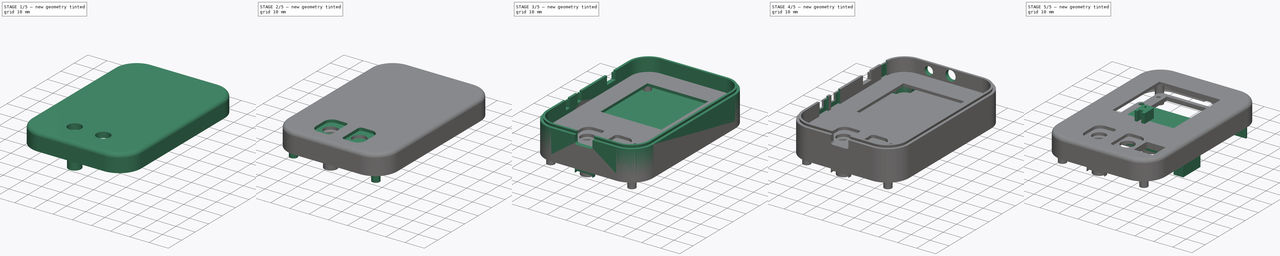
[diagram: build sequence overview — one tinted view per stage of 5, left to right]
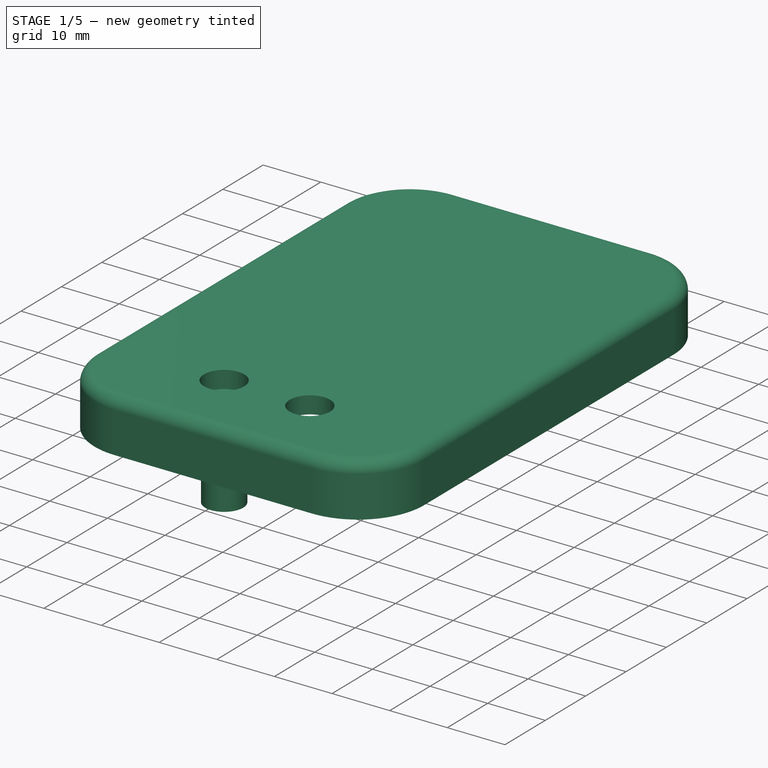
[diagram: stage 1 of 5 — iso view after this stage's code; geometry added in this stage tinted green]
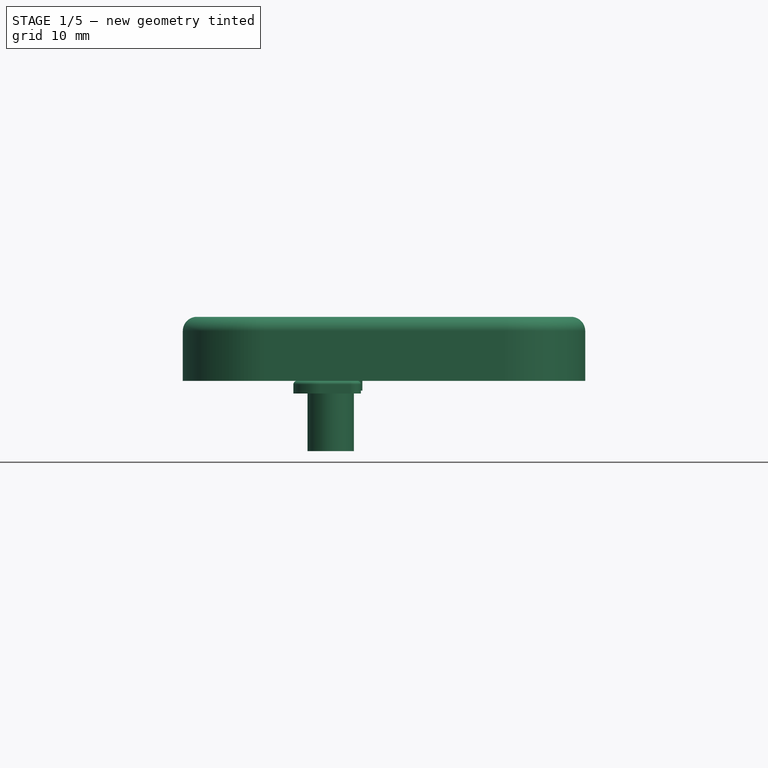
[diagram: stage 1 of 5 — front view after this stage's code; geometry added in this stage tinted green]
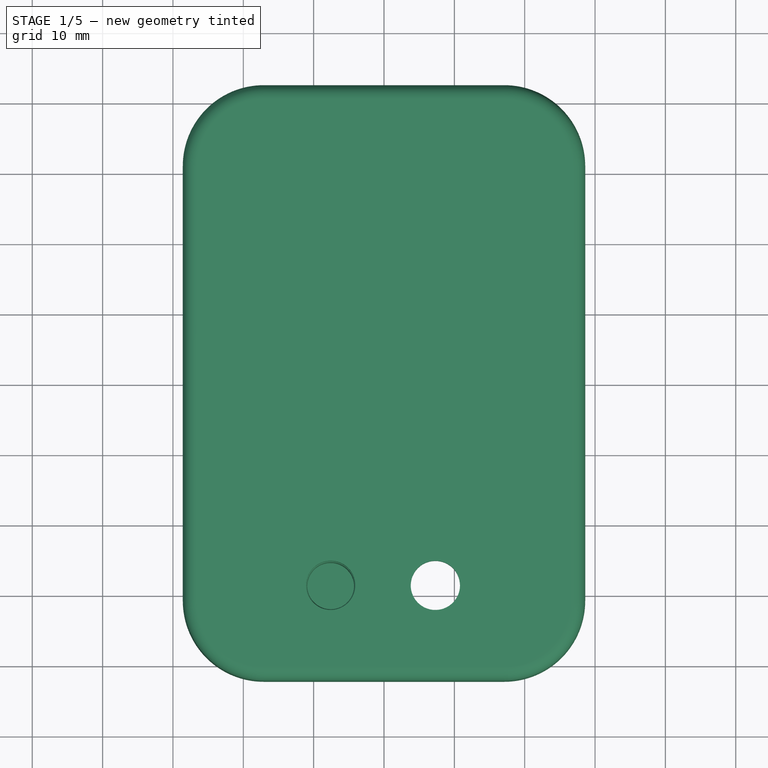
[diagram: stage 1 of 5 — top view after this stage's code; geometry added in this stage tinted green]
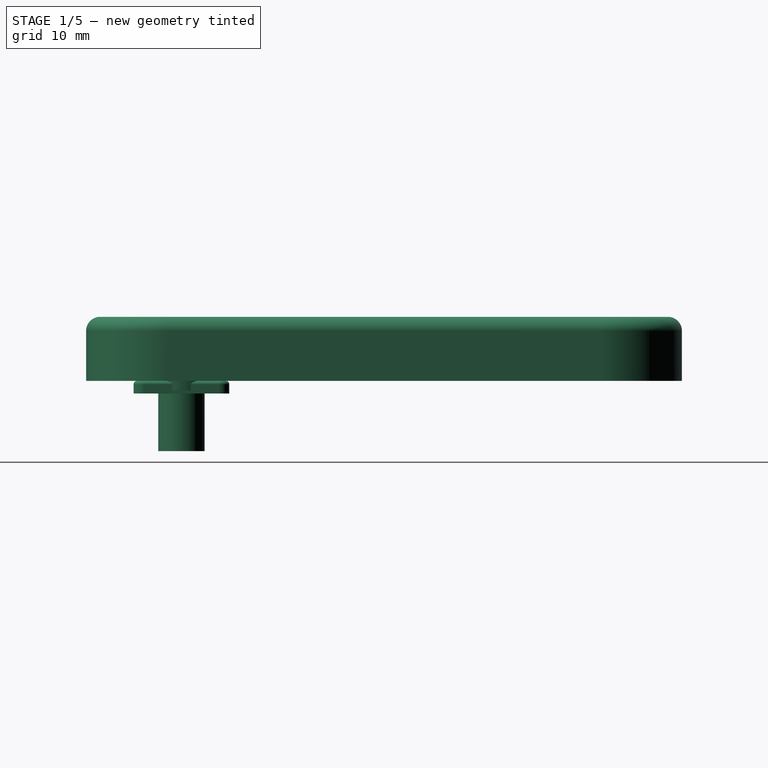
[diagram: stage 1 of 5 — right view after this stage's code; geometry added in this stage tinted green]
FCSTD DOCUMENT  (FreeCAD 1.0R39285 (Git))
Label: ev15-case
License: All rights reserved
LicenseURL: https://en.wikipedia.org/wiki/All_rights_reserved
objects: Sketcher::SketchObject×57, PartDesign::Pad×30, Part::Feature×26, PartDesign::Pocket×24, PartDesign::SubShapeBinder×10, PartDesign::Body×9, App::DocumentObjectGroupPython×8, PartDesign::Fillet×6, App::Part×2, PartDesign::Hole×2, App::VarSet×1
note: 345 computed .brp shape members not serialized (recipe doc carries the construction recipe); baked Part::Feature solids carry a one-line shape summary decoded from their .brp

FEATURE [Sketcher::SketchObject] Sketch045
  ArcFitTolerance = 1e-06
  AttachmentOffset = pos=(0,0,14.6) rot=(0,0,1;0rad)
  AttachmentSupport = -> [XY_Plane009]
  FullyConstrained = true
  MakeInternals = false
  MapMode = 5
  Placement = pos=(0,0,14.6) rot=(0,0,1;0rad)
  expr: .AttachmentOffset.Base.z = <<vars>>.bottom_height
  expr: Constraints[29] = <<vars>>.width
  expr: Constraints[30] = <<vars>>.length
  expr: Constraints[4] = <<vars>>.wall_width
  expr: Constraints[53] = <<vars>>.corner_rad
  expr: Constraints[5] = <<vars>>.wall_length
  sketch-geometry (24):
    g0: LineSegment StartX=-26.4 StartY=30.85 StartZ=0 EndX=-26.4 EndY=-30.85 EndZ=0
    g1: LineSegment StartX=-17.1 StartY=-40.15 StartZ=0 EndX=17.1 EndY=-40.15 EndZ=0
    g2: LineSegment StartX=26.4 StartY=-30.85 StartZ=0 EndX=26.4 EndY=30.85 EndZ=0
    g3: LineSegment StartX=17.1 StartY=40.15 StartZ=0 EndX=-17.1 EndY=40.15 EndZ=0
    g4: ArcOfCircle CenterX=17.1 CenterY=30.85 CenterZ=0 NormalX=0 NormalY=0 NormalZ=1 AngleXU=0 Radius=9.3 StartAngle=1e-16 EndAngle=1.5708
    g5: GeomPoint [constr] X=26.4 Y=40.15 Z=0
    g6: ArcOfCircle CenterX=-17.1 CenterY=30.85 CenterZ=0 NormalX=0 NormalY=0 NormalZ=1 AngleXU=0 Radius=9.3 StartAngle=1.5708 EndAngle=3.14159
    g7: GeomPoint [constr] X=-26.4 Y=40.15 Z=0
    g8: ArcOfCircle CenterX=-17.1 CenterY=-30.85 CenterZ=0 NormalX=0 NormalY=0 NormalZ=1 AngleXU=0 Radius=9.3 StartAngle=3.14159 EndAngle=4.71239
    g9: GeomPoint [constr] X=-26.4 Y=-40.15 Z=0
    g10: ArcOfCircle CenterX=17.1 CenterY=-30.85 CenterZ=0 NormalX=0 NormalY=0 NormalZ=1 AngleXU=0 Radius=9.3 StartAngle=4.71239 EndAngle=6.28319
    g11: GeomPoint [constr] X=26.4 Y=-40.15 Z=0
    g12: LineSegment [constr] StartX=-28.6 StartY=30.85 StartZ=0 EndX=-28.6 EndY=-30.85 EndZ=0
    g13: LineSegment [constr] StartX=-17.1 StartY=-42.35 StartZ=0 EndX=17.1 EndY=-42.35 EndZ=0
    g14: LineSegment [constr] StartX=28.6 StartY=-30.85 StartZ=0 EndX=28.6 EndY=30.85 EndZ=0
    g15: LineSegment [constr] StartX=17.1 StartY=42.35 StartZ=0 EndX=-17.1 EndY=42.35 EndZ=0
    g16: ArcOfCircle [constr] CenterX=17.1 CenterY=30.85 CenterZ=0 NormalX=0 NormalY=0 NormalZ=1 AngleXU=0 Radius=11.5 StartAngle=0 EndAngle=1.5708
    g17: GeomPoint [constr] X=28.6 Y=42.35 Z=0
    g18: ArcOfCircle [constr] CenterX=17.1 CenterY=-30.85 CenterZ=0 NormalX=0 NormalY=0 NormalZ=1 AngleXU=0 Radius=11.5 StartAngle=4.71239 EndAngle=6.28319
    g19: GeomPoint [constr] X=28.6 Y=-42.35 Z=0
    g20: ArcOfCircle [constr] CenterX=-17.1 CenterY=-30.85 CenterZ=0 NormalX=0 NormalY=0 NormalZ=1 AngleXU=0 Radius=11.5 StartAngle=3.14159 EndAngle=4.71239
    g21: GeomPoint [constr] X=-28.6 Y=-42.35 Z=0
    g22: ArcOfCircle [constr] CenterX=-17.1 CenterY=30.85 CenterZ=0 NormalX=0 NormalY=0 NormalZ=1 AngleXU=0 Radius=11.5 StartAngle=1.5708 EndAngle=3.14159
    g23: GeomPoint [constr] X=-28.6 Y=42.35 Z=0
  constraints (55):
    c: Vertical(g0)
    c: Vertical(g2)
    c: Horizontal(g1)
    c: Horizontal(g3)
    c: DistanceX(g7,g5) = 52.8
    c: DistanceY(g11,g5) = 80.3
    c: PointOnObject(g5,g2)
    c: PointOnObject(g5,g3)
    c: Tangent(g2,g4) = -1.5708
    c: Tangent(g3,g4) = -1.5708
    c: PointOnObject(g7,g0)
    c: PointOnObject(g7,g3)
    c: Tangent(g0,g6) = -1.5708
    c: Tangent(g3,g6) = -1.5708
    c: PointOnObject(g9,g0)
    c: PointOnObject(g9,g1)
    c: Tangent(g0,g8) = -1.5708
    c: Tangent(g1,g8) = -1.5708
    c: PointOnObject(g11,g1)
    c: PointOnObject(g11,g2)
    c: Tangent(g1,g10) = -1.5708
    c: Tangent(g2,g10) = -1.5708
    c: Equal(g6,g4)
    c: Equal(g4,g10)
    c: Equal(g10,g8)
    c: Vertical(g12)
    c: Vertical(g14)
    c: Horizontal(g13)
    c: Horizontal(g15)
    c: DistanceX(g23,g17) = 57.2
    c: DistanceY(g19,g17) = 84.7
    c: Symmetric(g17,g21,g-1)
    c: PointOnObject(g17,g14)
    c: PointOnObject(g17,g15)
    c: Tangent(g14,g16) = -1.5708
    c: Tangent(g15,g16) = -1.5708
    c: PointOnObject(g19,g13)
    c: PointOnObject(g19,g14)
    c: Tangent(g13,g18) = -1.5708
    c: Tangent(g14,g18) = -1.5708
    c: PointOnObject(g21,g12)
    c: PointOnObject(g21,g13)
    c: Tangent(g12,g20) = -1.5708
    c: Tangent(g13,g20) = -1.5708
    c: PointOnObject(g23,g12)
    c: PointOnObject(g23,g15)
    c: Tangent(g12,g22) = -1.5708
    c: Tangent(g15,g22) = -1.5708
    c: Vertical(g3,g15)
    c: Horizontal(g0,g12)
    c: Equal(g22,g16)
    c: Equal(g16,g18)
    c: Equal(g18,g20)
    c: Radius(g22) = 11.5
    c: Vertical(g1,g13)
FEATURE [App::VarSet] VarSet001  label="vars"
  bottom_depth = 12.95
  bottom_height = 14.6
  cap_base = 1.4
  cap_height = 5.7
  cap_inner_rad = 6.65
  cap_outer_rad = 9
  cap_stem_cir = 4.35
  corner_rad = 11.5
  digikey_backlight_height = 2.5
  digikey_backlight_length = 25.2
  digikey_carrier_height = 1.6
  digikey_carrier_length = 44
  digikey_carrier_screw_pad_len = 5.15
  digikey_carrier_screw_pad_width = 5.05
  digikey_carrier_width = 32
  digikey_lcd_height = 1.9
  digikey_lcd_length = 35.2
  digikey_total_height = 6
  front_button_depth = 1.5
  front_button_height = 1.8
  front_button_hole_rad = 7
  front_button_inner_rad = 1.5
  front_button_length = 10
  front_button_length_offset = 4.5
  front_button_outer_rad = 3.85
  front_button_pocket_depth = 5.7
  front_button_pocket_rad = 4.4
  front_button_pos_h_offset = 26.4
  front_button_rad = 7
  front_button_stem_height = 8.2
  front_button_stem_rad = 6.6
  front_button_travel = 1
  front_button_width = 14
  front_button_width_offset = 7
  length = 84.7
  lip_angle = 14.85
  lip_height = 1.4
  lip_thickness = 0.8
  peg_height = 6.95
  peg_length = 4
  peg_pocket_rad = 1.8
  platform_base = 2
  platform_height_offset = 16.9
  platform_length = 50
  side_button_paddle_length = 5.01
  side_button_paddle_width = 6.9
  side_button_slack = 1.18
  thickness = 2.2
  top_bottom_thickness = 1.65
  top_depth = 6.1
  top_height = 9.1
  top_thickness = 3
  total_height = 25.1
  version_demo = false
  version_screenless = false
  wall_length = 80.3
  wall_width = 52.8
  width = 57.2
  expr: bottom_depth = bottom_height - top_bottom_thickness
  expr: bottom_height = 16 mm - lip_height
  expr: cap_height = front_button_pocket_depth
  expr: cap_inner_rad = front_button_stem_rad + 0.05 mm
  expr: cap_outer_rad = front_button_rad + 2 mm
  expr: cap_stem_cir = front_button_pocket_rad - 0.05 mm
  expr: digikey_backlight_length = digikey_lcd_length - 10 mm
  expr: digikey_total_height = digikey_carrier_height + digikey_lcd_height + digikey_backlight_height
  expr: front_button_depth = 0.5 mm + front_button_travel
  expr: front_button_length = 10 mm
  expr: front_button_pocket_depth = front_button_stem_height - top_thickness + front_button_depth - front_button_travel
  expr: front_button_pocket_rad = front_button_rad - 2.6 mm
  expr: front_button_pos_h_offset = total_height + front_button_height - front_button_depth + front_button_travel
  expr: front_button_stem_height = front_button_depth - (front_button_height - front_button_travel) + cap_base + top_depth
  expr: front_button_stem_rad = front_button_rad - 0.4 mm
  expr: front_button_travel = 1 mm
  expr: length = wall_length + thickness * 2
  expr: lip_thickness = thickness / 2 - 0.3 mm
  expr: platform_height_offset = total_height - thickness - digikey_total_height
  expr: top_depth = top_height - top_thickness
  expr: top_height = 10.5 mm - lip_height
  expr: top_thickness = 3 mm
  expr: total_height = bottom_height + top_height + lip_height
  expr: wall_width = 52.8
  expr: width = wall_width + thickness * 2
FEATURE [Sketcher::SketchObject] Sketch046
  ArcFitTolerance = 1e-06
  AttachmentOffset = pos=(0,0,14.6) rot=(0,0,1;0rad)
  AttachmentSupport = -> [XY_Plane009]
  FullyConstrained = true
  MakeInternals = false
  MapMode = 5
  Placement = pos=(0,0,14.6) rot=(0,0,1;0rad)
  expr: .AttachmentOffset.Base.z = <<vars>>.bottom_height
  expr: Constraints[21] = <<vars>>.wall_width
  expr: Constraints[4] = <<vars>>.wall_length
  expr: Constraints[52] = <<vars>>.lip_thickness
  expr: Constraints[57] = <<vars>>.width
  expr: Constraints[58] = <<vars>>.length
  expr: Constraints[64] = <<vars>>.corner_rad
  sketch-geometry (36):
    g0: LineSegment StartX=-26.4 StartY=30.85 StartZ=0 EndX=-26.4 EndY=-30.85 EndZ=0
    g1: LineSegment StartX=-17.1 StartY=-40.15 StartZ=0 EndX=17.1 EndY=-40.15 EndZ=0
    g2: LineSegment StartX=26.4 StartY=-30.85 StartZ=0 EndX=26.4 EndY=30.85 EndZ=0
    g3: LineSegment StartX=17.1 StartY=40.15 StartZ=0 EndX=-17.1 EndY=40.15 EndZ=0
    g4: ArcOfCircle CenterX=17.1 CenterY=30.85 CenterZ=0 NormalX=0 NormalY=0 NormalZ=1 AngleXU=0 Radius=9.3 StartAngle=0 EndAngle=1.5708
    g5: GeomPoint [constr] X=26.4 Y=40.15 Z=0
    g6: ArcOfCircle CenterX=17.1 CenterY=-30.85 CenterZ=0 NormalX=0 NormalY=0 NormalZ=1 AngleXU=0 Radius=9.3 StartAngle=4.71239 EndAngle=6.28319
    g7: GeomPoint [constr] X=26.4 Y=-40.15 Z=0
    g8: ArcOfCircle CenterX=-17.1 CenterY=-30.85 CenterZ=0 NormalX=0 NormalY=0 NormalZ=1 AngleXU=0 Radius=9.3 StartAngle=3.14159 EndAngle=4.71239
    g9: GeomPoint [constr] X=-26.4 Y=-40.15 Z=0
    g10: ArcOfCircle CenterX=-17.1 CenterY=30.85 CenterZ=0 NormalX=0 NormalY=0 NormalZ=1 AngleXU=0 Radius=9.3 StartAngle=1.5708 EndAngle=3.14159
    g11: GeomPoint [constr] X=-26.4 Y=40.15 Z=0
    g12: LineSegment StartX=-27.2 StartY=30.85 StartZ=0 EndX=-27.2 EndY=-30.85 EndZ=0
    g13: LineSegment StartX=-17.1 StartY=-40.95 StartZ=0 EndX=17.1 EndY=-40.95 EndZ=0
    g14: LineSegment StartX=27.2 StartY=-30.85 StartZ=0 EndX=27.2 EndY=30.85 EndZ=0
    g15: LineSegment StartX=17.1 StartY=40.95 StartZ=0 EndX=-17.1 EndY=40.95 EndZ=0
    g16: ArcOfCircle CenterX=17.1 CenterY=30.85 CenterZ=0 NormalX=0 NormalY=0 NormalZ=1 AngleXU=0 Radius=10.1 StartAngle=0 EndAngle=1.5708
    g17: GeomPoint [constr] X=27.2 Y=40.95 Z=0
    g18: ArcOfCircle CenterX=-17.1 CenterY=30.85 CenterZ=0 NormalX=0 NormalY=0 NormalZ=1 AngleXU=0 Radius=10.1 StartAngle=1.5708 EndAngle=3.14159
    g19: GeomPoint [constr] X=-27.2 Y=40.95 Z=0
    g20: ArcOfCircle CenterX=-17.1 CenterY=-30.85 CenterZ=0 NormalX=0 NormalY=0 NormalZ=1 AngleXU=0 Radius=10.1 StartAngle=3.14159 EndAngle=4.71239
    g21: GeomPoint [constr] X=-27.2 Y=-40.95 Z=0
    g22: ArcOfCircle CenterX=17.1 CenterY=-30.85 CenterZ=0 NormalX=0 NormalY=0 NormalZ=1 AngleXU=0 Radius=10.1 StartAngle=4.71239 EndAngle=6.28319
    g23: GeomPoint [constr] X=27.2 Y=-40.95 Z=0
    g24: LineSegment [constr] StartX=-28.6 StartY=30.85 StartZ=0 EndX=-28.6 EndY=-30.85 EndZ=0
    g25: LineSegment [constr] StartX=-17.1 StartY=-42.35 StartZ=0 EndX=17.1 EndY=-42.35 EndZ=0
    g26: LineSegment [constr] StartX=28.6 StartY=-30.85 StartZ=0 EndX=28.6 EndY=30.85 EndZ=0
    g27: LineSegment [constr] StartX=17.1 StartY=42.35 StartZ=0 EndX=-17.1 EndY=42.35 EndZ=0
    g28: ArcOfCircle [constr] CenterX=-17.1 CenterY=30.85 CenterZ=0 NormalX=0 NormalY=0 NormalZ=1 AngleXU=0 Radius=11.5 StartAngle=1.5708 EndAngle=3.14159
    g29: GeomPoint [constr] X=-28.6 Y=42.35 Z=0
    g30: ArcOfCircle [constr] CenterX=17.1 CenterY=30.85 CenterZ=0 NormalX=0 NormalY=0 NormalZ=1 AngleXU=0 Radius=11.5 StartAngle=1e-16 EndAngle=1.5708
    g31: GeomPoint [constr] X=28.6 Y=42.35 Z=0
    g32: ArcOfCircle [constr] CenterX=17.1 CenterY=-30.85 CenterZ=0 NormalX=0 NormalY=0 NormalZ=1 AngleXU=0 Radius=11.5 StartAngle=4.71239 EndAngle=6.28319
    g33: GeomPoint [constr] X=28.6 Y=-42.35 Z=0
    g34: ArcOfCircle [constr] CenterX=-17.1 CenterY=-30.85 CenterZ=0 NormalX=0 NormalY=0 NormalZ=1 AngleXU=0 Radius=11.5 StartAngle=3.14159 EndAngle=4.71239
    g35: GeomPoint [constr] X=-28.6 Y=-42.35 Z=0
  constraints (83):
    c: Vertical(g0)
    c: Vertical(g2)
    c: Horizontal(g1)
    c: Horizontal(g3)
    c: DistanceY(g7,g5) = 80.3
    c: PointOnObject(g5,g2)
    c: PointOnObject(g5,g3)
    c: Tangent(g2,g4) = -1.5708
    c: Tangent(g3,g4) = -1.5708
    c: PointOnObject(g7,g1)
    c: PointOnObject(g7,g2)
    c: Tangent(g1,g6) = -1.5708
    c: Tangent(g2,g6) = -1.5708
    c: PointOnObject(g9,g0)
    c: PointOnObject(g9,g1)
    c: Tangent(g0,g8) = -1.5708
    c: Tangent(g1,g8) = -1.5708
    c: PointOnObject(g11,g0)
    c: PointOnObject(g11,g3)
    c: Tangent(g0,g10) = -1.5708
    c: Tangent(g3,g10) = -1.5708
    c: DistanceX(g11,g5) = 52.8
    c: Equal(g4,g10)
    c: Equal(g8,g10)
    c: Equal(g6,g8)
    c: Vertical(g12)
    c: Vertical(g14)
    c: Horizontal(g13)
    c: Horizontal(g15)
    c: PointOnObject(g17,g15)
    c: PointOnObject(g17,g14)
    c: Tangent(g15,g16) = -1.5708
    c: Tangent(g14,g16) = -1.5708
    c: PointOnObject(g19,g12)
    c: PointOnObject(g19,g15)
    c: Tangent(g12,g18) = -1.5708
    c: Tangent(g15,g18) = -1.5708
    c: PointOnObject(g21,g12)
    c: PointOnObject(g21,g13)
    c: Tangent(g12,g20) = -1.5708
    c: Tangent(g13,g20) = -1.5708
    c: PointOnObject(g23,g13)
    c: PointOnObject(g23,g14)
    c: Tangent(g13,g22) = -1.5708
    c: Tangent(g14,g22) = -1.5708
    c: Vertical(g15,g3)
    c: Horizontal(g14,g2)
    c: Vertical(g13,g1)
    c: Horizontal(g14,g2)
    c: Vertical(g13,g1)
    c: Vertical(g15,g3)
    c: Horizontal(g0,g12)
    c: Distance(g2,g14) = 0.8
    c: Vertical(g24)
    c: Vertical(g26)
    c: Horizontal(g25)
    c: Horizontal(g27)
    c: DistanceX(g29,g31) = 57.2
    c: DistanceY(g33,g31) = 84.7
    c: Symmetric(g31,g35,g-1)
    c: PointOnObject(g29,g24)
    c: PointOnObject(g29,g27)
    c: Tangent(g24,g28) = -1.5708
    c: Tangent(g27,g28) = -1.5708
    c: Radius(g28) = 11.5
    c: PointOnObject(g31,g26)
    c: PointOnObject(g31,g27)
    c: Tangent(g26,g30) = -1.5708
    c: Tangent(g27,g30) = -1.5708
    c: PointOnObject(g33,g25)
    c: PointOnObject(g33,g26)
    c: Tangent(g25,g32) = -1.5708
    c: Tangent(g26,g32) = -1.5708
    c: PointOnObject(g35,g24)
    c: PointOnObject(g35,g25)
    c: Tangent(g24,g34) = -1.5708
    c: Tangent(g25,g34) = -1.5708
    c: Equal(g28,g30)
    c: Equal(g30,g32)
    c: Equal(g32,g34)
    c: Vertical(g15,g27)
    c: Horizontal(g12,g24)
    c: Vertical(g13,g25)
FEATURE [Part::Feature] Part__Feature  label="ESP32-S3-WROOM-1"
  Placement = pos=(212.82,-77.39,1.595) rot=(0,0,-1;1.5708rad)
  shape: bbox 25.5 x 18 x 3.1 mm, 1275 faces, 52 solids (baked)
FEATURE [Part::Feature] Part__Feature001  label="SOLID"
  shape: bbox 13 x 16.45 x 9.8 mm, 96 faces (baked)
FEATURE [Part::Feature] Part__Feature002  label="SOLID001"
  shape: bbox 13.5 x 5.3 x 9.4 mm, 162 faces (baked)
FEATURE [App::Part] SW_TH_SS_12D11G5R  label="SW-TH_SS-12D11G5R"
  Group = -> [Part__Feature001,Part__Feature002]
  Origin = -> Origin
  Placement = pos=(177.71,-76.9,4.895) rot=(0,0,1;1.5708rad)
FEATURE [Part::Feature] Part__Feature003  label="USB-C_SMD-TYPE-C-31-M-12"
  Placement = pos=(199.26,-131.44,1.595) rot=(0,0,1;3.14159rad)
  shape: bbox 10.31 x 9.101 x 5.417 mm, 819 faces, 14 solids (baked)
FEATURE [Part::Feature] Part__Feature004  label="HDR-SMD_8P-P2.54-V-M-R2-C4-LS7.4"
  Placement = pos=(233.26,-126.85,1.595) rot=(0,0,1;1.5708rad)
  shape: bbox 7.4 x 10.17 x 9.14 mm, 464 faces (baked)
FEATURE [Part::Feature] Part__Feature005  label="SW-SMD_SHOU_TS36CA-0.6"
  Placement = pos=(175.498,-100.77,3.395) rot=(0,0,-1;1.5708rad)
  shape: bbox 3.7 x 7.7 x 4.3 mm, 437 faces, 17 solids (baked)
FEATURE [Part::Feature] Part__Feature006  label="SW-SMD_L6.0-W6.0-LS6.6"
  Placement = pos=(206.7,-121.79,1.595) rot=(0,0,1;0rad)
  shape: bbox 6.5 x 6.001 x 5.4 mm, 509 faces, 16 solids (baked)
FEATURE [Part::Feature] Part__Feature007  label="AUDIO-SMD_L12.1-W6.1-H5.0-4P"
  Placement = pos=(200.06,-56.475,1.595) rot=(0,0,1;0rad)
  shape: bbox 8 x 14.1 x 5.906 mm, 381 faces (baked)
FEATURE [Part::Feature] Part__Feature008  label="SW-SMD_SHOU_TS36CA-0.007"
  Placement = pos=(175.498,-109.63,3.395) rot=(0,0,-1;1.5708rad)
  shape: bbox 3.7 x 7.7 x 4.3 mm, 437 faces, 17 solids (baked)
FEATURE [Part::Feature] Part__Feature009  label="IDC-SMD_10P-P1.27_X1270WVS-2X05B-6TV01"
  Placement = pos=(213.06,-91.92,1.595) rot=(0,0,1;0rad)
  shape: bbox 12.65 x 5.5 x 5.6 mm, 547 faces (baked)
FEATURE [Part::Feature] Part__Feature010  label="CONN-SMD_P2.00_S2B-PH-SM4-TB-LF-SN"
  Placement = pos=(177.04,-64.9,1.595) rot=(0,0,-1;1.5708rad)
  shape: bbox 8.606 x 7.901 x 5.564 mm, 468 faces, 3 solids (baked)
FEATURE [Part::Feature] Part__Feature011  label="SW-SMD_L6.0-W6.0-LS6.007"
  Placement = pos=(191.82,-121.79,1.595) rot=(0,0,1;0rad)
  shape: bbox 6.5 x 6.001 x 5.4 mm, 509 faces, 16 solids (baked)
FEATURE [Part::Feature] Part__Feature012  label="HDR-SMD_10P-P2.54-V-F-R2-C5-LS7.1-1"
  Placement = pos=(233.2,-109.278,1.595) rot=(0,0,1;1.5708rad)
  shape: bbox 7.1 x 13.1 x 9.1 mm, 424 faces (baked)
FEATURE [Part::Feature] Part__Feature013  label="HDR-SMD_6P-P2.54-V-M-R2-C3-LS7.5-2"
  Placement = pos=(218.95,-122.58,2.095) rot=(0,0,1;1.5708rad)
  shape: bbox 7.5 x 7.63 x 9.2 mm, 383 faces, 14 solids (baked)
FEATURE [Part::Feature] Part__Feature014  label="HDR-SMD_10P-P2.54-V-F-R2-C5-LS7.1-002"
  Placement = pos=(258.91,-125.27,1.595) rot=(0,0,1;1.5708rad)
  shape: bbox 7.1 x 13.1 x 9.1 mm, 424 faces (baked)
FEATURE [Part::Feature] Part__Feature015  label="AUDIO-SMD_L10.5-W5.0-H3.2"
  Placement = pos=(188.6,-55.375,1.695) rot=(0,0,1;0rad)
  shape: bbox 7 x 12 x 4.365 mm, 369 faces, 3 solids (baked)
FEATURE [Part::Feature] Part__Feature016  label="HDR-SMD_10P-P2.54-V-F-R2-C5-LS7.1-003"
  Placement = pos=(245.735,-117.39,1.595) rot=(0,0,-1;1.5708rad)
  shape: bbox 7.1 x 13.1 x 9.1 mm, 424 faces (baked)
FEATURE [Part::Feature] Part__Feature017  label="HDR-SMD_10P-P2.54-V-F-R2-C5-LS7.1-004"
  Placement = pos=(258.94,-109.26,1.595) rot=(0,0,1;1.5708rad)
  shape: bbox 7.1 x 13.1 x 9.1 mm, 424 faces (baked)
FEATURE [Part::Feature] Part__Feature018  label="ev15_PCB"
  shape: bbox 94.45 x 80 x 1.51 mm, 98 faces (baked)
FEATURE [App::Part] ev15_1  label="ev15"
  Group = -> [Part__Feature,SW_TH_SS_12D11G5R,Part__Feature003,Part__Feature004,Part__Feature005,Part__Feature006,Part__Feature007,Part__Feature008,Part__Feature009,Part__Feature010,Part__Feature011,Part__Feature012,Part__Feature013,Part__Feature014,Part__Feature015,Part__Feature016,Part__Feature017,Part__Feature018]
  Origin = -> Origin010
  Placement = pos=(-199.4,93,8.7) rot=(0,0,1;0rad)
FEATURE [PartDesign::SubShapeBinder] Binder  label="ev15-binder"
  BindCopyOnChange = 0
  BindMode = 0
  ClaimChildren = false
  Context = -> Body007 [Binder.]
  Fuse = false
  MakeFace = true
  OffsetFill = false
  OffsetIntersection = false
  OffsetJoinType = 0
  OffsetOpenResult = false
  PartialLoad = false
  Refine = true
  Relative = true
  Support = -> [ev15_1]
  _Version = 2
FEATURE [Sketcher::SketchObject] Sketch047
  ArcFitTolerance = 1e-06
  AttachmentOffset = pos=(0,0,-28.6) rot=(0,0,1;0rad)
  AttachmentSupport = -> [YZ_Plane009]
  ExternalGeometry = -> [Binder]
  FullyConstrained = true
  MakeInternals = false
  MapMode = 5
  Placement = pos=(-28.6,0,0) rot=(0.57735,0.57735,0.57735;2.0944rad)
  expr: .AttachmentOffset.Base.z = -<<vars>>.width / 2
  sketch-geometry (12):
    g0: LineSegment StartX=12.85 StartY=16 StartZ=0 EndX=12.85 EndY=11.495 EndZ=0
    g1: LineSegment StartX=12.85 StartY=11.495 StartZ=0 EndX=19.35 EndY=11.495 EndZ=0
    g2: LineSegment StartX=19.35 StartY=11.495 StartZ=0 EndX=19.35 EndY=16 EndZ=0
    g3: LineSegment StartX=19.35 StartY=16 StartZ=0 EndX=12.85 EndY=16 EndZ=0
    g4: LineSegment StartX=-6.22 StartY=11.295 StartZ=0 EndX=-6.22 EndY=16 EndZ=0
    g5: LineSegment StartX=-6.22 StartY=16 StartZ=0 EndX=-9.32 EndY=16 EndZ=0
    g6: LineSegment StartX=-9.32 StartY=16 StartZ=0 EndX=-9.32 EndY=11.295 EndZ=0
    g7: LineSegment StartX=-9.32 StartY=11.295 StartZ=0 EndX=-6.22 EndY=11.295 EndZ=0
    g8: LineSegment StartX=-15.08 StartY=11.295 StartZ=0 EndX=-15.08 EndY=16 EndZ=0
    g9: LineSegment StartX=-15.08 StartY=16 StartZ=0 EndX=-18.18 EndY=16 EndZ=0
    g10: LineSegment StartX=-18.18 StartY=16 StartZ=0 EndX=-18.18 EndY=11.295 EndZ=0
    g11: LineSegment StartX=-18.18 StartY=11.295 StartZ=0 EndX=-15.08 EndY=11.295 EndZ=0
  constraints (31):
    c: Coincident(g0,g1)
    c: Coincident(g1,g2)
    c: Horizontal(g1)
    c: Vertical(g0)
    c: Vertical(g2)
    c: Coincident(g0,g-4)
    c: PointOnObject(g2,g-5)
    c: PointOnObject(g0,g-5)
    c: PointOnObject(g-3,g2)
    c: Coincident(g3,g2)
    c: Coincident(g3,g0)
    c: Coincident(g4,g-6)
    c: PointOnObject(g4,g-5)
    c: Vertical(g4)
    c: Coincident(g5,g4)
    c: PointOnObject(g5,g-5)
    c: Coincident(g6,g5)
    c: Coincident(g6,g-10)
    c: Vertical(g6)
    c: Coincident(g7,g6)
    c: Coincident(g7,g4)
    c: Coincident(g8,g9)
    c: Coincident(g9,g10)
    c: Coincident(g10,g11)
    c: Coincident(g11,g8)
    c: Vertical(g8)
    c: Vertical(g10)
    c: Horizontal(g9)
    c: Coincident(g8,g-9)
    c: PointOnObject(g9,g-5)
    c: Coincident(g10,g-9)
FEATURE [Sketcher::SketchObject] Sketch048
  ArcFitTolerance = 1e-06
  AttachmentOffset = pos=(0,0,42.35) rot=(0,0,1;0rad)
  AttachmentSupport = -> [XZ_Plane009]
  ExternalGeometry = -> [Binder]
  FullyConstrained = true
  MakeInternals = false
  MapMode = 5
  Placement = pos=(0,-42.35,9.4e-15) rot=(1,0,0;1.5708rad)
  expr: .AttachmentOffset.Base.z = <<vars>>.length / 2
  sketch-geometry (12):
    g0: LineSegment StartX=-4.81 StartY=12.545 StartZ=0 EndX=-4.81 EndY=11.345 EndZ=0
    g1: LineSegment StartX=-3.61 StartY=10.145 StartZ=0 EndX=3.33 EndY=10.145 EndZ=0
    g2: LineSegment StartX=4.53 StartY=11.345 StartZ=0 EndX=4.53 EndY=12.545 EndZ=0
    g3: LineSegment StartX=3.33 StartY=13.745 StartZ=0 EndX=-3.61 EndY=13.745 EndZ=0
    g4: ArcOfCircle CenterX=-3.61 CenterY=12.545 CenterZ=0 NormalX=0 NormalY=0 NormalZ=1 AngleXU=0 Radius=1.2 StartAngle=1.5708 EndAngle=3.14159
    g5: GeomPoint [constr] X=-4.81 Y=13.745 Z=0
    g6: ArcOfCircle CenterX=3.33 CenterY=12.545 CenterZ=0 NormalX=0 NormalY=0 NormalZ=1 AngleXU=0 Radius=1.2 StartAngle=0 EndAngle=1.5708
    g7: GeomPoint [constr] X=4.53 Y=13.745 Z=0
    g8: ArcOfCircle CenterX=3.33 CenterY=11.345 CenterZ=0 NormalX=0 NormalY=0 NormalZ=1 AngleXU=0 Radius=1.2 StartAngle=4.71239 EndAngle=6.28319
    g9: GeomPoint [constr] X=4.53 Y=10.145 Z=0
    g10: ArcOfCircle CenterX=-3.61 CenterY=11.345 CenterZ=0 NormalX=0 NormalY=0 NormalZ=1 AngleXU=0 Radius=1.2 StartAngle=3.14159 EndAngle=4.71239
    g11: GeomPoint [constr] X=-4.81 Y=10.145 Z=0
  constraints (25):
    c: Vertical(g0)
    c: Vertical(g2)
    c: Horizontal(g1)
    c: Horizontal(g3)
    c: PointOnObject(g5,g0)
    c: PointOnObject(g5,g3)
    c: Tangent(g0,g4) = -1.5708
    c: Tangent(g3,g4) = -1.5708
    c: PointOnObject(g7,g2)
    c: PointOnObject(g7,g3)
    c: Tangent(g2,g6) = -1.5708
    c: Tangent(g3,g6) = -1.5708
    c: PointOnObject(g9,g1)
    c: PointOnObject(g9,g2)
    c: Tangent(g1,g8) = -1.5708
    c: Tangent(g2,g8) = -1.5708
    c: PointOnObject(g11,g0)
    c: PointOnObject(g11,g1)
    c: Tangent(g0,g10) = -1.5708
    c: Tangent(g1,g10) = -1.5708
    c: Vertical(g1,g-6)
    c: Coincident(g4,g-3)
    c: Coincident(g6,g-5)
    c: Coincident(g8,g-4)
    c: Distance(g1,g-4) = 0.2
FEATURE [Sketcher::SketchObject] Sketch049
  ArcFitTolerance = 1e-06
  AttachmentOffset = pos=(0,0,-42.35) rot=(0,0,1;0rad)
  AttachmentSupport = -> [XZ_Plane009]
  ExternalGeometry = -> [Binder]
  FullyConstrained = true
  MakeInternals = false
  MapMode = 5
  Placement = pos=(0,42.35,-9.4e-15) rot=(1,0,0;1.5708rad)
  expr: .AttachmentOffset.Base.z = -<<vars>>.length / 2
  sketch-geometry (2):
    g0: Circle CenterX=0.66 CenterY=12.805 CenterZ=0 NormalX=0 NormalY=0 NormalZ=1 AngleXU=0 Radius=2.7
    g1: Circle CenterX=-10.8 CenterY=12.045 CenterZ=0 NormalX=0 NormalY=0 NormalZ=1 AngleXU=0 Radius=2.2
  constraints (4):
    c: Coincident(g0,g-3)
    c: Coincident(g1,g-4)
    c: Distance(g-4,g1) = 0.2
    c: Distance(g-3,g0) = 0.2
FEATURE [Sketcher::SketchObject] Sketch051
  ArcFitTolerance = 1e-06
  AttachmentSupport = -> [XY_Plane009]
  ExternalGeometry = -> [Binder]
  FullyConstrained = true
  MakeInternals = false
  MapMode = 5
  sketch-geometry (16):
    g0: Circle CenterX=-21.5718 CenterY=-36.4718 CenterZ=0 NormalX=0 NormalY=0 NormalZ=1 AngleXU=0 Radius=0.9
    g1: Circle CenterX=21.2918 CenterY=36.3918 CenterZ=0 NormalX=0 NormalY=0 NormalZ=1 AngleXU=0 Radius=0.9
    g2: Circle CenterX=21.2918 CenterY=-36.4718 CenterZ=0 NormalX=0 NormalY=0 NormalZ=1 AngleXU=0 Radius=0.9
    g3: Circle CenterX=-21.5718 CenterY=36.3918 CenterZ=0 NormalX=0 NormalY=0 NormalZ=1 AngleXU=0 Radius=0.9
    g4: LineSegment [constr] StartX=-23.0694 StartY=36.053 StartZ=0 EndX=-20.7106 EndY=36.053 EndZ=0
    g5: LineSegment [constr] StartX=-21.233 StartY=37.8894 StartZ=0 EndX=-21.233 EndY=35.5306 EndZ=0
    g6: LineSegment [constr] StartX=-21.89 StartY=36.71 StartZ=0 EndX=-21.233 EndY=36.053 EndZ=0
    g7: LineSegment [constr] StartX=20.953 StartY=37.8894 StartZ=0 EndX=20.953 EndY=35.5306 EndZ=0
    g8: LineSegment [constr] StartX=22.7894 StartY=36.0531 StartZ=0 EndX=20.4306 EndY=36.0531 EndZ=0
    g9: LineSegment [constr] StartX=21.61 StartY=36.71 StartZ=0 EndX=20.953 EndY=36.0531 EndZ=0
    g10: LineSegment [constr] StartX=-21.233 StartY=-37.9694 StartZ=0 EndX=-21.233 EndY=-35.6106 EndZ=0
    g11: LineSegment [constr] StartX=-23.0694 StartY=-36.133 StartZ=0 EndX=-20.7106 EndY=-36.133 EndZ=0
    g12: LineSegment [constr] StartX=-21.89 StartY=-36.79 StartZ=0 EndX=-21.233 EndY=-36.133 EndZ=0
    g13: LineSegment [constr] StartX=22.7894 StartY=-36.1331 StartZ=0 EndX=20.4306 EndY=-36.1331 EndZ=0
    g14: LineSegment [constr] StartX=20.9531 StartY=-37.9694 StartZ=0 EndX=20.9531 EndY=-35.6106 EndZ=0
    g15: LineSegment [constr] StartX=21.61 StartY=-36.79 StartZ=0 EndX=20.9531 EndY=-36.1331 EndZ=0
  constraints (48):
    c: Tangent(g-6,g1)
    c: Equal(g1,g2)
    c: Equal(g2,g0)
    c: Tangent(g2,g-4)
    c: Tangent(g0,g-3)
    c: Equal(g1,g3)
    c: Tangent(g3,g-7)
    c: Diameter(g3) = 1.8
    c: Coincident(g4,g-8)
    c: PointOnObject(g4,g-7)
    c: Coincident(g5,g-7)
    c: PointOnObject(g5,g-8)
    c: Vertical(g5)
    c: Horizontal(g4)
    c: Coincident(g6,g-8)
    c: PointOnObject(g6,g5)
    c: PointOnObject(g6,g4)
    c: PointOnObject(g3,g6)
    c: Coincident(g7,g-6)
    c: PointOnObject(g7,g-6)
    c: Coincident(g8,g-5)
    c: PointOnObject(g8,g-6)
    c: Horizontal(g8)
    c: Vertical(g7)
    c: Coincident(g9,g-6)
    c: PointOnObject(g9,g7)
    c: PointOnObject(g9,g8)
    c: PointOnObject(g1,g9)
    c: Coincident(g10,g-3)
    c: PointOnObject(g10,g-3)
    c: Coincident(g11,g-3)
    c: PointOnObject(g11,g-3)
    c: Coincident(g12,g-3)
    c: PointOnObject(g12,g11)
    c: Vertical(g10)
    c: Horizontal(g11)
    c: PointOnObject(g12,g10)
    c: PointOnObject(g0,g12)
    c: Coincident(g13,g-4)
    c: PointOnObject(g13,g-4)
    c: Coincident(g14,g-4)
    c: PointOnObject(g14,g-4)
    c: PointOnObject(g15,g13)
    c: PointOnObject(g15,g14)
    c: Horizontal(g13)
    c: Vertical(g14)
    c: PointOnObject(g2,g15)
    c: Coincident(g15,g-4)
FEATURE [Sketcher::SketchObject] Sketch052
  ArcFitTolerance = 1e-06
  AttachmentOffset = pos=(0,0,28.6) rot=(0,0,1;0rad)
  AttachmentSupport = -> [YZ_Plane009]
  ExternalGeometry = -> [Binder]
  FullyConstrained = true
  MakeInternals = false
  MapMode = 5
  Placement = pos=(28.6,0,0) rot=(0.57735,0.57735,0.57735;2.0944rad)
  expr: .AttachmentOffset.Base.z = <<vars>>.width / 2 + 100 mm * <<vars>>.version_demo
  sketch-geometry (4):
    g0: LineSegment StartX=-41.04 StartY=18.795 StartZ=0 EndX=-41.04 EndY=8.7 EndZ=0
    g1: LineSegment StartX=-41.04 StartY=8.7 StartZ=0 EndX=-6.49 EndY=8.7 EndZ=0
    g2: LineSegment StartX=-6.49 StartY=8.7 StartZ=0 EndX=-6.49 EndY=18.795 EndZ=0
    g3: LineSegment StartX=-6.49 StartY=18.795 StartZ=0 EndX=-41.04 EndY=18.795 EndZ=0
  constraints (12):
    c: Coincident(g0,g1)
    c: Coincident(g1,g2)
    c: Coincident(g2,g3)
    c: Coincident(g3,g0)
    c: Vertical(g0)
    c: Vertical(g2)
    c: Horizontal(g1)
    c: Horizontal(g3)
    c: Distance(g-4,g0) = 1
    c: Distance(g-3,g2) = 1
    c: PointOnObject(g-4,g1)
    c: PointOnObject(g-5,g3)
FEATURE [Sketcher::SketchObject] Sketch053
  ArcFitTolerance = 1e-06
  AttachmentSupport = -> [XY_Plane011]
  FullyConstrained = true
  MakeInternals = false
  MapMode = 5
  expr: Constraints[23] = <<vars>>.corner_rad
  expr: Constraints[5] = <<vars>>.length
  expr: Constraints[6] = <<vars>>.width
  sketch-geometry (12):
    g0: LineSegment StartX=-28.6 StartY=30.85 StartZ=0 EndX=-28.6 EndY=-30.85 EndZ=0
    g1: LineSegment StartX=-17.1 StartY=-42.35 StartZ=0 EndX=17.1 EndY=-42.35 EndZ=0
    g2: LineSegment StartX=28.6 StartY=-30.85 StartZ=0 EndX=28.6 EndY=30.85 EndZ=0
    g3: LineSegment StartX=17.1 StartY=42.35 StartZ=0 EndX=-17.1 EndY=42.35 EndZ=0
    g4: ArcOfCircle CenterX=17.1 CenterY=30.85 CenterZ=0 NormalX=0 NormalY=0 NormalZ=1 AngleXU=0 Radius=11.5 StartAngle=1e-16 EndAngle=1.5708
    g5: GeomPoint [constr] X=28.6 Y=42.35 Z=0
    g6: ArcOfCircle CenterX=-17.1 CenterY=30.85 CenterZ=0 NormalX=0 NormalY=0 NormalZ=1 AngleXU=0 Radius=11.5 StartAngle=1.5708 EndAngle=3.14159
    g7: GeomPoint [constr] X=-28.6 Y=42.35 Z=0
    g8: ArcOfCircle CenterX=-17.1 CenterY=-30.85 CenterZ=0 NormalX=0 NormalY=0 NormalZ=1 AngleXU=0 Radius=11.5 StartAngle=3.14159 EndAngle=4.71239
    g9: GeomPoint [constr] X=-28.6 Y=-42.35 Z=0
    g10: ArcOfCircle CenterX=17.1 CenterY=-30.85 CenterZ=0 NormalX=0 NormalY=0 NormalZ=1 AngleXU=0 Radius=11.5 StartAngle=4.71239 EndAngle=6.28319
    g11: GeomPoint [constr] X=28.6 Y=-42.35 Z=0
  constraints (27):
    c: Vertical(g0)
    c: Vertical(g2)
    c: Horizontal(g1)
    c: Horizontal(g3)
    c: Symmetric(g5,g9,g-1)
    c: DistanceY(g9,g7) = 84.7
    c: DistanceX(g7,g5) = 57.2
    c: PointOnObject(g5,g2)
    c: PointOnObject(g5,g3)
    c: Tangent(g2,g4) = -1.5708
    c: Tangent(g3,g4) = -1.5708
    c: PointOnObject(g7,g0)
    c: PointOnObject(g7,g3)
    c: Tangent(g0,g6) = -1.5708
    c: Tangent(g3,g6) = -1.5708
    c: PointOnObject(g9,g0)
    c: PointOnObject(g9,g1)
    c: Tangent(g0,g8) = -1.5708
    c: Tangent(g1,g8) = -1.5708
    c: PointOnObject(g11,g1)
    c: PointOnObject(g11,g2)
    c: Tangent(g1,g10) = -1.5708
    c: Tangent(g2,g10) = -1.5708
    c: Radius(g6) = 11.5
    c: Equal(g6,g4)
    c: Equal(g4,g10)
    c: Equal(g10,g8)
FEATURE [PartDesign::Pad] Pad024  label="base-pad001"
  Direction = (0,0,1)
  Length = 9.1
  Length2 = 10
  Profile = -> Sketch053
  ReferenceAxis = -> Sketch053 [N_Axis]
  Refine = true
  Suppressed = false
  Type = 0
  expr: Length = <<vars>>.top_height
FEATURE [PartDesign::Fillet] Fillet001
  Base = -> Pad024 [Edge4]
  BaseFeature = -> Pad024
  Radius = 2
  Refine = true
  SupportTransform = false
  Suppressed = false
  UseAllEdges = false
FEATURE [Sketcher::SketchObject] Sketch054
  ArcFitTolerance = 1e-06
  AttachmentSupport = -> [XY_Plane011]
  FullyConstrained = true
  MakeInternals = false
  MapMode = 5
  expr: Constraints[30] = <<vars>>.width
  expr: Constraints[31] = <<vars>>.length
  expr: Constraints[49] = <<vars>>.corner_rad
  expr: Constraints[5] = <<vars>>.wall_width
  expr: Constraints[6] = <<vars>>.wall_length
  sketch-geometry (25):
    g0: LineSegment StartX=26.4 StartY=-30.85 StartZ=0 EndX=26.4 EndY=30.85 EndZ=0
    g1: LineSegment StartX=17.1 StartY=40.15 StartZ=0 EndX=-17.1 EndY=40.15 EndZ=0
    g2: LineSegment StartX=-26.4 StartY=30.85 StartZ=0 EndX=-26.4 EndY=-30.85 EndZ=0
    g3: LineSegment StartX=-17.1 StartY=-40.15 StartZ=0 EndX=17.1 EndY=-40.15 EndZ=0
    g4: GeomPoint [constr] X=0 Y=0 Z=0
    g5: ArcOfCircle CenterX=17.1 CenterY=30.85 CenterZ=0 NormalX=0 NormalY=0 NormalZ=1 AngleXU=0 Radius=9.3 StartAngle=1e-16 EndAngle=1.5708
    g6: GeomPoint [constr] X=26.4 Y=40.15 Z=0
    g7: ArcOfCircle CenterX=-17.1 CenterY=30.85 CenterZ=0 NormalX=0 NormalY=0 NormalZ=1 AngleXU=0 Radius=9.3 StartAngle=1.5708 EndAngle=3.14159
    g8: GeomPoint [constr] X=-26.4 Y=40.15 Z=0
    g9: ArcOfCircle CenterX=-17.1 CenterY=-30.85 CenterZ=0 NormalX=0 NormalY=0 NormalZ=1 AngleXU=0 Radius=9.3 StartAngle=3.14159 EndAngle=4.71239
    g10: GeomPoint [constr] X=-26.4 Y=-40.15 Z=0
    g11: ArcOfCircle CenterX=17.1 CenterY=-30.85 CenterZ=0 NormalX=0 NormalY=0 NormalZ=1 AngleXU=0 Radius=9.3 StartAngle=4.71239 EndAngle=6.28319
    g12: GeomPoint [constr] X=26.4 Y=-40.15 Z=0
    g13: LineSegment [constr] StartX=-28.6 StartY=30.85 StartZ=0 EndX=-28.6 EndY=-30.85 EndZ=0
    g14: LineSegment [constr] StartX=-17.1 StartY=-42.35 StartZ=0 EndX=17.1 EndY=-42.35 EndZ=0
    g15: LineSegment [constr] StartX=28.6 StartY=-30.85 StartZ=0 EndX=28.6 EndY=30.85 EndZ=0
    g16: LineSegment [constr] StartX=17.1 StartY=42.35 StartZ=0 EndX=-17.1 EndY=42.35 EndZ=0
    g17: ArcOfCircle [constr] CenterX=-17.1 CenterY=30.85 CenterZ=0 NormalX=0 NormalY=0 NormalZ=1 AngleXU=0 Radius=11.5 StartAngle=1.5708 EndAngle=3.14159
    g18: GeomPoint [constr] X=-28.6 Y=42.35 Z=0
    g19: ArcOfCircle [constr] CenterX=17.1 CenterY=30.85 CenterZ=0 NormalX=0 NormalY=0 NormalZ=1 AngleXU=0 Radius=11.5 StartAngle=0 EndAngle=1.5708
    g20: GeomPoint [constr] X=28.6 Y=42.35 Z=0
    g21: ArcOfCircle [constr] CenterX=17.1 CenterY=-30.85 CenterZ=0 NormalX=0 NormalY=0 NormalZ=1 AngleXU=0 Radius=11.5 StartAngle=4.71239 EndAngle=6.28319
    g22: GeomPoint [constr] X=28.6 Y=-42.35 Z=0
    g23: ArcOfCircle [constr] CenterX=-17.1 CenterY=-30.85 CenterZ=0 NormalX=0 NormalY=0 NormalZ=1 AngleXU=0 Radius=11.5 StartAngle=3.14159 EndAngle=4.71239
    g24: GeomPoint [constr] X=-28.6 Y=-42.35 Z=0
  constraints (56):
    c: Vertical(g0)
    c: Vertical(g2)
    c: Horizontal(g1)
    c: Horizontal(g3)
    c: Coincident(g4,g-1)
    c: DistanceX(g8,g6) = 52.8
    c: DistanceY(g10,g8) = 80.3
    c: PointOnObject(g6,g1)
    c: PointOnObject(g6,g0)
    c: Tangent(g1,g5) = -1.5708
    c: Tangent(g0,g5) = -1.5708
    c: PointOnObject(g8,g1)
    c: PointOnObject(g8,g2)
    c: Tangent(g1,g7) = -1.5708
    c: Tangent(g2,g7) = -1.5708
    c: PointOnObject(g10,g2)
    c: PointOnObject(g10,g3)
    c: Tangent(g2,g9) = -1.5708
    c: Tangent(g3,g9) = -1.5708
    c: PointOnObject(g12,g0)
    c: PointOnObject(g12,g3)
    c: Tangent(g0,g11) = -1.5708
    c: Tangent(g3,g11) = -1.5708
    c: Equal(g7,g5)
    c: Equal(g5,g11)
    c: Equal(g11,g9)
    c: Vertical(g13)
    c: Vertical(g15)
    c: Horizontal(g14)
    c: Horizontal(g16)
    c: DistanceX(g18,g20) = 57.2
    c: DistanceY(g22,g20) = 84.7
    c: PointOnObject(g18,g13)
    c: PointOnObject(g18,g16)
    c: Tangent(g13,g17) = -1.5708
    c: Tangent(g16,g17) = -1.5708
    c: Symmetric(g20,g24,g4)
    c: PointOnObject(g20,g15)
    c: PointOnObject(g20,g16)
    c: Tangent(g15,g19) = -1.5708
    c: Tangent(g16,g19) = -1.5708
    c: PointOnObject(g22,g14)
    c: PointOnObject(g22,g15)
    c: Tangent(g14,g21) = -1.5708
    c: Tangent(g15,g21) = -1.5708
    c: PointOnObject(g24,g13)
    c: PointOnObject(g24,g14)
    c: Tangent(g13,g23) = -1.5708
    c: Tangent(g14,g23) = -1.5708
    c: Radius(g17) = 11.5
    c: Equal(g17,g19)
    c: Equal(g19,g21)
    c: Equal(g21,g23)
    c: Vertical(g1,g16)
    c: Horizontal(g2,g13)
    c: Vertical(g3,g14)
FEATURE [PartDesign::Pocket] Pocket025  label="hollow-pocket001"
  BaseFeature = -> Fillet001
  Direction = (0,0,-1)
  Length = 6.1
  Length2 = 5
  Profile = -> Sketch054
  ReferenceAxis = -> Sketch054 [N_Axis]
  Refine = true
  Reversed = true
  Suppressed = false
  Type = 0
  expr: Length = <<vars>>.top_depth
FEATURE [PartDesign::Body] Body002  label="adafruit-screen"
  AllowCompound = false
  Group = -> [Sketch015,Pad003,Sketch016,Pad004,Sketch017,Pad005,Sketch018,Pad006]
  Origin = -> Origin004
  Placement = pos=(0,13,21.75) rot=(0,0,-1;1.5708rad)
  Tip = -> Pad006
  expr: .Placement.Base.z = <<vars>>.total_height - (1.6 mm + 1.75 mm)
FEATURE [PartDesign::SubShapeBinder] Binder001  label="ev15-binder001"
  BindCopyOnChange = 0
  BindMode = 0
  ClaimChildren = false
  Context = -> Body [Binder001.]
  Fuse = false
  MakeFace = true
  OffsetFill = false
  OffsetIntersection = false
  OffsetJoinType = 0
  OffsetOpenResult = false
  PartialLoad = false
  Refine = true
  Relative = true
  Support = -> [ev15_1]
  _Version = 2
FEATURE [Sketcher::SketchObject] Sketch055
  ArcFitTolerance = 1e-06
  AttachmentOffset = pos=(0,0,9.1) rot=(0,0,1;0rad)
  AttachmentSupport = -> [XY_Plane011]
  ExternalGeometry = -> [Binder001]
  FullyConstrained = true
  MakeInternals = false
  MapMode = 5
  Placement = pos=(0,0,9.1) rot=(0,0,1;0rad)
  expr: .AttachmentOffset.Base.z = <<vars>>.top_height
  expr: Constraints[0] = <<vars>>.front_button_rad
  sketch-geometry (2):
    g0: Circle CenterX=-7.58 CenterY=-28.79 CenterZ=0 NormalX=0 NormalY=0 NormalZ=1 AngleXU=0 Radius=3.5
    g1: Circle CenterX=7.3 CenterY=-28.79 CenterZ=0 NormalX=0 NormalY=0 NormalZ=1 AngleXU=0 Radius=3.5
  constraints (4):
    c: Diameter(g0) = 7
    c: Coincident(g0,g-3)
    c: Coincident(g1,g-4)
    c: Equal(g0,g1)
FEATURE [PartDesign::Pocket] Pocket026  label="button-holes"
  BaseFeature = -> Pocket025
  Direction = (0,0,-1)
  Length = 5
  Length2 = 5
  Profile = -> Sketch055
  ReferenceAxis = -> Sketch055 [N_Axis]
  Refine = true
  Suppressed = false
  Type = 0
FEATURE [PartDesign::SubShapeBinder] Binder002  label="ev15 binder"
  BindCopyOnChange = 0
  BindMode = 0
  ClaimChildren = false
  Context = -> Body008 [Binder002.]
  Fuse = false
  MakeFace = true
  OffsetFill = false
  OffsetIntersection = false
  OffsetJoinType = 0
  OffsetOpenResult = false
  PartialLoad = false
  Refine = true
  Relative = true
  Support = -> [ev15_1]
  _Version = 2
FEATURE [Sketcher::SketchObject] Sketch061
  ArcFitTolerance = 1e-06
  AttachmentSupport = -> [XY_Plane012]
  ExternalGeometry = -> [Binder002]
  FullyConstrained = true
  MakeInternals = false
  MapMode = 5
  expr: Constraints[22] = <<vars>>.front_button_outer_rad
  expr: Constraints[23] = <<vars>>.front_button_inner_rad
  expr: Constraints[26] = <<vars>>.front_button_width_offset - 0.2 mm
  expr: Constraints[27] = <<vars>>.front_button_length_offset - 0.2 mm
  expr: Constraints[4] = <<vars>>.front_button_length - 0.4 mm
  expr: Constraints[5] = <<vars>>.front_button_width - 0.4 mm
  sketch-geometry (12):
    g0: LineSegment StartX=-12.88 StartY=-25.84 StartZ=0 EndX=-12.88 EndY=-31.74 EndZ=0
    g1: LineSegment StartX=-9.03 StartY=-35.59 StartZ=0 EndX=-4.78 EndY=-35.59 EndZ=0
    g2: LineSegment StartX=-3.28 StartY=-34.09 StartZ=0 EndX=-3.28 EndY=-23.49 EndZ=0
    g3: LineSegment StartX=-4.78 StartY=-21.99 StartZ=0 EndX=-9.03 EndY=-21.99 EndZ=0
    g4: ArcOfCircle CenterX=-9.03 CenterY=-25.84 CenterZ=0 NormalX=0 NormalY=0 NormalZ=1 AngleXU=0 Radius=3.85 StartAngle=1.5708 EndAngle=3.14159
    g5: GeomPoint [constr] X=-12.88 Y=-21.99 Z=0
    g6: ArcOfCircle CenterX=-9.03 CenterY=-31.74 CenterZ=0 NormalX=0 NormalY=0 NormalZ=1 AngleXU=0 Radius=3.85 StartAngle=3.14159 EndAngle=4.71239
    g7: GeomPoint [constr] X=-12.88 Y=-35.59 Z=0
    g8: ArcOfCircle CenterX=-4.78 CenterY=-34.09 CenterZ=0 NormalX=0 NormalY=0 NormalZ=1 AngleXU=0 Radius=1.5 StartAngle=4.71239 EndAngle=6.28319
    g9: GeomPoint [constr] X=-3.28 Y=-35.59 Z=0
    g10: ArcOfCircle CenterX=-4.78 CenterY=-23.49 CenterZ=0 NormalX=0 NormalY=0 NormalZ=1 AngleXU=0 Radius=1.5 StartAngle=-9e-16 EndAngle=1.5708
    g11: GeomPoint [constr] X=-3.28 Y=-21.99 Z=0
  constraints (28):
    c: Vertical(g0)
    c: Vertical(g2)
    c: Horizontal(g1)
    c: Horizontal(g3)
    c: DistanceX(g5,g11) = 9.6
    c: DistanceY(g9,g11) = 13.6
    c: PointOnObject(g5,g0)
    c: PointOnObject(g5,g3)
    c: Tangent(g0,g4) = -1.5708
    c: Tangent(g3,g4) = -1.5708
    c: PointOnObject(g7,g0)
    c: PointOnObject(g7,g1)
    c: Tangent(g0,g6) = -1.5708
    c: Tangent(g1,g6) = -1.5708
    c: PointOnObject(g9,g1)
    c: PointOnObject(g9,g2)
    c: Tangent(g1,g8) = -1.5708
    c: Tangent(g2,g8) = -1.5708
    c: PointOnObject(g11,g2)
    c: PointOnObject(g11,g3)
    c: Tangent(g2,g10) = -1.5708
    c: Tangent(g3,g10) = -1.5708
    c: Radius(g4) = 3.85
    c: Radius(g10) = 1.5
    c: Equal(g8,g10)
    c: Equal(g4,g6)
    c: Distance(g-3,g3) = 6.8
    c: Distance(g-3,g2) = 4.3
FEATURE [PartDesign::Pad] Pad027  label="button-pad"
  Direction = (0,0,1)
  Length = 1.8
  Length2 = 10
  Profile = -> Sketch061
  ReferenceAxis = -> Sketch061 [N_Axis]
  Refine = true
  Reversed = true
  Suppressed = false
  Type = 0
  expr: Length = <<vars>>.front_button_height
FEATURE [Sketcher::SketchObject] Sketch062
  ArcFitTolerance = 1e-06
  AttachmentOffset = pos=(0,0,-1.8) rot=(0,0,1;0rad)
  AttachmentSupport = -> [XY_Plane012]
  ExternalGeometry = -> [Binder002]
  FullyConstrained = true
  MakeInternals = false
  MapMode = 5
  Placement = pos=(0,0,-1.8) rot=(0,0,1;0rad)
  expr: .AttachmentOffset.Base.z = -<<vars>>.front_button_height
  expr: Constraints[1] = <<vars>>.front_button_stem_rad
  sketch-geometry (1):
    g0: Circle CenterX=-7.58 CenterY=-28.79 CenterZ=0 NormalX=0 NormalY=0 NormalZ=1 AngleXU=0 Radius=3.3
  constraints (2):
    c: Coincident(g0,g-3)
    c: Diameter(g0) = 6.6
FEATURE [PartDesign::Pad] Pad028  label="stem"
  BaseFeature = -> Pad027
  Direction = (0,0,1)
  Length = 8.2
  Length2 = 10
  Profile = -> Sketch062
  ReferenceAxis = -> Sketch062 [N_Axis]
  Refine = true
  Reversed = true
  Suppressed = false
  Type = 0
  expr: Length = <<vars>>.front_button_stem_height
FEATURE [PartDesign::SubShapeBinder] Binder003  label="front-button-binder"
  BindCopyOnChange = 0
  BindMode = 0
  ClaimChildren = false
  Context = -> Body009 [Binder003.]
  Fuse = false
  MakeFace = true
  OffsetFill = false
  OffsetIntersection = false
  OffsetJoinType = 0
  OffsetOpenResult = false
  PartialLoad = false
  Refine = true
  Relative = true
  Support = -> [Body008]
  _Version = 2
FEATURE [Sketcher::SketchObject] Sketch064
  ArcFitTolerance = 1e-06
  AttachmentSupport = -> [XY_Plane013]
  FullyConstrained = true
  MakeInternals = false
  MapMode = 5
  expr: Constraints[1] = <<vars>>.cap_outer_rad
  sketch-geometry (1):
    g0: Circle CenterX=-7.58 CenterY=-28.79 CenterZ=0 NormalX=0 NormalY=0 NormalZ=1 AngleXU=0 Radius=4.5
  constraints (2):
    c: Coincident(g0,g-3)
    c: Diameter(g0) = 9
FEATURE [PartDesign::Pad] Pad029  label="cap-base"
  Direction = (0,0,1)
  Length = 1.4
  Length2 = 10
  Profile = -> Sketch064
  ReferenceAxis = -> Sketch064 [N_Axis]
  Refine = true
  Reversed = true
  Suppressed = false
  Type = 0
  expr: Length = <<vars>>.cap_base
FEATURE [Sketcher::SketchObject] Sketch065
  ArcFitTolerance = 1e-06
  AttachmentSupport = -> [XY_Plane013]
  FullyConstrained = true
  MakeInternals = false
  MapMode = 5
  expr: Constraints[0] = <<vars>>.cap_outer_rad
  sketch-geometry (1):
    g0: Circle CenterX=-7.58 CenterY=-28.79 CenterZ=0 NormalX=0 NormalY=0 NormalZ=1 AngleXU=0 Radius=4.5
  constraints (2):
    c: Diameter(g0) = 9
    c: Coincident(g0,g-3)
FEATURE [PartDesign::Pad] Pad030  label="cap-stem"
  BaseFeature = -> Pad029
  Direction = (0,0,1)
  Length = 5.7
  Length2 = 10
  Profile = -> Sketch065
  ReferenceAxis = -> Sketch065 [N_Axis]
  Refine = true
  Suppressed = false
  Type = 0
  expr: Length = <<vars>>.cap_height
FEATURE [PartDesign::Body] Body  label="top"
  AllowCompound = false
  Group = -> [Binder001,Sketch053,Pad024,Fillet001,Pocket025,Pocket026,Sketch054,Sketch055,Sketch056,Pocket027,Sketch057,Pad025,Sketch058,Pad026,Sketch059,Pocket028,Sketch060,Pocket029,Pad048,Pocket039,Pad049,Pocket042,Binder007,Sketch077,Pocket032,Sketch078,Pocket033,Sketch092,Sketch093,Sketch094,Pocket041,Sketch095,Sketch096,Sketch097,Sketch100,Pad050]
  Origin = -> Origin011
  Placement = pos=(0,0,16) rot=(0,0,1;0rad)
  Tip = -> Pad050
  expr: .Placement.Base.z = <<vars>>.bottom_height + <<vars>>.lip_height
FEATURE [Sketcher::SketchObject] Sketch066
  ArcFitTolerance = 1e-06
  AttachmentSupport = -> [XY_Plane013]
  FullyConstrained = true
  MakeInternals = false
  MapMode = 5
  expr: Constraints[1] = <<vars>>.cap_inner_rad
  sketch-geometry (1):
    g0: Circle CenterX=-7.58 CenterY=-28.79 CenterZ=0 NormalX=0 NormalY=0 NormalZ=1 AngleXU=0 Radius=3.325
  constraints (2):
    c: Coincident(g0,g-3)
    c: Diameter(g0) = 6.65
FEATURE [PartDesign::Pocket] Pocket031  label="cap-pocket"
  BaseFeature = -> Pad030
  Direction = (0,0,-1)
  Length = 5.7
  Length2 = 5
  Profile = -> Sketch066
  ReferenceAxis = -> Sketch066 [N_Axis]
  Refine = true
  Reversed = true
  Suppressed = false
  Type = 0
  expr: Length = <<vars>>.cap_height
FEATURE [PartDesign::Fillet] Fillet002
  Base = -> Pocket031 [Edge2]
  BaseFeature = -> Pocket031
  Radius = 0.8
  Refine = true
  SupportTransform = false
  Suppressed = false
  UseAllEdges = false
FEATURE [PartDesign::Body] Body009  label="front-button-cap"
  AllowCompound = false
  Group = -> [Binder003,Sketch064,Pad029,Sketch065,Pad030,Sketch066,Pocket031,Fillet002]
  Origin = -> Origin013
  Placement = pos=(0,0,16.4) rot=(0,0,1;0rad)
  Tip = -> Fillet002
  expr: .Placement.Base.z = <<vars>>.front_button_pos_h_offset - <<vars>>.front_button_height - <<vars>>.front_button_stem_height
FEATURE [PartDesign::Fillet] Fillet
  Base = -> Pad028 [Face4]
  BaseFeature = -> Pad028
  Radius = 0.5
  Refine = true
  SupportTransform = false
  Suppressed = false
  UseAllEdges = false
FEATURE [Sketcher::SketchObject] Sketch101
  ArcFitTolerance = 1e-06
  AttachmentOffset = pos=(0,0,-2) rot=(0,0,1;0rad)
  AttachmentSupport = -> [XY_Plane012]
  ExternalGeometry = -> [Fillet]
  FullyConstrained = true
  MakeInternals = false
  MapMode = 5
  Placement = pos=(0,0,-2) rot=(0,0,1;0rad)
  sketch-geometry (7):
    g0: Circle CenterX=-8.08 CenterY=-28.79 CenterZ=0 NormalX=0 NormalY=0 NormalZ=1 AngleXU=0 Radius=0.05
    g1: GeomPoint [constr] X=-12.38 Y=-28.79 Z=0
    g2: GeomPoint [constr] X=-12.38 Y=-22.49 Z=0
    g3: GeomPoint [constr] X=-12.38 Y=-35.09 Z=0
    g4: GeomPoint [constr] X=-3.78 Y=-22.49 Z=0
    g5: GeomPoint [constr] X=-12.38 Y=-28.79 Z=0
    g6: GeomPoint [constr] X=-8.08 Y=-22.49 Z=0
  constraints (12):
    c: Diameter(g0) = 0.1
    c: Symmetric(g-4,g-4,g1)
    c: Symmetric(g2,g3,g5)
    c: Symmetric(g2,g4,g6)
    c: Vertical(g0,g6)
    c: Horizontal(g0,g1)
    c: Vertical(g4,g-3)
    c: Horizontal(g-5,g4)
    c: Horizontal(g3,g-6)
    c: Vertical(g3,g-4)
    c: Horizontal(g2,g-5)
    c: Vertical(g2,g-4)
FEATURE [PartDesign::Pocket] Pocket045
  BaseFeature = -> Fillet
  Direction = (0,0,-1)
  Length = 4
  Length2 = 5
  Profile = -> Sketch101
  ReferenceAxis = -> Sketch101 [N_Axis]
  Refine = true
  Reversed = true
  Suppressed = false
  TaperAngle = 60
  Type = 0
FEATURE [PartDesign::Body] Body008  label="front-button"
  AllowCompound = false
  Group = -> [Binder002,Sketch061,Pad027,Sketch062,Pad028,Fillet,Sketch101,Pocket045]
  Origin = -> Origin012
  Placement = pos=(0,0,26.4) rot=(0,0,1;0rad)
  Tip = -> Pocket045
  expr: .Placement.Base.z = <<vars>>.total_height + <<vars>>.front_button_height - <<vars>>.front_button_depth + <<vars>>.front_button_travel
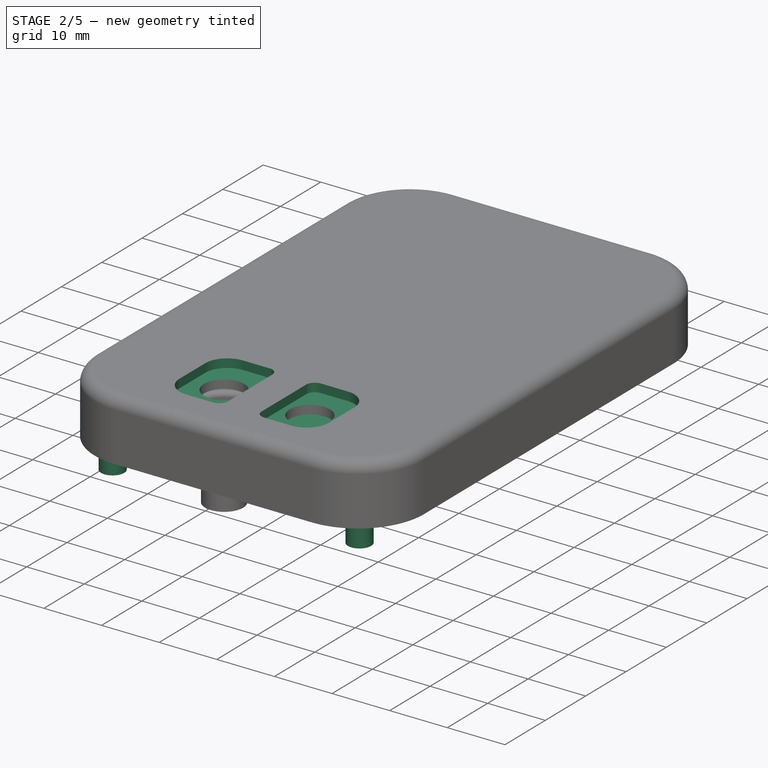
[diagram: stage 2 of 5 — iso view after this stage's code; geometry added in this stage tinted green]
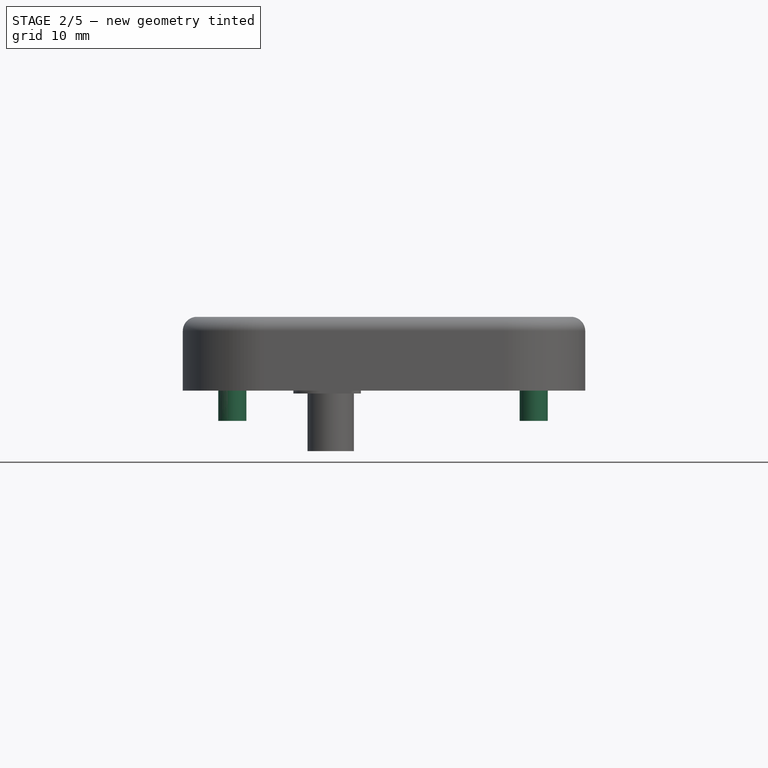
[diagram: stage 2 of 5 — front view after this stage's code; geometry added in this stage tinted green]
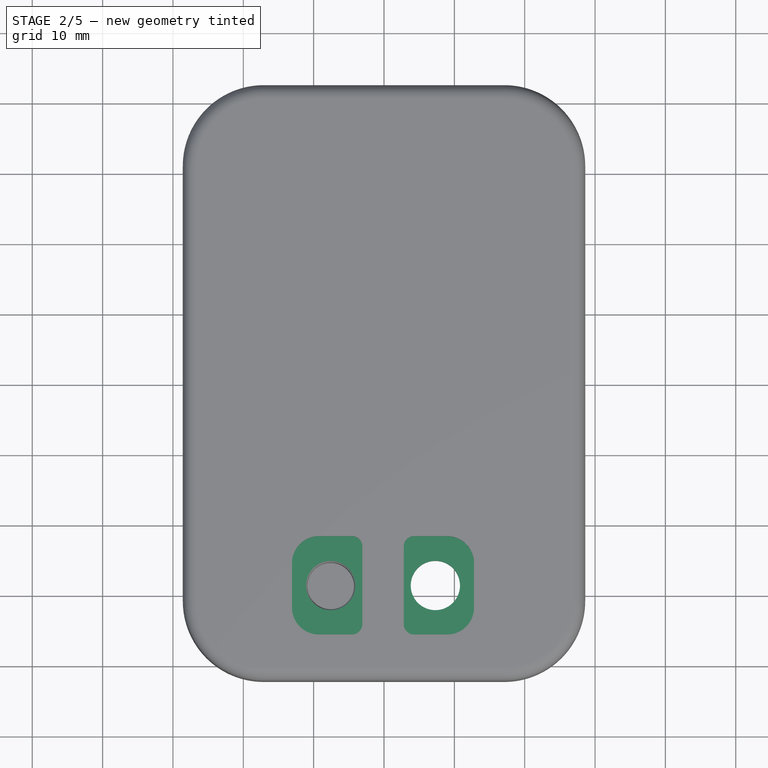
[diagram: stage 2 of 5 — top view after this stage's code; geometry added in this stage tinted green]
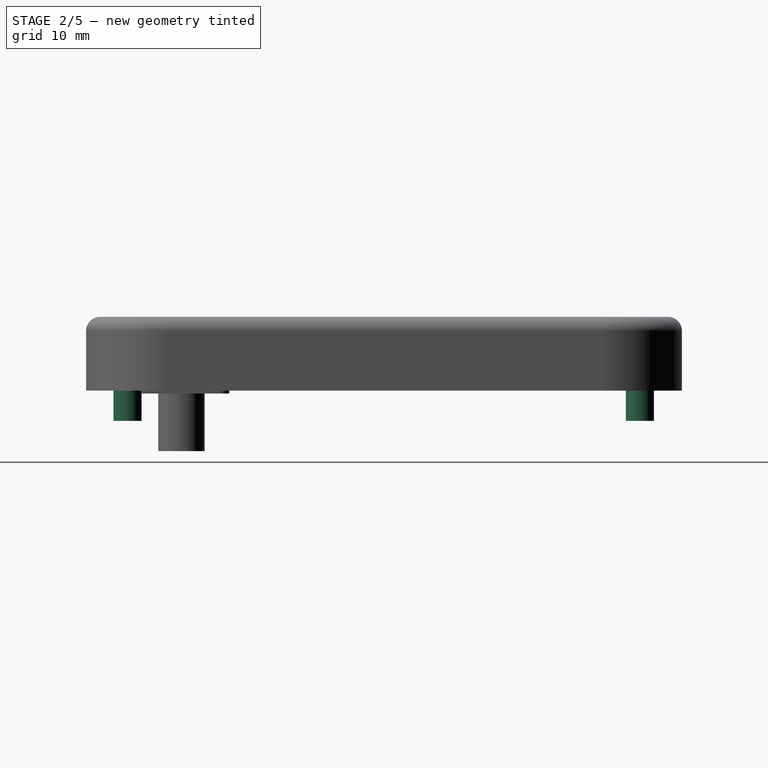
[diagram: stage 2 of 5 — right view after this stage's code; geometry added in this stage tinted green]
FEATURE [Sketcher::SketchObject] Sketch056
  ArcFitTolerance = 1e-06
  AttachmentOffset = pos=(0,0,9.1) rot=(0,0,1;0rad)
  AttachmentSupport = -> [XY_Plane011]
  ExternalGeometry = -> [Pocket026]
  FullyConstrained = true
  MakeInternals = false
  MapMode = 5
  Placement = pos=(0,0,9.1) rot=(0,0,1;0rad)
  expr: .AttachmentOffset.Base.z = <<vars>>.top_height
  expr: Constraints[10] = <<vars>>.front_button_width
  expr: Constraints[11] = <<vars>>.front_button_length
  expr: Constraints[28] = <<vars>>.front_button_inner_rad
  expr: Constraints[30] = <<vars>>.front_button_outer_rad
  expr: Constraints[48] = <<vars>>.front_button_length_offset
  expr: Constraints[49] = <<vars>>.front_button_width_offset
  expr: Constraints[50] = <<vars>>.front_button_length
  expr: Constraints[51] = <<vars>>.front_button_width
  expr: Constraints[8] = <<vars>>.front_button_length_offset
  expr: Constraints[9] = <<vars>>.front_button_width_offset
  sketch-geometry (24):
    g0: LineSegment StartX=-13.08 StartY=-25.64 StartZ=0 EndX=-13.08 EndY=-31.94 EndZ=0
    g1: LineSegment StartX=-9.23 StartY=-35.79 StartZ=0 EndX=-4.58 EndY=-35.79 EndZ=0
    g2: LineSegment StartX=-3.08 StartY=-34.29 StartZ=0 EndX=-3.08 EndY=-23.29 EndZ=0
    g3: LineSegment StartX=-4.58 StartY=-21.79 StartZ=0 EndX=-9.23 EndY=-21.79 EndZ=0
    g4: LineSegment StartX=2.8 StartY=-23.29 StartZ=0 EndX=2.8 EndY=-34.29 EndZ=0
    g5: LineSegment StartX=4.3 StartY=-35.79 StartZ=0 EndX=8.95 EndY=-35.79 EndZ=0
    g6: LineSegment StartX=12.8 StartY=-31.94 StartZ=0 EndX=12.8 EndY=-25.64 EndZ=0
    g7: LineSegment StartX=8.95 StartY=-21.79 StartZ=0 EndX=4.3 EndY=-21.79 EndZ=0
    g8: ArcOfCircle CenterX=-9.23 CenterY=-25.64 CenterZ=0 NormalX=0 NormalY=0 NormalZ=1 AngleXU=0 Radius=3.85 StartAngle=1.5708 EndAngle=3.14159
    g9: GeomPoint [constr] X=-13.08 Y=-21.79 Z=0
    g10: ArcOfCircle CenterX=-9.23 CenterY=-31.94 CenterZ=0 NormalX=0 NormalY=0 NormalZ=1 AngleXU=0 Radius=3.85 StartAngle=3.14159 EndAngle=4.71239
    g11: GeomPoint [constr] X=-13.08 Y=-35.79 Z=0
    g12: ArcOfCircle CenterX=-4.58 CenterY=-34.29 CenterZ=0 NormalX=0 NormalY=0 NormalZ=1 AngleXU=0 Radius=1.5 StartAngle=4.71239 EndAngle=6.28319
    g13: GeomPoint [constr] X=-3.08 Y=-35.79 Z=0
    g14: ArcOfCircle CenterX=-4.58 CenterY=-23.29 CenterZ=0 NormalX=0 NormalY=0 NormalZ=1 AngleXU=0 Radius=1.5 StartAngle=-9e-16 EndAngle=1.5708
    g15: GeomPoint [constr] X=-3.08 Y=-21.79 Z=0
    g16: ArcOfCircle CenterX=4.3 CenterY=-23.29 CenterZ=0 NormalX=0 NormalY=0 NormalZ=1 AngleXU=0 Radius=1.5 StartAngle=1.5708 EndAngle=3.14159
    g17: GeomPoint [constr] X=2.8 Y=-21.79 Z=0
    g18: ArcOfCircle CenterX=4.3 CenterY=-34.29 CenterZ=0 NormalX=0 NormalY=0 NormalZ=1 AngleXU=0 Radius=1.5 StartAngle=3.14159 EndAngle=4.71239
    g19: GeomPoint [constr] X=2.8 Y=-35.79 Z=0
    g20: ArcOfCircle CenterX=8.95 CenterY=-31.94 CenterZ=0 NormalX=0 NormalY=0 NormalZ=1 AngleXU=0 Radius=3.85 StartAngle=4.71239 EndAngle=6.28319
    g21: GeomPoint [constr] X=12.8 Y=-35.79 Z=0
    g22: ArcOfCircle CenterX=8.95 CenterY=-25.64 CenterZ=0 NormalX=0 NormalY=0 NormalZ=1 AngleXU=0 Radius=3.85 StartAngle=1e-16 EndAngle=1.5708
    g23: GeomPoint [constr] X=12.8 Y=-21.79 Z=0
  constraints (56):
    c: Vertical(g0)
    c: Vertical(g2)
    c: Horizontal(g1)
    c: Horizontal(g3)
    c: Vertical(g4)
    c: Vertical(g6)
    c: Horizontal(g5)
    c: Horizontal(g7)
    c: Distance(g-4,g2) = 4.5
    c: Distance(g-4,g3) = 7
    c: DistanceY(g11,g9) = 14
    c: DistanceX(g9,g15) = 10
    c: PointOnObject(g9,g0)
    c: PointOnObject(g9,g3)
    c: Tangent(g0,g8) = -1.5708
    c: Tangent(g3,g8) = -1.5708
    c: PointOnObject(g11,g0)
    c: PointOnObject(g11,g1)
    c: Tangent(g0,g10) = -1.5708
    c: Tangent(g1,g10) = -1.5708
    c: PointOnObject(g13,g1)
    c: PointOnObject(g13,g2)
    c: Tangent(g1,g12) = -1.5708
    c: Tangent(g2,g12) = -1.5708
    c: PointOnObject(g15,g2)
    c: PointOnObject(g15,g3)
    c: Tangent(g2,g14) = -1.5708
    c: Tangent(g3,g14) = -1.5708
    c: Radius(g14) = 1.5
    c: Equal(g14,g12)
    c: Radius(g10) = 3.85
    c: Equal(g8,g10)
    c: PointOnObject(g17,g4)
    c: PointOnObject(g17,g7)
    c: Tangent(g4,g16) = -1.5708
    c: Tangent(g7,g16) = -1.5708
    c: PointOnObject(g19,g4)
    c: PointOnObject(g19,g5)
    c: Tangent(g4,g18) = -1.5708
    c: Tangent(g5,g18) = -1.5708
    c: PointOnObject(g21,g5)
    c: PointOnObject(g21,g6)
    c: Tangent(g5,g20) = -1.5708
    c: Tangent(g6,g20) = -1.5708
    c: PointOnObject(g23,g6)
    c: PointOnObject(g23,g7)
    c: Tangent(g6,g22) = -1.5708
    c: Tangent(g7,g22) = -1.5708
    c: Distance(g-3,g4) = 4.5
    c: Distance(g-3,g7) = 7
    c: DistanceX(g17,g23) = 10
    c: DistanceY(g19,g17) = 14
    c: Equal(g16,g14)
    c: Equal(g16,g18)
    c: Equal(g22,g8)
    c: Equal(g22,g20)
FEATURE [PartDesign::Pocket] Pocket027  label="button-inset"
  BaseFeature = -> Pocket026
  Direction = (0,0,-1)
  Length = 1.5
  Length2 = 5
  Profile = -> Sketch056
  ReferenceAxis = -> Sketch056 [N_Axis]
  Refine = true
  Suppressed = false
  Type = 0
  expr: Length = <<vars>>.front_button_depth
FEATURE [Sketcher::SketchObject] Sketch057
  ArcFitTolerance = 1e-06
  AttachmentSupport = -> [XY_Plane011]
  FullyConstrained = true
  MakeInternals = false
  MapMode = 5
  expr: Constraints[23] = <<vars>>.corner_rad
  expr: Constraints[49] = <<vars>>.lip_thickness
  expr: Constraints[4] = <<vars>>.length
  expr: Constraints[5] = <<vars>>.width
  sketch-geometry (24):
    g0: LineSegment StartX=-28.6 StartY=30.85 StartZ=0 EndX=-28.6 EndY=-30.85 EndZ=0
    g1: LineSegment StartX=-17.1 StartY=-42.35 StartZ=0 EndX=17.1 EndY=-42.35 EndZ=0
    g2: LineSegment StartX=28.6 StartY=-30.85 StartZ=0 EndX=28.6 EndY=30.85 EndZ=0
    g3: LineSegment StartX=17.1 StartY=42.35 StartZ=0 EndX=-17.1 EndY=42.35 EndZ=0
    g4: ArcOfCircle CenterX=-17.1 CenterY=30.85 CenterZ=0 NormalX=0 NormalY=0 NormalZ=1 AngleXU=0 Radius=11.5 StartAngle=1.5708 EndAngle=3.14159
    g5: GeomPoint [constr] X=-28.6 Y=42.35 Z=0
    g6: ArcOfCircle CenterX=17.1 CenterY=30.85 CenterZ=0 NormalX=0 NormalY=0 NormalZ=1 AngleXU=0 Radius=11.5 StartAngle=0 EndAngle=1.5708
    g7: GeomPoint [constr] X=28.6 Y=42.35 Z=0
    g8: ArcOfCircle CenterX=17.1 CenterY=-30.85 CenterZ=0 NormalX=0 NormalY=0 NormalZ=1 AngleXU=0 Radius=11.5 StartAngle=4.71239 EndAngle=6.28319
    g9: GeomPoint [constr] X=28.6 Y=-42.35 Z=0
    g10: ArcOfCircle CenterX=-17.1 CenterY=-30.85 CenterZ=0 NormalX=0 NormalY=0 NormalZ=1 AngleXU=0 Radius=11.5 StartAngle=3.14159 EndAngle=4.71239
    g11: GeomPoint [constr] X=-28.6 Y=-42.35 Z=0
    g12: LineSegment StartX=-27.8 StartY=30.85 StartZ=0 EndX=-27.8 EndY=-30.85 EndZ=0
    g13: LineSegment StartX=-17.1 StartY=-41.55 StartZ=0 EndX=17.1 EndY=-41.55 EndZ=0
    g14: LineSegment StartX=27.8 StartY=-30.85 StartZ=0 EndX=27.8 EndY=30.85 EndZ=0
    g15: LineSegment StartX=17.1 StartY=41.55 StartZ=0 EndX=-17.1 EndY=41.55 EndZ=0
    g16: ArcOfCircle CenterX=-17.1 CenterY=30.85 CenterZ=0 NormalX=0 NormalY=0 NormalZ=1 AngleXU=0 Radius=10.7 StartAngle=1.5708 EndAngle=3.14159
    g17: GeomPoint [constr] X=-27.8 Y=41.55 Z=0
    g18: ArcOfCircle CenterX=17.1 CenterY=30.85 CenterZ=0 NormalX=0 NormalY=0 NormalZ=1 AngleXU=0 Radius=10.7 StartAngle=2e-16 EndAngle=1.5708
    g19: GeomPoint [constr] X=27.8 Y=41.55 Z=0
    g20: ArcOfCircle CenterX=17.1 CenterY=-30.85 CenterZ=0 NormalX=0 NormalY=0 NormalZ=1 AngleXU=0 Radius=10.7 StartAngle=4.71239 EndAngle=6.28319
    g21: GeomPoint [constr] X=27.8 Y=-41.55 Z=0
    g22: ArcOfCircle CenterX=-17.1 CenterY=-30.85 CenterZ=0 NormalX=0 NormalY=0 NormalZ=1 AngleXU=0 Radius=10.7 StartAngle=3.14159 EndAngle=4.71239
    g23: GeomPoint [constr] X=-27.8 Y=-41.55 Z=0
  constraints (55):
    c: Vertical(g0)
    c: Vertical(g2)
    c: Horizontal(g1)
    c: Horizontal(g3)
    c: DistanceY(g9,g7) = 84.7
    c: DistanceX(g5,g7) = 57.2
    c: Symmetric(g7,g11,g-1)
    c: PointOnObject(g5,g0)
    c: PointOnObject(g5,g3)
    c: Tangent(g0,g4) = -1.5708
    c: Tangent(g3,g4) = -1.5708
    c: PointOnObject(g7,g2)
    c: PointOnObject(g7,g3)
    c: Tangent(g2,g6) = -1.5708
    c: Tangent(g3,g6) = -1.5708
    c: PointOnObject(g9,g1)
    c: PointOnObject(g9,g2)
    c: Tangent(g1,g8) = -1.5708
    c: Tangent(g2,g8) = -1.5708
    c: PointOnObject(g11,g0)
    c: PointOnObject(g11,g1)
    c: Tangent(g0,g10) = -1.5708
    c: Tangent(g1,g10) = -1.5708
    c: Radius(g4) = 11.5
    c: Equal(g6,g4)
    c: Equal(g8,g6)
    c: Equal(g10,g8)
    c: Vertical(g12)
    c: Vertical(g14)
    c: Horizontal(g13)
    c: Horizontal(g15)
    c: PointOnObject(g17,g12)
    c: PointOnObject(g17,g15)
    c: Tangent(g12,g16) = -1.5708
    c: Tangent(g15,g16) = -1.5708
    c: PointOnObject(g19,g14)
    c: PointOnObject(g19,g15)
    c: Tangent(g14,g18) = -1.5708
    c: Tangent(g15,g18) = -1.5708
    c: PointOnObject(g21,g13)
    c: PointOnObject(g21,g14)
    c: Tangent(g13,g20) = -1.5708
    c: Tangent(g14,g20) = -1.5708
    c: PointOnObject(g23,g12)
    c: PointOnObject(g23,g13)
    c: Tangent(g12,g22) = -1.5708
    c: Tangent(g13,g22) = -1.5708
    c: Horizontal(g12,g0)
    c: Vertical(g13,g1)
    c: DistanceX(g0,g12) = 0.8
    c: Vertical(g13,g1)
    c: Horizontal(g14,g2)
    c: Vertical(g15,g3)
    c: Horizontal(g12,g0)
    c: Vertical(g15,g3)
FEATURE [PartDesign::Pad] Pad025  label="lip-angle001"
  BaseFeature = -> Pocket027
  Direction = (0,0,1)
  Length = 1.4
  Length2 = 10
  Profile = -> Sketch057
  ReferenceAxis = -> Sketch057 [N_Axis]
  Refine = true
  Reversed = true
  Suppressed = false
  TaperAngle = -14.85
  Type = 0
  expr: Length = <<vars>>.lip_height
  expr: TaperAngle = -<<vars>>.lip_angle
FEATURE [Sketcher::SketchObject] Sketch058
  ArcFitTolerance = 1e-06
  AttachmentSupport = -> [XY_Plane011]
  FullyConstrained = true
  MakeInternals = false
  MapMode = 5
  expr: Constraints[10] = <<vars>>.length
  expr: Constraints[27] = <<vars>>.corner_rad
  expr: Constraints[54] = <<vars>>.lip_thickness
  expr: Constraints[9] = <<vars>>.width
  sketch-geometry (24):
    g0: LineSegment StartX=-28.6 StartY=30.85 StartZ=0 EndX=-28.6 EndY=-30.85 EndZ=0
    g1: LineSegment StartX=-17.1 StartY=-42.35 StartZ=0 EndX=17.1 EndY=-42.35 EndZ=0
    g2: LineSegment StartX=28.6 StartY=-30.85 StartZ=0 EndX=28.6 EndY=30.85 EndZ=0
    g3: LineSegment StartX=17.1 StartY=42.35 StartZ=0 EndX=-17.1 EndY=42.35 EndZ=0
    g4: LineSegment StartX=-27.8 StartY=30.85 StartZ=0 EndX=-27.8 EndY=-30.85 EndZ=0
    g5: LineSegment StartX=-17.1 StartY=-41.55 StartZ=0 EndX=17.1 EndY=-41.55 EndZ=0
    g6: LineSegment StartX=27.8 StartY=-30.85 StartZ=0 EndX=27.8 EndY=30.85 EndZ=0
    g7: LineSegment StartX=17.1 StartY=41.55 StartZ=0 EndX=-17.1 EndY=41.55 EndZ=0
    g8: ArcOfCircle CenterX=-17.1 CenterY=30.85 CenterZ=0 NormalX=0 NormalY=0 NormalZ=1 AngleXU=0 Radius=11.5 StartAngle=1.5708 EndAngle=3.14159
    g9: GeomPoint [constr] X=-28.6 Y=42.35 Z=0
    g10: ArcOfCircle CenterX=17.1 CenterY=30.85 CenterZ=0 NormalX=0 NormalY=0 NormalZ=1 AngleXU=0 Radius=11.5 StartAngle=0 EndAngle=1.5708
    g11: GeomPoint [constr] X=28.6 Y=42.35 Z=0
    g12: ArcOfCircle CenterX=17.1 CenterY=-30.85 CenterZ=0 NormalX=0 NormalY=0 NormalZ=1 AngleXU=0 Radius=11.5 StartAngle=4.71239 EndAngle=6.28319
    g13: GeomPoint [constr] X=28.6 Y=-42.35 Z=0
    g14: ArcOfCircle CenterX=-17.1 CenterY=-30.85 CenterZ=0 NormalX=0 NormalY=0 NormalZ=1 AngleXU=0 Radius=11.5 StartAngle=3.14159 EndAngle=4.71239
    g15: GeomPoint [constr] X=-28.6 Y=-42.35 Z=0
    g16: ArcOfCircle CenterX=-17.1 CenterY=30.85 CenterZ=0 NormalX=0 NormalY=0 NormalZ=1 AngleXU=0 Radius=10.7 StartAngle=1.5708 EndAngle=3.14159
    g17: GeomPoint [constr] X=-27.8 Y=41.55 Z=0
    g18: ArcOfCircle CenterX=17.1 CenterY=30.85 CenterZ=0 NormalX=0 NormalY=0 NormalZ=1 AngleXU=0 Radius=10.7 StartAngle=0 EndAngle=1.5708
    g19: GeomPoint [constr] X=27.8 Y=41.55 Z=0
    g20: ArcOfCircle CenterX=17.1 CenterY=-30.85 CenterZ=0 NormalX=0 NormalY=0 NormalZ=1 AngleXU=0 Radius=10.7 StartAngle=4.71239 EndAngle=6.28319
    g21: GeomPoint [constr] X=27.8 Y=-41.55 Z=0
    g22: ArcOfCircle CenterX=-17.1 CenterY=-30.85 CenterZ=0 NormalX=0 NormalY=0 NormalZ=1 AngleXU=0 Radius=10.7 StartAngle=3.14159 EndAngle=4.71239
    g23: GeomPoint [constr] X=-27.8 Y=-41.55 Z=0
  constraints (55):
    c: Vertical(g0)
    c: Vertical(g2)
    c: Horizontal(g1)
    c: Horizontal(g3)
    c: Vertical(g4)
    c: Vertical(g6)
    c: Horizontal(g5)
    c: Horizontal(g7)
    c: Symmetric(g9,g13,g-1)
    c: DistanceX(g9,g11) = 57.2
    c: DistanceY(g15,g9) = 84.7
    c: PointOnObject(g9,g0)
    c: PointOnObject(g9,g3)
    c: Tangent(g0,g8) = -1.5708
    c: Tangent(g3,g8) = -1.5708
    c: PointOnObject(g11,g2)
    c: PointOnObject(g11,g3)
    c: Tangent(g2,g10) = -1.5708
    c: Tangent(g3,g10) = -1.5708
    c: PointOnObject(g13,g1)
    c: PointOnObject(g13,g2)
    c: Tangent(g1,g12) = -1.5708
    c: Tangent(g2,g12) = -1.5708
    c: PointOnObject(g15,g0)
    c: PointOnObject(g15,g1)
    c: Tangent(g0,g14) = -1.5708
    c: Tangent(g1,g14) = -1.5708
    c: Radius(g8) = 11.5
    c: Equal(g8,g10)
    c: Equal(g10,g12)
    c: Equal(g14,g8)
    c: PointOnObject(g17,g4)
    c: PointOnObject(g17,g7)
    c: Tangent(g4,g16) = -1.5708
    c: Tangent(g7,g16) = -1.5708
    c: PointOnObject(g19,g6)
    c: PointOnObject(g19,g7)
    c: Tangent(g6,g18) = -1.5708
    c: Tangent(g7,g18) = -1.5708
    c: PointOnObject(g21,g5)
    c: PointOnObject(g21,g6)
    c: Tangent(g5,g20) = -1.5708
    c: Tangent(g6,g20) = -1.5708
    c: PointOnObject(g23,g4)
    c: PointOnObject(g23,g5)
    c: Tangent(g4,g22) = -1.5708
    c: Tangent(g5,g22) = -1.5708
    c: Vertical(g7,g3)
    c: Horizontal(g4,g0)
    c: Vertical(g7,g3)
    c: Horizontal(g6,g2)
    c: Horizontal(g6,g2)
    c: Vertical(g1,g5)
    c: Vertical(g5,g1)
    c: DistanceX(g0,g4) = 0.8
FEATURE [PartDesign::Pad] Pad026  label="lip_flattening001"
  BaseFeature = -> Pad025
  Direction = (0,0,1)
  Length = 1.4
  Length2 = 10
  Profile = -> Sketch058
  ReferenceAxis = -> Sketch058 [N_Axis]
  Refine = true
  Reversed = true
  Suppressed = false
  Type = 0
  expr: Length = <<vars>>.lip_height
FEATURE [Sketcher::SketchObject] Sketch059
  ArcFitTolerance = 1e-06
  AttachmentOffset = pos=(0,0,-28.6) rot=(0,0,1;0rad)
  AttachmentSupport = -> [YZ_Plane011]
  ExternalGeometry = -> [Binder001]
  FullyConstrained = true
  MakeInternals = false
  MapMode = 5
  Placement = pos=(-28.6,0,0) rot=(0.57735,0.57735,0.57735;2.0944rad)
  expr: .AttachmentOffset.Base.z = -<<vars>>.width / 2
  sketch-geometry (4):
    g0: LineSegment StartX=19.35 StartY=-0.305 StartZ=0 EndX=12.85 EndY=-0.305 EndZ=0
    g1: LineSegment StartX=12.85 StartY=-0.305 StartZ=0 EndX=12.85 EndY=-4.505 EndZ=0
    g2: LineSegment StartX=12.85 StartY=-4.505 StartZ=0 EndX=19.35 EndY=-4.505 EndZ=0
    g3: LineSegment StartX=19.35 StartY=-4.505 StartZ=0 EndX=19.35 EndY=-0.305 EndZ=0
  constraints (10):
    c: Coincident(g0,g1)
    c: Coincident(g1,g2)
    c: Coincident(g2,g3)
    c: Coincident(g3,g0)
    c: Horizontal(g0)
    c: Horizontal(g2)
    c: Vertical(g1)
    c: Vertical(g3)
    c: Coincident(g0,g-5)
    c: Coincident(g1,g-4)
FEATURE [PartDesign::Pocket] Pocket028  label="power-sw-pocket"
  BaseFeature = -> Pad026
  Direction = (-1,0,0)
  Length = 5
  Length2 = 5
  Profile = -> Sketch059
  ReferenceAxis = -> Sketch059 [N_Axis]
  Refine = true
  Reversed = true
  Suppressed = false
  Type = 0
FEATURE [Sketcher::SketchObject] Sketch060
  ArcFitTolerance = 1e-06
  AttachmentOffset = pos=(0,0,-42.35) rot=(0,0,1;0rad)
  AttachmentSupport = -> [XZ_Plane011]
  ExternalGeometry = -> [Binder001]
  FullyConstrained = true
  MakeInternals = false
  MapMode = 5
  Placement = pos=(0,42.35,-9.4e-15) rot=(1,0,0;1.5708rad)
  expr: .AttachmentOffset.Base.z = -<<vars>>.length / 2
  sketch-geometry (1):
    g0: Circle CenterX=0.66 CenterY=-3.195 CenterZ=0 NormalX=0 NormalY=0 NormalZ=1 AngleXU=0 Radius=2.7
  constraints (2):
    c: Coincident(g0,g-3)
    c: Distance(g-3,g0) = 0.2
FEATURE [PartDesign::Pocket] Pocket029  label="jack-pocket001"
  BaseFeature = -> Pocket028
  Direction = (0,1,-2e-16)
  Length = 5
  Length2 = 5
  Profile = -> Sketch060
  ReferenceAxis = -> Sketch060 [N_Axis]
  Refine = true
  Reversed = true
  Suppressed = false
  Type = 0
FEATURE [PartDesign::SubShapeBinder] Binder004  label="bottom-binder"
  BindCopyOnChange = 0
  BindMode = 0
  ClaimChildren = false
  Context = -> Body010 [Binder004.]
  Fuse = false
  MakeFace = true
  OffsetFill = false
  OffsetIntersection = false
  OffsetJoinType = 0
  OffsetOpenResult = false
  PartialLoad = false
  Refine = true
  Relative = true
  Support = -> [Body007]
  _Version = 2
FEATURE [PartDesign::SubShapeBinder] Binder005  label="ev15-binder002"
  BindCopyOnChange = 0
  BindMode = 0
  ClaimChildren = false
  Context = -> Body010 [Binder005.]
  Fuse = false
  MakeFace = true
  OffsetFill = false
  OffsetIntersection = false
  OffsetJoinType = 0
  OffsetOpenResult = false
  PartialLoad = false
  Refine = true
  Relative = true
  Support = -> [ev15_1]
  _Version = 2
FEATURE [Sketcher::SketchObject] Sketch073
  ArcFitTolerance = 1e-06
  AttachmentSupport = -> [XY_Plane015]
  FullyConstrained = true
  MakeInternals = false
  MapMode = 5
  expr: Constraints[10] = <<vars>>.digikey_carrier_length
  expr: Constraints[11] = <<vars>>.digikey_carrier_width
  sketch-geometry (5):
    g0: LineSegment StartX=16 StartY=-22 StartZ=0 EndX=16 EndY=22 EndZ=0
    g1: LineSegment StartX=16 StartY=22 StartZ=0 EndX=-16 EndY=22 EndZ=0
    g2: LineSegment StartX=-16 StartY=22 StartZ=0 EndX=-16 EndY=-22 EndZ=0
    g3: LineSegment StartX=-16 StartY=-22 StartZ=0 EndX=16 EndY=-22 EndZ=0
    g4: GeomPoint [constr] X=0 Y=0 Z=0
  constraints (12):
    c: Coincident(g0,g1)
    c: Coincident(g1,g2)
    c: Coincident(g2,g3)
    c: Coincident(g3,g0)
    c: Vertical(g0)
    c: Vertical(g2)
    c: Horizontal(g1)
    c: Horizontal(g3)
    c: Symmetric(g2,g0,g4)
    c: Coincident(g4,g-1)
    c: DistanceY(g0,g0) = 44
    c: DistanceX(g1,g1) = 32
FEATURE [PartDesign::Pad] Pad037  label="carrier-pad"
  Direction = (0,0,1)
  Length = 1.6
  Length2 = 10
  Profile = -> Sketch073
  ReferenceAxis = -> Sketch073 [N_Axis]
  Refine = true
  Suppressed = false
  Type = 0
  expr: Length = <<vars>>.digikey_carrier_height
FEATURE [Sketcher::SketchObject] Sketch074
  ArcFitTolerance = 1e-06
  AttachmentOffset = pos=(0,0,1.6) rot=(0,0,1;0rad)
  AttachmentSupport = -> [XY_Plane015]
  FullyConstrained = true
  MakeInternals = false
  MapMode = 5
  Placement = pos=(0,0,1.6) rot=(0,0,1;0rad)
  expr: .AttachmentOffset.Base.z = <<vars>>.digikey_carrier_height
  expr: Constraints[10] = <<vars>>.digikey_carrier_width
  expr: Constraints[11] = <<vars>>.digikey_backlight_length
  sketch-geometry (5):
    g0: LineSegment StartX=-16 StartY=-12.6 StartZ=0 EndX=16 EndY=-12.6 EndZ=0
    g1: LineSegment StartX=16 StartY=-12.6 StartZ=0 EndX=16 EndY=12.6 EndZ=0
    g2: LineSegment StartX=16 StartY=12.6 StartZ=0 EndX=-16 EndY=12.6 EndZ=0
    g3: LineSegment StartX=-16 StartY=12.6 StartZ=0 EndX=-16 EndY=-12.6 EndZ=0
    g4: GeomPoint [constr] X=0 Y=0 Z=0
  constraints (12):
    c: Coincident(g0,g1)
    c: Coincident(g1,g2)
    c: Coincident(g2,g3)
    c: Coincident(g3,g0)
    c: Horizontal(g0)
    c: Horizontal(g2)
    c: Vertical(g1)
    c: Vertical(g3)
    c: Symmetric(g2,g0,g4)
    c: Coincident(g4,g-1)
    c: DistanceX(g2,g2) = 32
    c: DistanceY(g1,g1) = 25.2
FEATURE [PartDesign::Pad] Pad038  label="backlight-pad"
  BaseFeature = -> Pad037
  Direction = (0,0,1)
  Length = 2.5
  Length2 = 10
  Profile = -> Sketch074
  ReferenceAxis = -> Sketch074 [N_Axis]
  Refine = true
  Suppressed = false
  Type = 0
  expr: Length = <<vars>>.digikey_backlight_height
FEATURE [Sketcher::SketchObject] Sketch075
  ArcFitTolerance = 1e-06
  AttachmentOffset = pos=(0,0,4.1) rot=(0,0,1;0rad)
  AttachmentSupport = -> [XY_Plane015]
  ExternalGeometry = -> [Pad038]
  FullyConstrained = true
  MakeInternals = false
  MapMode = 5
  Placement = pos=(0,0,4.1) rot=(0,0,1;0rad)
  expr: .AttachmentOffset.Base.z = <<vars>>.digikey_carrier_height + <<vars>>.digikey_backlight_height
  expr: Constraints[10] = <<vars>>.digikey_carrier_width
  expr: Constraints[9] = <<vars>>.digikey_lcd_length
  sketch-geometry (5):
    g0: LineSegment StartX=-16 StartY=-18.7 StartZ=0 EndX=16 EndY=-18.7 EndZ=0
    g1: LineSegment StartX=16 StartY=-18.7 StartZ=0 EndX=16 EndY=16.5 EndZ=0
    g2: LineSegment StartX=16 StartY=16.5 StartZ=0 EndX=-16 EndY=16.5 EndZ=0
    g3: LineSegment StartX=-16 StartY=16.5 StartZ=0 EndX=-16 EndY=-18.7 EndZ=0
    g4: GeomPoint [constr] X=0 Y=0 Z=0
  constraints (13):
    c: Coincident(g0,g1)
    c: Coincident(g1,g2)
    c: Coincident(g2,g3)
    c: Coincident(g3,g0)
    c: Horizontal(g0)
    c: Horizontal(g2)
    c: Vertical(g1)
    c: Vertical(g3)
    c: Coincident(g4,g-1)
    c: DistanceY(g1,g1) = 35.2
    c: DistanceX(g2,g2) = 32
    c: Vertical(g0,g-3)
    c: Distance(g-4,g2) = 5.5
FEATURE [PartDesign::Pad] Pad039  label="lcd"
  BaseFeature = -> Pad038
  Direction = (0,0,1)
  Length = 1.9
  Length2 = 10
  Profile = -> Sketch075
  ReferenceAxis = -> Sketch075 [N_Axis]
  Refine = true
  Suppressed = false
  Type = 0
  expr: Length = <<vars>>.digikey_lcd_height
FEATURE [Sketcher::SketchObject] Sketch076
  ArcFitTolerance = 1e-06
  AttachmentSupport = -> [XY_Plane015]
  ExternalGeometry = -> [Pad039]
  FullyConstrained = true
  MakeInternals = false
  MapMode = 5
  sketch-geometry (31):
    g0: LineSegment StartX=16 StartY=22 StartZ=0 EndX=16 EndY=16.95 EndZ=0
    g1: LineSegment StartX=16 StartY=16.95 StartZ=0 EndX=18.625 EndY=16.95 EndZ=0
    g2: LineSegment StartX=18.625 StartY=22 StartZ=0 EndX=16 EndY=22 EndZ=0
    g3: LineSegment StartX=16 StartY=-22 StartZ=0 EndX=18.625 EndY=-22 EndZ=0
    g4: LineSegment StartX=18.625 StartY=-16.95 StartZ=0 EndX=16 EndY=-16.95 EndZ=0
    g5: LineSegment StartX=16 StartY=-16.95 StartZ=0 EndX=16 EndY=-22 EndZ=0
    g6: LineSegment StartX=-16 StartY=-22 StartZ=0 EndX=-16 EndY=-16.95 EndZ=0
    g7: LineSegment StartX=-16 StartY=-16.95 StartZ=0 EndX=-18.625 EndY=-16.95 EndZ=0
    g8: LineSegment StartX=-18.625 StartY=-22 StartZ=0 EndX=-16 EndY=-22 EndZ=0
    g9: GeomPoint [constr] X=16 Y=19.475 Z=0
    g10: GeomPoint [constr] X=16 Y=-19.475 Z=0
    g11: LineSegment StartX=-16 StartY=22 StartZ=0 EndX=-18.625 EndY=22 EndZ=0
    g12: LineSegment StartX=-18.625 StartY=16.95 StartZ=0 EndX=-16 EndY=16.95 EndZ=0
    g13: LineSegment StartX=-16 StartY=16.95 StartZ=0 EndX=-16 EndY=22 EndZ=0
    g14: ArcOfCircle CenterX=-18.625 CenterY=19.475 CenterZ=0 NormalX=0 NormalY=0 NormalZ=1 AngleXU=0 Radius=2.525 StartAngle=1.5708 EndAngle=3.14159
    g15: GeomPoint [constr] X=-21.15 Y=22 Z=0
    g16: ArcOfCircle CenterX=-18.625 CenterY=19.475 CenterZ=0 NormalX=0 NormalY=0 NormalZ=1 AngleXU=0 Radius=2.525 StartAngle=3.14159 EndAngle=4.71239
    g17: GeomPoint [constr] X=-21.15 Y=16.95 Z=0
    g18: GeomPoint [constr] X=-16 Y=19.475 Z=0
    g19: Circle CenterX=-18.625 CenterY=19.475 CenterZ=0 NormalX=0 NormalY=0 NormalZ=1 AngleXU=0 Radius=1.25
    g20: GeomPoint X=21.15 Y=19.475 Z=0
    g21: Circle CenterX=18.625 CenterY=19.475 CenterZ=0 NormalX=0 NormalY=0 NormalZ=1 AngleXU=0 Radius=1.25
    g22: ArcOfCircle CenterX=18.625 CenterY=19.475 CenterZ=0 NormalX=0 NormalY=0 NormalZ=1 AngleXU=0 Radius=2.525 StartAngle=4.71239 EndAngle=7.85398
    g23: GeomPoint [constr] X=21.15 Y=-19.475 Z=0
    g24: GeomPoint [constr] X=-21.15 Y=-19.475 Z=0
    g25: GeomPoint [constr] X=-16 Y=-19.475 Z=0
    g26: Circle CenterX=18.625 CenterY=-19.475 CenterZ=0 NormalX=0 NormalY=0 NormalZ=1 AngleXU=0 Radius=1.25
    g27: ArcOfCircle CenterX=18.625 CenterY=-19.475 CenterZ=0 NormalX=0 NormalY=0 NormalZ=1 AngleXU=0 Radius=2.525 StartAngle=4.71239 EndAngle=7.85398
    g28: Circle CenterX=-18.625 CenterY=-19.475 CenterZ=0 NormalX=0 NormalY=0 NormalZ=1 AngleXU=0 Radius=1.25
    g29: ArcOfCircle CenterX=-18.625 CenterY=-19.475 CenterZ=0 NormalX=0 NormalY=0 NormalZ=1 AngleXU=0 Radius=2.525 StartAngle=1.5708 EndAngle=4.71239
    g30: LineSegment [constr] StartX=-21.15 StartY=22 StartZ=0 EndX=-21.15 EndY=16.95 EndZ=0
  constraints (76):
    c: Coincident(g0,g1)
    c: Coincident(g2,g0)
    c: Vertical(g0)
    c: Horizontal(g1)
    c: Horizontal(g2)
    c: Coincident(g0,g-5)
    c: Coincident(g4,g5)
    c: Coincident(g5,g3)
    c: Horizontal(g3)
    c: Horizontal(g4)
    c: Vertical(g5)
    c: Coincident(g3,g-3)
    c: Coincident(g6,g7)
    c: Coincident(g8,g6)
    c: Vertical(g6)
    c: Horizontal(g7)
    c: Horizontal(g8)
    c: Coincident(g6,g-3)
    c: Symmetric(g0,g0,g9)
    c: Coincident(g12,g13)
    c: Coincident(g13,g11)
    c: Horizontal(g11)
    c: Horizontal(g12)
    c: Vertical(g13)
    c: Distance(g15,g13) = 5.15
    c: Coincident(g11,g-6)
    c: DistanceY(g17,g15) = 5.05
    c: PointOnObject(g15,g11)
    c: Tangent(g11,g14) = -1.5708
    c: PointOnObject(g17,g12)
    c: Tangent(g12,g16) = -1.5708
    c: Symmetric(g13,g13,g18)
    c: DistanceX(g17,g12) = 5.15
    c: Horizontal(g14,g18)
    c: Horizontal(g16,g18)
    c: Horizontal(g19,g18)
    c: Vertical(g19,g11)
    c: Vertical(g16,g17)
    c: Vertical(g14,g15)
    c: Horizontal(g18,g14)
    c: Horizontal(g16,g18)
    c: Diameter(g19) = 2.5
    c: Horizontal(g20,g9)
    c: Distance(g9,g20) = 5.15
    c: DistanceY(g0,g0) = 5.05
    c: Vertical(g21,g2)
    c: Coincident(g22,g21)
    c: Coincident(g22,g2)
    c: Coincident(g22,g1)
    c: Equal(g1,g2)
    c: PointOnObject(g20,g22)
    c: Diameter(g21) = 2.5
    c: Symmetric(g6,g6,g25)
    c: DistanceX(g10,g23) = 5.15
    c: Symmetric(g4,g3,g10)
    c: DistanceY(g5,g5) = 5.05
    c: Equal(g4,g3)
    c: Coincident(g27,g26)
    c: Coincident(g27,g4)
    c: Coincident(g27,g3)
    c: PointOnObject(g23,g27)
    c: Diameter(g26) = 2.5
    c: Horizontal(g23,g10)
    c: Vertical(g4,g26)
    c: Horizontal(g24,g25)
    c: Coincident(g29,g28)
    c: Coincident(g29,g7)
    c: Coincident(g29,g8)
    c: Equal(g7,g8)
    c: Vertical(g28,g7)
    c: Diameter(g28) = 2.5
    c: DistanceX(g24,g25) = 5.15
    c: PointOnObject(g24,g29)
    c: DistanceY(g6,g6) = 5.05
    c: Coincident(g30,g15)
    c: Coincident(g30,g17)
FEATURE [PartDesign::Pad] Pad040  label="screw-pads"
  BaseFeature = -> Pad039
  Direction = (0,0,1)
  Length = 1.6
  Length2 = 10
  Profile = -> Sketch076
  ReferenceAxis = -> Sketch076 [N_Axis]
  Refine = true
  Suppressed = false
  Type = 0
  expr: Length = <<vars>>.digikey_carrier_height
FEATURE [PartDesign::Body] Body013  label="Body"
  AllowCompound = false
  Group = -> [Sketch087,Pad045,Sketch088,Pad046,Sketch089,Pad047,Sketch090,Pocket037,Fillet007]
  Origin = -> Origin017
  Tip = -> Fillet007
FEATURE [Sketcher::SketchObject] Sketch091
  ArcFitTolerance = 1e-06
  AttachmentOffset = pos=(0,0,-26.4) rot=(0,0,1;0rad)
  AttachmentSupport = -> [YZ_Plane009]
  ExternalGeometry = -> [Binder]
  FullyConstrained = true
  MakeInternals = false
  MapMode = 5
  Placement = pos=(-26.4,0,0) rot=(0.57735,0.57735,0.57735;2.0944rad)
  expr: .AttachmentOffset.Base.z = -<<vars>>.wall_width / 2
  expr: Constraints[11] = <<vars>>.bottom_depth + <<vars>>.lip_height
  expr: Constraints[8] = <<vars>>.top_bottom_thickness
  sketch-geometry (4):
    g0: LineSegment StartX=31.55 StartY=16 StartZ=0 EndX=26.65 EndY=16 EndZ=0
    g1: LineSegment StartX=26.65 StartY=16 StartZ=0 EndX=26.65 EndY=1.65 EndZ=0
    g2: LineSegment StartX=26.65 StartY=1.65 StartZ=0 EndX=31.55 EndY=1.65 EndZ=0
    g3: LineSegment StartX=31.55 StartY=1.65 StartZ=0 EndX=31.55 EndY=16 EndZ=0
  constraints (12):
    c: Coincident(g0,g1)
    c: Coincident(g1,g2)
    c: Coincident(g2,g3)
    c: Coincident(g3,g0)
    c: Horizontal(g0)
    c: Horizontal(g2)
    c: Vertical(g1)
    c: Vertical(g3)
    c: Distance(g-1,g2) = 1.65
    c: Vertical(g0,g-3)
    c: Vertical(g0,g-4)
    c: DistanceY(g1,g1) = 14.35
FEATURE [Sketcher::SketchObject] Sketch092
  ArcFitTolerance = 1e-06
  AttachmentOffset = pos=(0,0,6.1) rot=(0,0,1;0rad)
  AttachmentSupport = -> [XY_Plane011]
  ExternalGeometry = -> [Binder001]
  FullyConstrained = true
  MakeInternals = false
  MapMode = 5
  Placement = pos=(0,0,6.1) rot=(0,0,1;0rad)
  expr: .AttachmentOffset.Base.z = <<vars>>.top_depth
  sketch-geometry (12):
    g0: Circle CenterX=-21.5615 CenterY=-36.4615 CenterZ=0 NormalX=0 NormalY=0 NormalZ=1 AngleXU=0 Radius=2
    g1: Circle CenterX=21.2816 CenterY=-36.4616 CenterZ=0 NormalX=0 NormalY=0 NormalZ=1 AngleXU=0 Radius=2
    g2: Circle CenterX=-21.5615 CenterY=36.3815 CenterZ=0 NormalX=0 NormalY=0 NormalZ=1 AngleXU=0 Radius=2
    g3: LineSegment [constr] StartX=-21.233 StartY=37.8894 StartZ=0 EndX=-21.233 EndY=35.5306 EndZ=0
    g4: LineSegment [constr] StartX=-23.0694 StartY=36.053 StartZ=0 EndX=-20.7106 EndY=36.053 EndZ=0
    g5: LineSegment [constr] StartX=-21.89 StartY=36.71 StartZ=0 EndX=-21.233 EndY=36.053 EndZ=0
    g6: LineSegment [constr] StartX=20.9531 StartY=-37.9694 StartZ=0 EndX=20.9531 EndY=-35.6106 EndZ=0
    g7: LineSegment [constr] StartX=22.7894 StartY=-36.1331 StartZ=0 EndX=20.4306 EndY=-36.1331 EndZ=0
    g8: LineSegment [constr] StartX=21.61 StartY=-36.79 StartZ=0 EndX=20.9531 EndY=-36.1331 EndZ=0
    g9: LineSegment [constr] StartX=-23.0694 StartY=-36.133 StartZ=0 EndX=-20.7106 EndY=-36.133 EndZ=0
    g10: LineSegment [constr] StartX=-21.233 StartY=-37.9694 StartZ=0 EndX=-21.233 EndY=-35.6106 EndZ=0
    g11: LineSegment [constr] StartX=-21.233 StartY=-36.133 StartZ=0 EndX=-21.89 EndY=-36.79 EndZ=0
  constraints (33):
    c: Diameter(g2) = 4
    c: Coincident(g3,g-4)
    c: PointOnObject(g3,g-4)
    c: Vertical(g3)
    c: Coincident(g4,g-6)
    c: PointOnObject(g4,g-4)
    c: Horizontal(g4)
    c: Coincident(g5,g-6)
    c: PointOnObject(g5,g3)
    c: PointOnObject(g5,g4)
    c: Coincident(g6,g-5)
    c: PointOnObject(g6,g-5)
    c: Coincident(g7,g-5)
    c: Coincident(g8,g-5)
    c: Horizontal(g7)
    c: Vertical(g6)
    c: PointOnObject(g7,g-5)
    c: PointOnObject(g8,g7)
    c: PointOnObject(g8,g6)
    c: Symmetric(g8,g8,g1)
    c: Equal(g1,g2)
    c: Symmetric(g5,g5,g2)
    c: Coincident(g9,g-3)
    c: PointOnObject(g9,g-3)
    c: Coincident(g10,g-3)
    c: PointOnObject(g10,g-3)
    c: Vertical(g10)
    c: Horizontal(g9)
    c: PointOnObject(g11,g10)
    c: Coincident(g11,g-3)
    c: PointOnObject(g11,g9)
    c: Symmetric(g11,g11,g0)
    c: Equal(g0,g1)
FEATURE [PartDesign::Pad] Pad048  label="top-pegs"
  BaseFeature = -> Pocket029
  Direction = (0,0,1)
  Length = 11.8
  Length2 = 10
  Profile = -> Sketch092
  ReferenceAxis = -> Sketch092 [N_Axis]
  Refine = true
  Reversed = true
  Suppressed = false
  Type = 0
FEATURE [Sketcher::SketchObject] Sketch093
  ArcFitTolerance = 1e-06
  AttachmentSupport = -> [XY_Plane011]
  ExternalGeometry = -> [Binder001]
  FullyConstrained = true
  MakeInternals = false
  MapMode = 5
  sketch-geometry (12):
    g0: Circle CenterX=-21.5718 CenterY=36.3918 CenterZ=0 NormalX=0 NormalY=0 NormalZ=1 AngleXU=0 Radius=0.9
    g1: Circle CenterX=-21.5718 CenterY=-36.4718 CenterZ=0 NormalX=0 NormalY=0 NormalZ=1 AngleXU=0 Radius=0.9
    g2: Circle CenterX=21.2918 CenterY=-36.4718 CenterZ=0 NormalX=0 NormalY=0 NormalZ=1 AngleXU=0 Radius=0.9
    g3: LineSegment [constr] StartX=-23.0694 StartY=36.053 StartZ=0 EndX=-20.7106 EndY=36.053 EndZ=0
    g4: LineSegment [constr] StartX=-21.233 StartY=37.8894 StartZ=0 EndX=-21.233 EndY=35.5306 EndZ=0
    g5: LineSegment [constr] StartX=-21.89 StartY=36.71 StartZ=0 EndX=-21.233 EndY=36.053 EndZ=0
    g6: LineSegment [constr] StartX=20.9531 StartY=-37.9694 StartZ=0 EndX=20.9531 EndY=-35.6106 EndZ=0
    g7: LineSegment [constr] StartX=22.7894 StartY=-36.1331 StartZ=0 EndX=20.4306 EndY=-36.1331 EndZ=0
    g8: LineSegment [constr] StartX=21.61 StartY=-36.79 StartZ=0 EndX=20.9531 EndY=-36.1331 EndZ=0
    g9: LineSegment [constr] StartX=-21.233 StartY=-37.9694 StartZ=0 EndX=-21.233 EndY=-35.6106 EndZ=0
    g10: LineSegment [constr] StartX=-23.0694 StartY=-36.133 StartZ=0 EndX=-20.7106 EndY=-36.133 EndZ=0
    g11: LineSegment [constr] StartX=-21.89 StartY=-36.79 StartZ=0 EndX=-21.233 EndY=-36.133 EndZ=0
  constraints (36):
    c: Diameter(g0) = 1.8
    c: Equal(g0,g1)
    c: Equal(g1,g2)
    c: Tangent(g2,g-3)
    c: Tangent(g1,g-4)
    c: Coincident(g3,g-6)
    c: PointOnObject(g3,g-5)
    c: Horizontal(g3)
    c: Coincident(g4,g-5)
    c: PointOnObject(g4,g-5)
    c: Vertical(g4)
    c: Coincident(g5,g-6)
    c: PointOnObject(g5,g4)
    c: PointOnObject(g5,g3)
    c: PointOnObject(g0,g5)
    c: Tangent(g-5,g0)
    c: Coincident(g6,g-3)
    c: PointOnObject(g6,g-3)
    c: Coincident(g7,g-3)
    c: PointOnObject(g7,g-3)
    c: Coincident(g8,g-3)
    c: PointOnObject(g8,g7)
    c: PointOnObject(g8,g6)
    c: Vertical(g6)
    c: Horizontal(g7)
    c: PointOnObject(g2,g8)
    c: Coincident(g9,g-4)
    c: PointOnObject(g9,g-4)
    c: Coincident(g10,g-4)
    c: PointOnObject(g10,g-4)
    c: Coincident(g11,g-4)
    c: PointOnObject(g11,g9)
    c: Horizontal(g10)
    c: Vertical(g9)
    c: PointOnObject(g1,g11)
    c: PointOnObject(g11,g10)
FEATURE [PartDesign::Pocket] Pocket039  label="peg-pockets"
  BaseFeature = -> Pad048
  Direction = (0,0,-1)
  Length = 10
  Length2 = 5
  Profile = -> Sketch093
  ReferenceAxis = -> Sketch093 [N_Axis]
  Refine = true
  Suppressed = false
  Type = 0
FEATURE [Sketcher::SketchObject] Sketch094
  ArcFitTolerance = 1e-06
  AttachmentOffset = pos=(0,0,9.1) rot=(0,0,1;0rad)
  AttachmentSupport = -> [XY_Plane011]
  ExternalGeometry = -> [Binder001]
  FullyConstrained = true
  MakeInternals = false
  MapMode = 5
  Placement = pos=(0,0,9.1) rot=(0,0,1;0rad)
  expr: .AttachmentOffset.Base.z = <<vars>>.top_height - <<vars>>.top_height * <<vars>>.version_demo
  sketch-geometry (6):
    g0: GeomPoint [constr] X=17.05 Y=-25.77 Z=0
    g1: GeomPoint [constr] X=22.05 Y=-33.39 Z=0
    g2: LineSegment StartX=14.55 StartY=-24.77 StartZ=0 EndX=14.55 EndY=-34.39 EndZ=0
    g3: LineSegment StartX=14.55 StartY=-34.39 StartZ=0 EndX=24.55 EndY=-34.39 EndZ=0
    g4: LineSegment StartX=24.55 StartY=-34.39 StartZ=0 EndX=24.55 EndY=-24.77 EndZ=0
    g5: LineSegment StartX=24.55 StartY=-24.77 StartZ=0 EndX=14.55 EndY=-24.77 EndZ=0
  constraints (16):
    c: Vertical(g1,g-5)
    c: Horizontal(g1,g-4)
    c: Vertical(g0,g-6)
    c: Horizontal(g0,g-3)
    c: Coincident(g2,g3)
    c: Coincident(g3,g4)
    c: Coincident(g4,g5)
    c: Coincident(g5,g2)
    c: Vertical(g2)
    c: Vertical(g4)
    c: Horizontal(g3)
    c: Horizontal(g5)
    c: Distance(g5,g-3) = 1
    c: Distance(g-4,g3) = 1
    c: Distance(g-5,g4) = 2.5
    c: Distance(g-6,g2) = 2.5
FEATURE [Sketcher::SketchObject] Sketch095
  ArcFitTolerance = 1e-06
  AttachmentOffset = pos=(0,0,6.1) rot=(0,0,1;0rad)
  AttachmentSupport = -> [XY_Plane011]
  ExternalGeometry = -> [Binder001]
  FullyConstrained = true
  MakeInternals = false
  MapMode = 5
  Placement = pos=(0,0,6.1) rot=(0,0,1;0rad)
  expr: .AttachmentOffset.Base.z = <<vars>>.top_depth
  sketch-geometry (4):
    g0: Circle CenterX=21.2815 CenterY=36.3815 CenterZ=0 NormalX=0 NormalY=0 NormalZ=1 AngleXU=0 Radius=2
    g1: LineSegment [constr] StartX=20.953 StartY=37.8894 StartZ=0 EndX=20.953 EndY=35.5306 EndZ=0
    g2: LineSegment [constr] StartX=22.7894 StartY=36.0531 StartZ=0 EndX=20.4306 EndY=36.0531 EndZ=0
    g3: LineSegment [constr] StartX=21.61 StartY=36.71 StartZ=0 EndX=20.953 EndY=36.0531 EndZ=0
  constraints (11):
    c: Diameter(g0) = 4
    c: Coincident(g1,g-4)
    c: PointOnObject(g1,g-4)
    c: Coincident(g2,g-3)
    c: PointOnObject(g2,g-4)
    c: Coincident(g3,g-4)
    c: PointOnObject(g3,g2)
    c: PointOnObject(g3,g1)
    c: Vertical(g1)
    c: Horizontal(g2)
    c: Symmetric(g3,g3,g0)
FEATURE [PartDesign::Pad] Pad049  label="screen-peg"
  BaseFeature = -> Pocket039
  Direction = (0,0,1)
  Length = 2.9
  Length2 = 10
  Profile = -> Sketch095
  ReferenceAxis = -> Sketch095 [N_Axis]
  Refine = true
  Reversed = true
  Suppressed = false
  Type = 0
  expr: Length = 2.9 mm + 8.9 mm * <<vars>>.version_screenless
FEATURE [Sketcher::SketchObject] Sketch096
  ArcFitTolerance = 1e-06
  AttachmentOffset = pos=(0,0,6.1) rot=(0,0,1;0rad)
  AttachmentSupport = -> [XY_Plane011]
  ExternalGeometry = -> [Binder001,Pad049]
  FullyConstrained = true
  MakeInternals = false
  MapMode = 5
  Placement = pos=(0,0,6.1) rot=(0,0,1;0rad)
  expr: .AttachmentOffset.Base.z = <<vars>>.top_depth - <<vars>>.top_depth * <<vars>>.version_screenless
  sketch-geometry (5):
    g0: Circle CenterX=21.2918 CenterY=36.3918 CenterZ=0 NormalX=0 NormalY=0 NormalZ=1 AngleXU=0 Radius=0.9
    g1: LineSegment [constr] StartX=20.953 StartY=37.8894 StartZ=0 EndX=20.953 EndY=35.5306 EndZ=0
    g2: LineSegment [constr] StartX=22.7894 StartY=36.0531 StartZ=0 EndX=20.4306 EndY=36.0531 EndZ=0
    g3: GeomPoint [constr] X=20.953 Y=36.0531 Z=0
    g4: LineSegment [constr] StartX=20.953 StartY=36.0531 StartZ=0 EndX=21.61 EndY=36.71 EndZ=0
  constraints (13):
    c: Diameter(g0) = 1.8
    c: Tangent(g-3,g0)
    c: Coincident(g1,g-3)
    c: PointOnObject(g1,g-3)
    c: Vertical(g1)
    c: Horizontal(g2)
    c: PointOnObject(g3,g2)
    c: PointOnObject(g3,g1)
    c: Coincident(g4,g3)
    c: Coincident(g4,g-4)
    c: PointOnObject(g2,g-3)
    c: PointOnObject(g0,g4)
    c: Coincident(g2,g-4)
FEATURE [PartDesign::Pocket] Pocket042  label="screen-peg-pocket"
  BaseFeature = -> Pad049
  Direction = (0,0,-1)
  Length = 10
  Length2 = 5
  Profile = -> Sketch096
  ReferenceAxis = -> Sketch096 [N_Axis]
  Refine = true
  Suppressed = false
  Type = 0
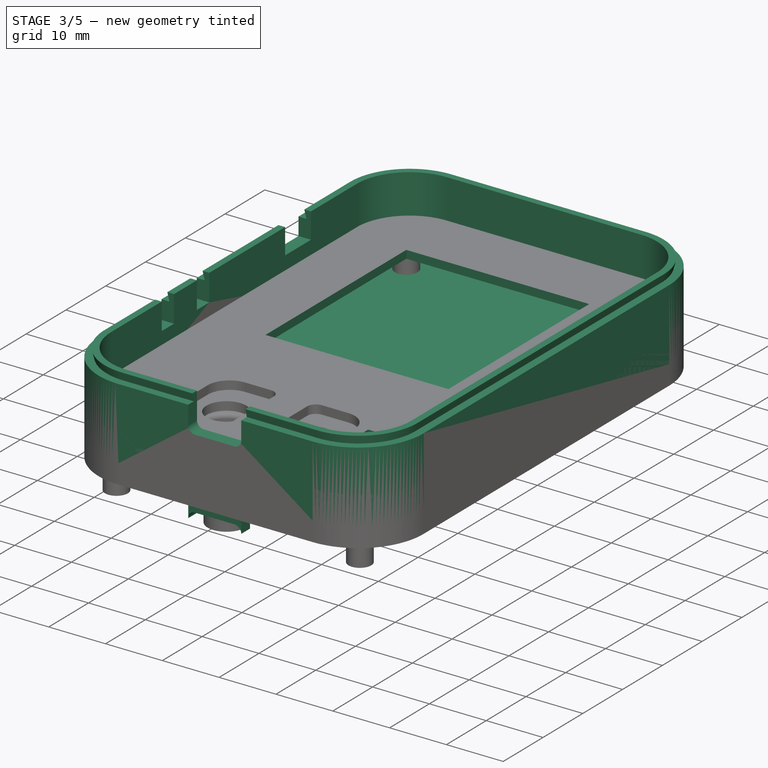
[diagram: stage 3 of 5 — iso view after this stage's code; geometry added in this stage tinted green]
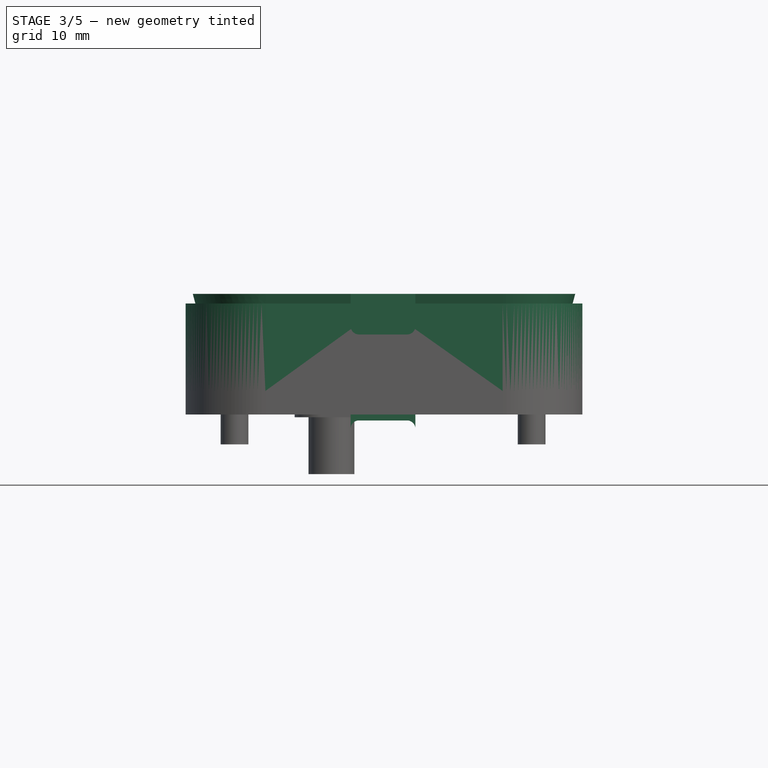
[diagram: stage 3 of 5 — front view after this stage's code; geometry added in this stage tinted green]
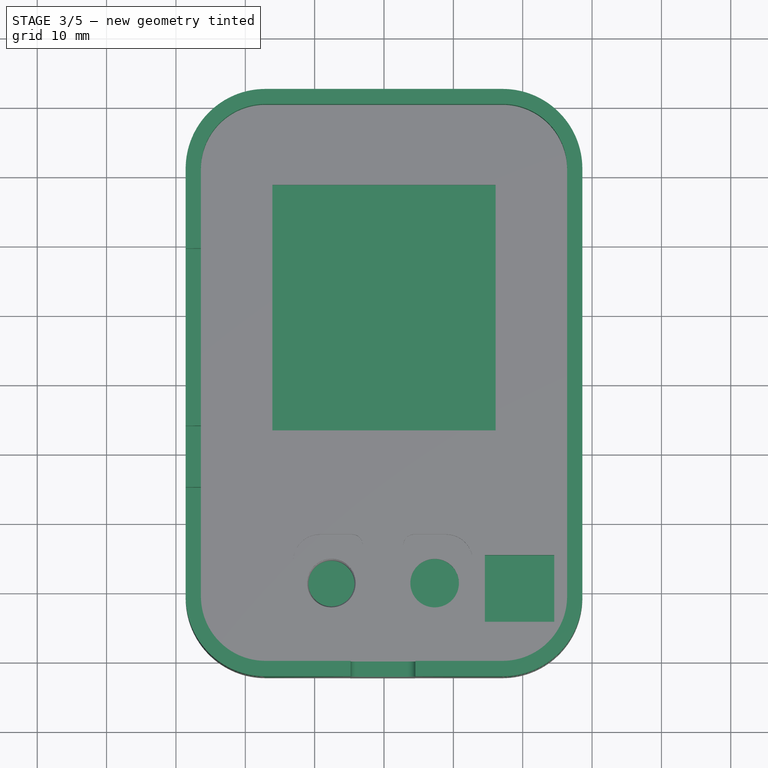
[diagram: stage 3 of 5 — top view after this stage's code; geometry added in this stage tinted green]
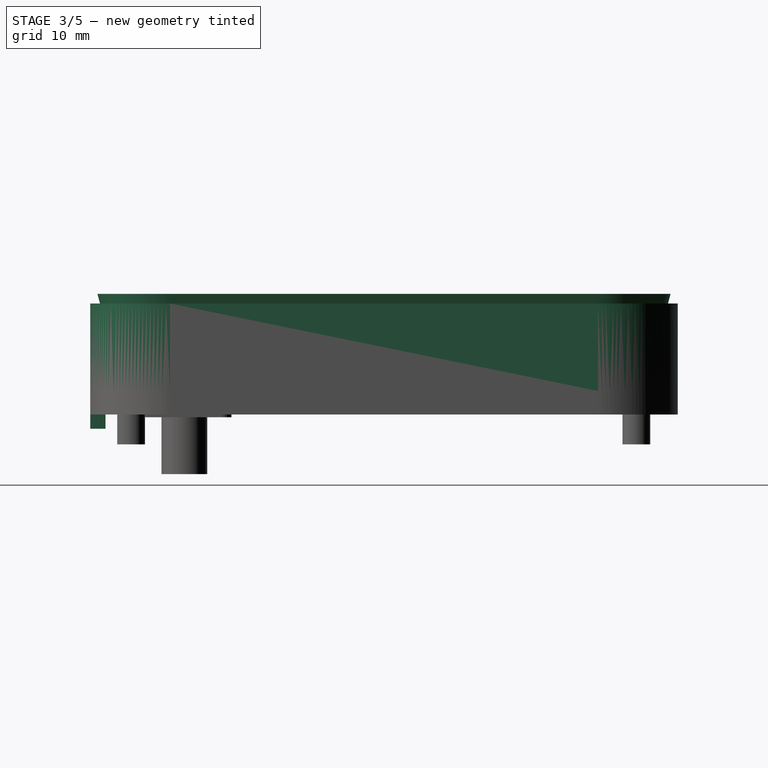
[diagram: stage 3 of 5 — right view after this stage's code; geometry added in this stage tinted green]
FEATURE [Sketcher::SketchObject] Sketch
  ArcFitTolerance = 1e-06
  AttachmentOffset = pos=(0,0,14.6) rot=(0,0,1;0rad)
  AttachmentSupport = -> [XY_Plane009]
  FullyConstrained = true
  MakeInternals = false
  MapMode = 5
  Placement = pos=(0,0,14.6) rot=(0,0,1;0rad)
  expr: .AttachmentOffset.Base.z = <<vars>>.bottom_height
  expr: Constraints[48] = <<vars>>.lip_thickness
  expr: Constraints[53] = <<vars>>.length
  expr: Constraints[54] = <<vars>>.width
  expr: Constraints[68] = <<vars>>.corner_rad
  expr: Constraints[81] = <<vars>>.wall_width
  expr: Constraints[82] = <<vars>>.wall_length
  sketch-geometry (36):
    g0: LineSegment StartX=-27.2 StartY=30.85 StartZ=0 EndX=-27.2 EndY=-30.85 EndZ=0
    g1: LineSegment StartX=-17.1 StartY=-40.95 StartZ=0 EndX=17.1 EndY=-40.95 EndZ=0
    g2: LineSegment StartX=27.2 StartY=-30.85 StartZ=0 EndX=27.2 EndY=30.85 EndZ=0
    g3: LineSegment StartX=17.1 StartY=40.95 StartZ=0 EndX=-17.1 EndY=40.95 EndZ=0
    g4: ArcOfCircle CenterX=17.1 CenterY=30.85 CenterZ=0 NormalX=0 NormalY=0 NormalZ=1 AngleXU=0 Radius=10.1 StartAngle=1e-16 EndAngle=1.5708
    g5: GeomPoint [constr] X=27.2 Y=40.95 Z=0
    g6: ArcOfCircle CenterX=17.1 CenterY=-30.85 CenterZ=0 NormalX=0 NormalY=0 NormalZ=1 AngleXU=0 Radius=10.1 StartAngle=4.71239 EndAngle=6.28319
    g7: GeomPoint [constr] X=27.2 Y=-40.95 Z=0
    g8: ArcOfCircle CenterX=-17.1 CenterY=-30.85 CenterZ=0 NormalX=0 NormalY=0 NormalZ=1 AngleXU=0 Radius=10.1 StartAngle=3.14159 EndAngle=4.71239
    g9: GeomPoint [constr] X=-27.2 Y=-40.95 Z=0
    g10: ArcOfCircle CenterX=-17.1 CenterY=30.85 CenterZ=0 NormalX=0 NormalY=0 NormalZ=1 AngleXU=0 Radius=10.1 StartAngle=1.5708 EndAngle=3.14159
    g11: GeomPoint [constr] X=-27.2 Y=40.95 Z=0
    g12: LineSegment StartX=-26.4 StartY=30.85 StartZ=0 EndX=-26.4 EndY=-30.85 EndZ=0
    g13: LineSegment StartX=-17.1 StartY=-40.15 StartZ=0 EndX=17.1 EndY=-40.15 EndZ=0
    g14: LineSegment StartX=26.4 StartY=-30.85 StartZ=0 EndX=26.4 EndY=30.85 EndZ=0
    g15: LineSegment StartX=17.1 StartY=40.15 StartZ=0 EndX=-17.1 EndY=40.15 EndZ=0
    g16: ArcOfCircle CenterX=17.1 CenterY=30.85 CenterZ=0 NormalX=0 NormalY=0 NormalZ=1 AngleXU=0 Radius=9.3 StartAngle=1e-16 EndAngle=1.5708
    g17: GeomPoint [constr] X=26.4 Y=40.15 Z=0
    g18: ArcOfCircle CenterX=-17.1 CenterY=30.85 CenterZ=0 NormalX=0 NormalY=0 NormalZ=1 AngleXU=0 Radius=9.3 StartAngle=1.5708 EndAngle=3.14159
    g19: GeomPoint [constr] X=-26.4 Y=40.15 Z=0
    g20: ArcOfCircle CenterX=-17.1 CenterY=-30.85 CenterZ=0 NormalX=0 NormalY=0 NormalZ=1 AngleXU=0 Radius=9.3 StartAngle=3.14159 EndAngle=4.71239
    g21: GeomPoint [constr] X=-26.4 Y=-40.15 Z=0
    g22: ArcOfCircle CenterX=17.1 CenterY=-30.85 CenterZ=0 NormalX=0 NormalY=0 NormalZ=1 AngleXU=0 Radius=9.3 StartAngle=4.71239 EndAngle=6.28319
    g23: GeomPoint [constr] X=26.4 Y=-40.15 Z=0
    g24: LineSegment [constr] StartX=-28.6 StartY=30.85 StartZ=0 EndX=-28.6 EndY=-30.85 EndZ=0
    g25: LineSegment [constr] StartX=-17.1 StartY=-42.35 StartZ=0 EndX=17.1 EndY=-42.35 EndZ=0
    g26: LineSegment [constr] StartX=28.6 StartY=-30.85 StartZ=0 EndX=28.6 EndY=30.85 EndZ=0
    g27: LineSegment [constr] StartX=17.1 StartY=42.35 StartZ=0 EndX=-17.1 EndY=42.35 EndZ=0
    g28: ArcOfCircle [constr] CenterX=17.1 CenterY=30.85 CenterZ=0 NormalX=0 NormalY=0 NormalZ=1 AngleXU=0 Radius=11.5 StartAngle=0 EndAngle=1.5708
    g29: GeomPoint [constr] X=28.6 Y=42.35 Z=0
    g30: ArcOfCircle [constr] CenterX=-17.1 CenterY=30.85 CenterZ=0 NormalX=0 NormalY=0 NormalZ=1 AngleXU=0 Radius=11.5 StartAngle=1.5708 EndAngle=3.14159
    g31: GeomPoint [constr] X=-28.6 Y=42.35 Z=0
    g32: ArcOfCircle [constr] CenterX=-17.1 CenterY=-30.85 CenterZ=0 NormalX=0 NormalY=0 NormalZ=1 AngleXU=0 Radius=11.5 StartAngle=3.14159 EndAngle=4.71239
    g33: GeomPoint [constr] X=-28.6 Y=-42.35 Z=0
    g34: ArcOfCircle [constr] CenterX=17.1 CenterY=-30.85 CenterZ=0 NormalX=0 NormalY=0 NormalZ=1 AngleXU=0 Radius=11.5 StartAngle=4.71239 EndAngle=6.28319
    g35: GeomPoint [constr] X=28.6 Y=-42.35 Z=0
  constraints (83):
    c: Vertical(g0)
    c: Vertical(g2)
    c: Horizontal(g1)
    c: Horizontal(g3)
    c: PointOnObject(g5,g2)
    c: PointOnObject(g5,g3)
    c: Tangent(g2,g4) = -1.5708
    c: Tangent(g3,g4) = -1.5708
    c: PointOnObject(g7,g1)
    c: PointOnObject(g7,g2)
    c: Tangent(g1,g6) = -1.5708
    c: Tangent(g2,g6) = -1.5708
    c: PointOnObject(g9,g0)
    c: PointOnObject(g9,g1)
    c: Tangent(g0,g8) = -1.5708
    c: Tangent(g1,g8) = -1.5708
    c: PointOnObject(g11,g0)
    c: PointOnObject(g11,g3)
    c: Tangent(g0,g10) = -1.5708
    c: Tangent(g3,g10) = -1.5708
    c: Equal(g4,g10)
    c: Equal(g8,g10)
    c: Equal(g6,g8)
    c: Vertical(g12)
    c: Vertical(g14)
    c: Horizontal(g13)
    c: Horizontal(g15)
    c: PointOnObject(g17,g15)
    c: PointOnObject(g17,g14)
    c: Tangent(g15,g16) = -1.5708
    c: Tangent(g14,g16) = -1.5708
    c: PointOnObject(g19,g12)
    c: PointOnObject(g19,g15)
    c: Tangent(g12,g18) = -1.5708
    c: Tangent(g15,g18) = -1.5708
    c: PointOnObject(g21,g12)
    c: PointOnObject(g21,g13)
    c: Tangent(g12,g20) = -1.5708
    c: Tangent(g13,g20) = -1.5708
    c: PointOnObject(g23,g13)
    c: PointOnObject(g23,g14)
    c: Tangent(g13,g22) = -1.5708
    c: Tangent(g14,g22) = -1.5708
    c: Vertical(g15,g3)
    c: Vertical(g13,g1)
    c: Horizontal(g14,g2)
    c: Vertical(g13,g1)
    c: Vertical(g15,g3)
    c: Distance(g14,g2) = 0.8
    c: Vertical(g24)
    c: Vertical(g26)
    c: Horizontal(g25)
    c: Horizontal(g27)
    c: DistanceY(g35,g29) = 84.7
    c: DistanceX(g31,g29) = 57.2
    c: Symmetric(g29,g33,g-1)
    c: PointOnObject(g29,g26)
    c: PointOnObject(g29,g27)
    c: Tangent(g26,g28) = -1.5708
    c: Tangent(g27,g28) = -1.5708
    c: PointOnObject(g31,g24)
    c: PointOnObject(g31,g27)
    c: Tangent(g24,g30) = -1.5708
    c: Tangent(g27,g30) = -1.5708
    c: PointOnObject(g33,g24)
    c: PointOnObject(g33,g25)
    c: Tangent(g24,g32) = -1.5708
    c: Tangent(g25,g32) = -1.5708
    c: Radius(g30) = 11.5
    c: Equal(g30,g28)
    c: PointOnObject(g35,g25)
    c: PointOnObject(g35,g26)
    c: Tangent(g25,g34) = -1.5708
    c: Tangent(g26,g34) = -1.5708
    c: Equal(g34,g32)
    c: Equal(g34,g28)
    c: Vertical(g27,g15)
    c: Horizontal(g0,g24)
    c: Horizontal(g12,g0)
    c: Vertical(g1,g25)
    c: Horizontal(g14,g2)
    c: DistanceX(g19,g17) = 52.8
    c: DistanceY(g23,g17) = 80.3
FEATURE [Sketcher::SketchObject] Sketch044
  ArcFitTolerance = 1e-06
  AttachmentSupport = -> [XY_Plane009]
  FullyConstrained = true
  MakeInternals = false
  MapMode = 5
  expr: Constraints[22] = <<vars>>.width
  expr: Constraints[23] = <<vars>>.length
  expr: Constraints[24] = <<vars>>.corner_rad
  sketch-geometry (11):
    g0: LineSegment StartX=-28.6 StartY=30.85 StartZ=0 EndX=-28.6 EndY=-30.85 EndZ=0
    g1: LineSegment StartX=-17.1 StartY=-42.35 StartZ=0 EndX=17.1 EndY=-42.35 EndZ=0
    g2: LineSegment StartX=28.6 StartY=-30.85 StartZ=0 EndX=28.6 EndY=30.85 EndZ=0
    g3: LineSegment StartX=17.1 StartY=42.35 StartZ=0 EndX=-17.1 EndY=42.35 EndZ=0
    g4: ArcOfCircle CenterX=-17.1 CenterY=30.85 CenterZ=0 NormalX=0 NormalY=0 NormalZ=1 AngleXU=0 Radius=11.5 StartAngle=1.5708 EndAngle=3.14159
    g5: ArcOfCircle CenterX=-17.1 CenterY=-30.85 CenterZ=0 NormalX=0 NormalY=0 NormalZ=1 AngleXU=0 Radius=11.5 StartAngle=3.14159 EndAngle=4.71239
    g6: ArcOfCircle CenterX=17.1 CenterY=-30.85 CenterZ=0 NormalX=0 NormalY=0 NormalZ=1 AngleXU=0 Radius=11.5 StartAngle=4.71239 EndAngle=6.28319
    g7: ArcOfCircle CenterX=17.1 CenterY=30.85 CenterZ=0 NormalX=0 NormalY=0 NormalZ=1 AngleXU=0 Radius=11.5 StartAngle=0 EndAngle=1.5708
    g8: GeomPoint [constr] X=-28.6 Y=42.35 Z=0
    g9: GeomPoint [constr] X=28.6 Y=-42.35 Z=0
    g10: GeomPoint [constr] X=28.6 Y=42.35 Z=0
  constraints (25):
    c: Tangent(g0,g4) = -1.5708
    c: Tangent(g0,g5) = -1.5708
    c: Tangent(g1,g5) = -1.5708
    c: Tangent(g1,g6) = -1.5708
    c: Tangent(g2,g6) = -1.5708
    c: Tangent(g2,g7) = -1.5708
    c: Tangent(g3,g7) = -1.5708
    c: Tangent(g3,g4) = -1.5708
    c: Vertical(g0)
    c: Vertical(g2)
    c: Horizontal(g1)
    c: Horizontal(g3)
    c: Equal(g4,g5)
    c: Equal(g5,g6)
    c: Equal(g6,g7)
    c: PointOnObject(g8,g0)
    c: PointOnObject(g8,g3)
    c: PointOnObject(g9,g1)
    c: PointOnObject(g9,g2)
    c: Symmetric(g7,g5,g-1)
    c: Vertical(g2,g10)
    c: Horizontal(g10,g3)
    c: DistanceX(g8,g10) = 57.2
    c: DistanceY(g9,g10) = 84.7
    c: Radius(g4) = 11.5
FEATURE [PartDesign::Pad] Pad021  label="base-pad"
  Direction = (0,0,1)
  Length = 14.6
  Length2 = 10
  Profile = -> Sketch044
  ReferenceAxis = -> Sketch044 [N_Axis]
  Refine = true
  Suppressed = false
  Type = 0
  expr: Length = <<vars>>.bottom_height
FEATURE [PartDesign::Fillet] Fillet005
  Base = -> Pad021 [Face9]
  BaseFeature = -> Pad021
  Radius = 2
  Refine = true
  SupportTransform = false
  Suppressed = false
  UseAllEdges = false
FEATURE [PartDesign::Pocket] Pocket020  label="hollow-pocket"
  BaseFeature = -> Fillet005
  Direction = (0,0,-1)
  Length = 12.95
  Length2 = 5
  Profile = -> Sketch045
  ReferenceAxis = -> Sketch045 [N_Axis]
  Refine = true
  Suppressed = false
  Type = 0
  UseCustomVector = true
  expr: Length = <<vars>>.bottom_depth
FEATURE [PartDesign::Pad] Pad  label="lip-angle"
  BaseFeature = -> Pocket020
  Direction = (0,0,1)
  Length = 1.4
  Length2 = 10
  Profile = -> Sketch
  ReferenceAxis = -> Sketch [N_Axis]
  Refine = true
  Suppressed = false
  TaperAngle = 14.85
  Type = 0
  expr: Length = <<vars>>.lip_height
  expr: TaperAngle = <<vars>>.lip_angle
FEATURE [PartDesign::Pad] Pad022  label="lip_flattening"
  BaseFeature = -> Pad
  Direction = (0,0,1)
  Length = 1.4
  Length2 = 10
  Profile = -> Sketch046
  ReferenceAxis = -> Sketch046 [N_Axis]
  Refine = true
  Suppressed = false
  Type = 0
  expr: Length = <<vars>>.lip_height
FEATURE [PartDesign::Pocket] Pocket  label="sw-pocket"
  BaseFeature = -> Pad022
  Direction = (-1,0,0)
  Length = 5
  Length2 = 5
  Profile = -> Sketch047
  ReferenceAxis = -> Sketch047 [N_Axis]
  Refine = true
  Reversed = true
  Suppressed = false
  Type = 0
FEATURE [PartDesign::Pocket] Pocket021  label="usb-pocket"
  BaseFeature = -> Pocket
  Direction = (0,1,-2e-16)
  Length = 5
  Length2 = 5
  Profile = -> Sketch048
  ReferenceAxis = -> Sketch048 [N_Axis]
  Refine = true
  Suppressed = false
  Type = 0
FEATURE [PartDesign::Pocket] Pocket032  label="screen-pocket"
  BaseFeature = -> Pocket042
  Direction = (0,0,-1)
  Length = 5
  Length2 = 5
  Profile = -> Sketch077
  ReferenceAxis = -> Sketch077 [N_Axis]
  Refine = true
  Suppressed = false
  Type = 0
FEATURE [PartDesign::Pocket] Pocket033  label="screen-outline-pocket"
  BaseFeature = -> Pocket032
  Direction = (0,0,-1)
  Length = 1.6
  Length2 = 5
  Profile = -> Sketch078
  ReferenceAxis = -> Sketch078 [N_Axis]
  Refine = true
  Reversed = true
  Suppressed = false
  Type = 0
  expr: Length = <<vars>>.digikey_carrier_height
FEATURE [PartDesign::Pocket] Pocket041  label="dev-version-pocket"
  BaseFeature = -> Pocket033
  Direction = (0,0,-1)
  Length = 20
  Length2 = 5
  Profile = -> Sketch094
  ReferenceAxis = -> Sketch094 [N_Axis]
  Refine = true
  Suppressed = false
  Type = 0
FEATURE [Part::Feature] trajectory_line
  shape: bbox 2e-07 x 2e-07 x 80 mm, 0 faces, 0 solids (baked)
FEATURE [App::DocumentObjectGroupPython] SimpleGroup  label="front-button-traj"  # scripted group (container) (typed FeaturePython)
  AnimationStepTime = 0
  AnimationSteps = 20
  Distance = 80
  Group = -> [trajectory_line]
  Revolutions = 0
  dir_vectors = (1) [(0,0,1)]
  rot_centers = (1) [(-7.9269,-28.79,0)]
  rot_vectors = (1) [(0,0,1)]
FEATURE [Part::Feature] trajectory_line001
  shape: bbox 2e-07 x 2e-07 x 70 mm, 0 faces, 0 solids (baked)
FEATURE [App::DocumentObjectGroupPython] SimpleGroup001  label="top-traj"  # scripted group (container) (typed FeaturePython)
  AnimationStepTime = 0
  AnimationSteps = 20
  Distance = 70
  Group = -> [trajectory_line001]
  Revolutions = 0
  dir_vectors = (1) [(0,0,1)]
  rot_centers = (1) [(-0.617372,-0.649606,9.1)]
  rot_vectors = (1) [(0,0,1)]
FEATURE [Part::Feature] trajectory_line002
  shape: bbox 2e-07 x 2e-07 x 10 mm, 0 faces, 0 solids (baked)
FEATURE [App::DocumentObjectGroupPython] SimpleGroup002  label="cap-traj"  # scripted group (container) (typed FeaturePython)
  AnimationStepTime = 0
  AnimationSteps = 20
  Distance = 10
  Group = -> [trajectory_line002]
  Revolutions = 0
  dir_vectors = (1) [(0,0,1)]
  rot_centers = (1) [(-7.58,-28.79,5.6)]
  rot_vectors = (1) [(0,0,1)]
FEATURE [Part::Feature] trajectory_line003
  shape: bbox 2e-07 x 2e-07 x 20 mm, 0 faces, 0 solids (baked)
FEATURE [App::DocumentObjectGroupPython] SimpleGroup003  label="bottom-traj"  # scripted group (container) (typed FeaturePython)
  AnimationStepTime = 0
  AnimationSteps = 20
  Distance = 20
  Group = -> [trajectory_line003]
  Revolutions = 0
  dir_vectors = (1) [(0,0,-1)]
  rot_centers = (1) [(0.00158593,0.000453102,0)]
  rot_vectors = (1) [(0,0,-1)]
FEATURE [Part::Feature] trajectory_line004
  shape: bbox 2e-07 x 2e-07 x 35 mm, 0 faces, 0 solids (baked)
FEATURE [App::DocumentObjectGroupPython] SimpleGroup004  label="screen-traj"  # scripted group (container) (typed FeaturePython)
  AnimationStepTime = 0
  AnimationSteps = 20
  Distance = 35
  Group = -> [trajectory_line004]
  Revolutions = 0
  dir_vectors = (1) [(0,0,1)]
  rot_centers = (1) [(2.56739e-16,-1.1,6)]
  rot_vectors = (1) [(0,0,1)]
FEATURE [Part::Feature] trajectory_line005
  shape: bbox 2e-07 x 2e-07 x 20 mm, 0 faces, 0 solids (baked)
FEATURE [App::DocumentObjectGroupPython] SimpleGroup005  label="platform-traj"  # scripted group (container) (typed FeaturePython)
  AnimationStepTime = 0
  AnimationSteps = 20
  Distance = 20
  Group = -> [trajectory_line005]
  Revolutions = 0
  dir_vectors = (1) [(0,0,1)]
  rot_centers = (1) [(2.64182,8.45128,0)]
  rot_vectors = (1) [(0,0,1)]
FEATURE [Part::Feature] trajectory_line006
  shape: bbox 20 x 2e-07 x 2e-07 mm, 0 faces, 0 solids (baked)
FEATURE [App::DocumentObjectGroupPython] SimpleGroup006  # scripted group (container) (typed FeaturePython)
  AnimationStepTime = 0
  AnimationSteps = 20
  Distance = 20
  Group = -> [trajectory_line006]
  Revolutions = 0
  dir_vectors = (1) [(-1,-8.62817e-32,-3.33067e-16)]
  rot_centers = (1) [(-1.5,-7.77,12.5725)]
  rot_vectors = (1) [(-1,-8.62817e-32,-3.33067e-16)]
FEATURE [App::DocumentObjectGroupPython] ExplodedAssembly  # scripted group (container) (typed FeaturePython)
  AnimationStep = 0
  CurrentTrajectory = 0
  Group = -> [SimpleGroup,SimpleGroup001,SimpleGroup002,SimpleGroup003,SimpleGroup004,SimpleGroup005,SimpleGroup006]
  InAnimation = false
  RemoveAllTrajectories = false
  ResetAnimation = false
FEATURE [Sketcher::SketchObject] Sketch097
  ArcFitTolerance = 1e-06
  AttachmentOffset = pos=(0,0,9.1) rot=(0,0,1;0rad)
  AttachmentSupport = -> [XY_Plane011]
  ExternalGeometry = -> [Pocket041]
  FullyConstrained = true
  MakeInternals = false
  MapMode = 5
  Placement = pos=(0,0,9.1) rot=(0,0,1;0rad)
  expr: .AttachmentOffset.Base.z = <<vars>>.top_height
  sketch-geometry (8):
    g0: LineSegment StartX=-26.4 StartY=30.85 StartZ=0 EndX=-26.4 EndY=-19.79 EndZ=0
    g1: LineSegment StartX=-26.4 StartY=-19.79 StartZ=0 EndX=26.4 EndY=-19.79 EndZ=0
    g2: LineSegment StartX=26.4 StartY=-19.79 StartZ=0 EndX=26.4 EndY=30.85 EndZ=0
    g3: LineSegment StartX=17.1 StartY=40.15 StartZ=0 EndX=-17.1 EndY=40.15 EndZ=0
    g4: ArcOfCircle CenterX=-17.1 CenterY=30.85 CenterZ=0 NormalX=0 NormalY=0 NormalZ=1 AngleXU=0 Radius=9.3 StartAngle=1.5708 EndAngle=3.14159
    g5: GeomPoint [constr] X=-26.4 Y=40.15 Z=0
    g6: ArcOfCircle CenterX=17.1 CenterY=30.85 CenterZ=0 NormalX=0 NormalY=0 NormalZ=1 AngleXU=0 Radius=9.3 StartAngle=0 EndAngle=1.5708
    g7: GeomPoint [constr] X=26.4 Y=40.15 Z=0
  constraints (17):
    c: Coincident(g0,g1)
    c: Coincident(g1,g2)
    c: Vertical(g0)
    c: Vertical(g2)
    c: Horizontal(g1)
    c: Distance(g1,g-3) = 2
    c: PointOnObject(g5,g0)
    c: PointOnObject(g5,g3)
    c: Tangent(g0,g4) = -1.5708
    c: Tangent(g3,g4) = -1.5708
    c: PointOnObject(g7,g2)
    c: PointOnObject(g7,g3)
    c: Tangent(g2,g6) = -1.5708
    c: Tangent(g3,g6) = -1.5708
    c: Coincident(g3,g-4)
    c: Coincident(g-4,g0)
    c: Coincident(g2,g-5)
FEATURE [Sketcher::SketchObject] Sketch098
  ArcFitTolerance = 1e-06
  AttachmentOffset = pos=(0,0,-26.4) rot=(0,0,1;0rad)
  AttachmentSupport = -> [YZ_Plane009]
  ExternalGeometry = -> [Binder]
  FullyConstrained = true
  MakeInternals = false
  MapMode = 5
  Placement = pos=(-26.4,0,0) rot=(0.57735,0.57735,0.57735;2.0944rad)
  expr: .AttachmentOffset.Base.z = -<<vars>>.wall_width / 2
  expr: Constraints[24] = <<vars>>.lip_height
  expr: Constraints[8] = <<vars>>.side_button_paddle_length
  sketch-geometry (24):
    g0: GeomPoint [constr] X=-7.77 Y=12.745 Z=0
    g1: GeomPoint [constr] X=-6.37 Y=12.095 Z=0
    g2: GeomPoint [constr] X=-7.77 Y=12.095 Z=0
    g3: LineSegment StartX=-4.32 StartY=9.59 StartZ=0 EndX=-4.32 EndY=14.6 EndZ=0
    g4: LineSegment StartX=-11.22 StartY=14.6 StartZ=0 EndX=-11.22 EndY=9.59 EndZ=0
    g5: GeomPoint [constr] X=-7.77 Y=12.095 Z=0
    g6: GeomPoint [constr] X=-16.63 Y=12.745 Z=0
    g7: GeomPoint [constr] X=-15.23 Y=12.095 Z=0
    g8: GeomPoint [constr] X=-16.63 Y=12.095 Z=0
    g9: LineSegment StartX=-13.18 StartY=9.59 StartZ=0 EndX=-13.18 EndY=14.6 EndZ=0
    g10: LineSegment StartX=-20.08 StartY=14.6 StartZ=0 EndX=-20.08 EndY=9.59 EndZ=0
    g11: GeomPoint [constr] X=-16.63 Y=12.095 Z=0
    g12: LineSegment StartX=-4.32 StartY=14.6 StartZ=0 EndX=-4.32 EndY=16 EndZ=0
    g13: LineSegment StartX=-4.32 StartY=16 StartZ=0 EndX=-11.22 EndY=16 EndZ=0
    g14: LineSegment StartX=-11.22 StartY=16 StartZ=0 EndX=-11.22 EndY=14.6 EndZ=0
    g15: LineSegment StartX=-4.32 StartY=9.59 StartZ=0 EndX=-4.32 EndY=9.09 EndZ=0
    g16: LineSegment StartX=-4.32 StartY=9.09 StartZ=0 EndX=-11.22 EndY=9.09 EndZ=0
    g17: LineSegment StartX=-11.22 StartY=9.09 StartZ=0 EndX=-11.22 EndY=9.59 EndZ=0
    g18: LineSegment StartX=-13.18 StartY=14.6 StartZ=0 EndX=-13.18 EndY=16 EndZ=0
    g19: LineSegment StartX=-13.18 StartY=16 StartZ=0 EndX=-20.08 EndY=16 EndZ=0
    g20: LineSegment StartX=-20.08 StartY=16 StartZ=0 EndX=-20.08 EndY=14.6 EndZ=0
    g21: LineSegment StartX=-20.08 StartY=9.59 StartZ=0 EndX=-20.08 EndY=9.09 EndZ=0
    g22: LineSegment StartX=-13.18 StartY=9.59 StartZ=0 EndX=-13.18 EndY=9.09 EndZ=0
    g23: LineSegment StartX=-13.18 StartY=9.09 StartZ=0 EndX=-20.08 EndY=9.09 EndZ=0
  constraints (56):
    c: Symmetric(g-4,g-4,g0)
    c: Symmetric(g-3,g-3,g1)
    c: Vertical(g2,g0)
    c: Horizontal(g1,g2)
    c: Vertical(g3)
    c: Vertical(g4)
    c: Symmetric(g3,g4,g5)
    c: Coincident(g5,g2)
    c: DistanceY(g4,g4) = 5.01
    c: Symmetric(g-5,g-5,g6)
    c: Symmetric(g-6,g-6,g7)
    c: Vertical(g6,g8)
    c: Horizontal(g7,g8)
    c: Vertical(g9)
    c: Vertical(g10)
    c: Symmetric(g9,g10,g11)
    c: Coincident(g11,g8)
    c: Equal(g9,g4)
    c: Coincident(g12,g3)
    c: Vertical(g12)
    c: Coincident(g13,g12)
    c: Horizontal(g13)
    c: Coincident(g14,g13)
    c: Vertical(g14)
    c: DistanceY(g12,g12) = 1.4
    c: DistanceX(g13,g13) = 6.9
    c: Coincident(g14,g4)
    c: Equal(g14,g12)
    c: Distance(g15) = 0.5
    c: Vertical(g15)
    c: Coincident(g16,g15)
    c: Horizontal(g16)
    c: Coincident(g17,g16)
    c: Vertical(g17)
    c: Coincident(g4,g17)
    c: Coincident(g3,g15)
    c: Equal(g3,g4)
    c: Coincident(g18,g9)
    c: Vertical(g18)
    c: Coincident(g19,g18)
    c: Horizontal(g19)
    c: Coincident(g20,g19)
    c: Coincident(g23,g22)
    c: Coincident(g23,g21)
    c: Horizontal(g23)
    c: Vertical(g22)
    c: Equal(g22,g15)
    c: Vertical(g20)
    c: Equal(g18,g12)
    c: Equal(g19,g13)
    c: Vertical(g21)
    c: Coincident(g10,g20)
    c: Coincident(g10,g21)
    c: Coincident(g9,g22)
    c: Equal(g10,g9)
    c: Equal(g20,g18)
FEATURE [Sketcher::SketchObject] Sketch099
  ArcFitTolerance = 1e-06
  AttachmentOffset = pos=(0,0,40.15) rot=(0,0,1;0rad)
  AttachmentSupport = -> [XZ_Plane009]
  ExternalGeometry = -> [Binder]
  FullyConstrained = true
  MakeInternals = false
  MapMode = 5
  Placement = pos=(0,-40.15,8.9e-15) rot=(1,0,0;1.5708rad)
  expr: .AttachmentOffset.Base.z = <<vars>>.wall_length / 2
  expr: Constraints[3] = <<vars>>.bottom_depth / 2
  sketch-geometry (4):
    g0: LineSegment StartX=-4.81 StartY=12.545 StartZ=0 EndX=-4.81 EndY=19.02 EndZ=0
    g1: LineSegment StartX=-4.81 StartY=19.02 StartZ=0 EndX=4.53 EndY=19.02 EndZ=0
    g2: LineSegment StartX=4.53 StartY=12.545 StartZ=0 EndX=4.53 EndY=19.02 EndZ=0
    g3: LineSegment StartX=4.53 StartY=12.545 StartZ=0 EndX=-4.81 EndY=12.545 EndZ=0
  constraints (12):
    c: Vertical(g0)
    c: Horizontal(g0,g-4)
    c: DistanceX(g0,g-4) = 0.2
    c: DistanceY(g0,g0) = 6.475
    c: Coincident(g1,g0)
    c: Horizontal(g1)
    c: Vertical(g2)
    c: Coincident(g1,g2)
    c: Horizontal(g2,g-5)
    c: Distance(g-5,g2) = 0.2
    c: Coincident(g3,g2)
    c: Coincident(g3,g0)
FEATURE [PartDesign::Pocket] Pocket044  label="usb-notch"
  BaseFeature = -> Pocket021
  Direction = (0,1,-2e-16)
  Length = 5
  Length2 = 5
  Profile = -> Sketch099
  ReferenceAxis = -> Sketch099 [N_Axis]
  Refine = true
  Reversed = true
  Suppressed = false
  Type = 0
FEATURE [PartDesign::Body] Body007  label="bottom"
  AllowCompound = false
  Group = -> [Sketch044,Pad021,Fillet005,Sketch045,Pocket020,Sketch,Pad,Sketch046,Pad022,Binder,Sketch047,Pocket,Sketch048,Pocket021,Pocket044,Sketch049,Pocket022,Sketch050,Pad023,Hole001,Sketch051,Pocket040,Pocket043,Sketch091,Sketch052,Pocket024,Sketch098,Sketch099]
  Origin = -> Origin009
  Tip = -> Pocket024
FEATURE [Sketcher::SketchObject] Sketch100
  ArcFitTolerance = 1e-06
  AttachmentOffset = pos=(0,0,42.35) rot=(0,0,1;0rad)
  AttachmentSupport = -> [XZ_Plane011]
  ExternalGeometry = -> [Binder001]
  FullyConstrained = true
  MakeInternals = false
  MapMode = 5
  Placement = pos=(0,-42.35,9.4e-15) rot=(1,0,0;1.5708rad)
  expr: .AttachmentOffset.Base.z = <<vars>>.length / 2
  sketch-geometry (6):
    g0: ArcOfCircle CenterX=-3.61 CenterY=-3.455 CenterZ=0 NormalX=0 NormalY=0 NormalZ=1 AngleXU=0 Radius=1.2 StartAngle=1.5708 EndAngle=3.14159
    g1: LineSegment StartX=-3.61 StartY=-2.255 StartZ=0 EndX=3.33 EndY=-2.255 EndZ=0
    g2: ArcOfCircle CenterX=3.33 CenterY=-3.455 CenterZ=0 NormalX=0 NormalY=0 NormalZ=1 AngleXU=0 Radius=1.2 StartAngle=1e-16 EndAngle=1.5708
    g3: LineSegment StartX=4.53 StartY=-3.455 StartZ=0 EndX=4.53 EndY=0.545 EndZ=0
    g4: LineSegment StartX=4.53 StartY=0.545 StartZ=0 EndX=-4.81 EndY=0.545 EndZ=0
    g5: LineSegment StartX=-4.81 StartY=-3.455 StartZ=0 EndX=-4.81 EndY=0.545 EndZ=0
  constraints (18):
    c: Coincident(g0,g-4)
    c: Horizontal(g-4,g0)
    c: Distance(g0,g-4) = 0.2
    c: Vertical(g0,g-4)
    c: Coincident(g1,g0)
    c: Horizontal(g1)
    c: Coincident(g2,g-5)
    c: Coincident(g2,g1)
    c: Horizontal(g2,g-5)
    c: Vertical(g1,g-5)
    c: Coincident(g3,g2)
    c: Vertical(g3)
    c: DistanceY(g3,g3) = 4
    c: Coincident(g4,g3)
    c: Horizontal(g4)
    c: Coincident(g5,g0)
    c: Vertical(g5)
    c: Coincident(g4,g5)
FEATURE [PartDesign::Pad] Pad050  label="usb-tooth"
  BaseFeature = -> Pocket041
  Direction = (0,-1,2e-16)
  Length = 2.2
  Length2 = 10
  Profile = -> Sketch100
  ReferenceAxis = -> Sketch100 [N_Axis]
  Refine = true
  Reversed = true
  Suppressed = false
  Type = 0
  expr: Length = <<vars>>.thickness
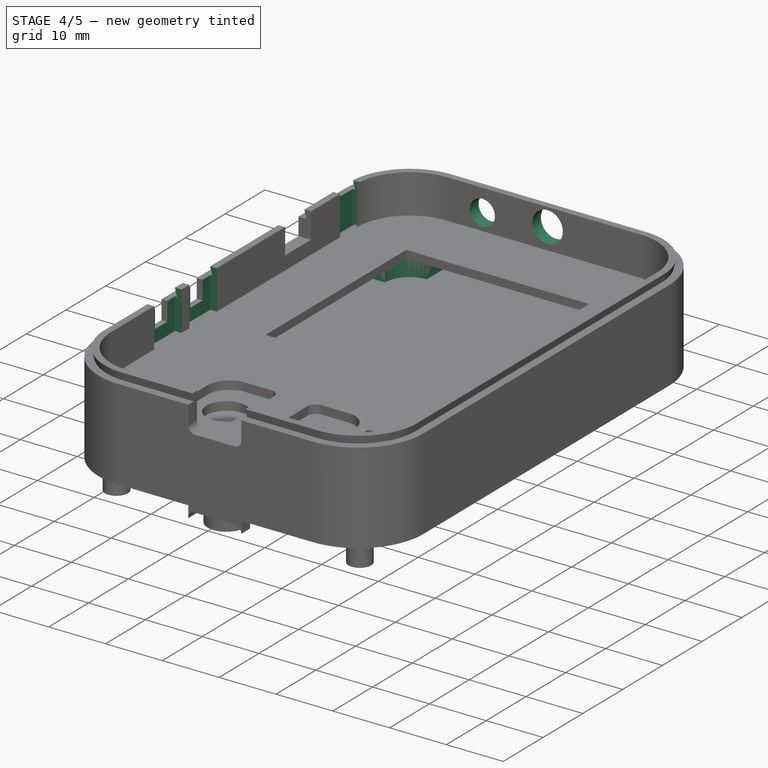
[diagram: stage 4 of 5 — iso view after this stage's code; geometry added in this stage tinted green]
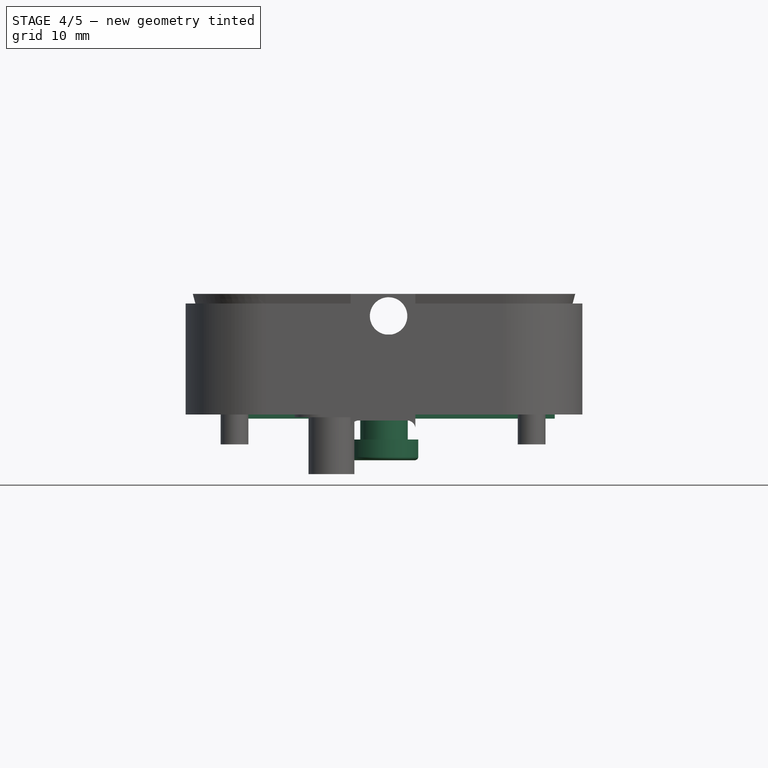
[diagram: stage 4 of 5 — front view after this stage's code; geometry added in this stage tinted green]
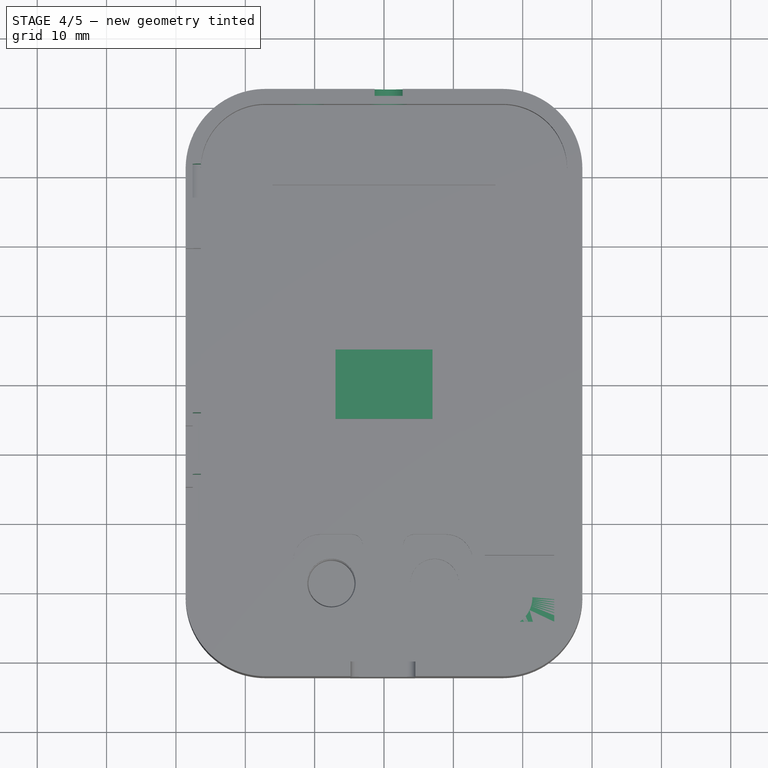
[diagram: stage 4 of 5 — top view after this stage's code; geometry added in this stage tinted green]
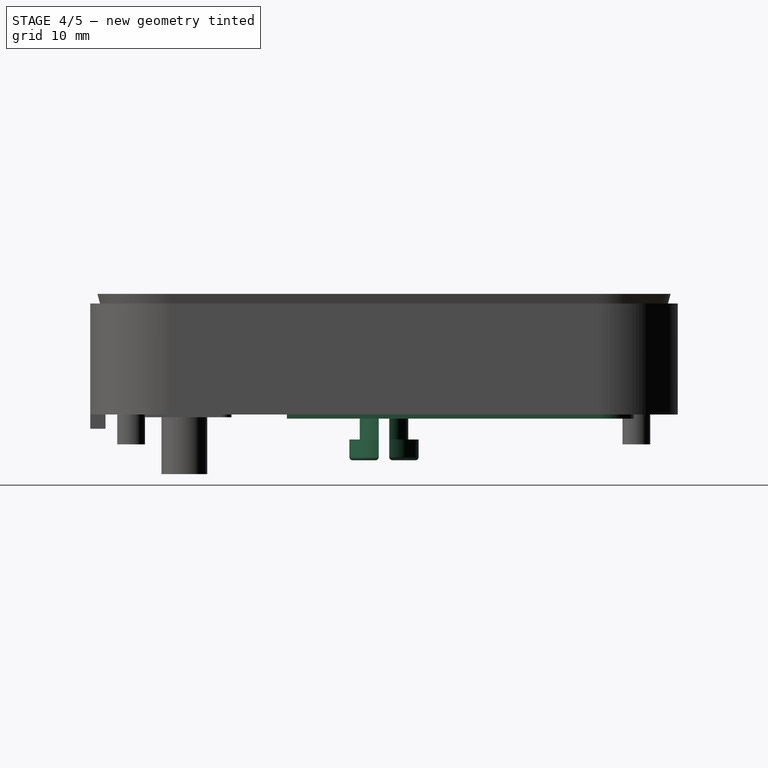
[diagram: stage 4 of 5 — right view after this stage's code; geometry added in this stage tinted green]
FEATURE [PartDesign::Body] Body011  label="digikey-screen"
  AllowCompound = false
  Group = -> [Sketch073,Pad037,Sketch074,Pad038,Sketch075,Pad039,Sketch076,Pad040]
  Origin = -> Origin015
  Placement = pos=(0,12,19.1) rot=(0,0,1;0rad)
  Tip = -> Pad040
  expr: .Placement.Base.z = <<vars>>.total_height - <<vars>>.digikey_total_height
FEATURE [PartDesign::SubShapeBinder] Binder007  label="screen-binder001"
  BindCopyOnChange = 0
  BindMode = 0
  ClaimChildren = false
  Context = -> Body [Binder007.]
  Fuse = false
  MakeFace = true
  OffsetFill = false
  OffsetIntersection = false
  OffsetJoinType = 0
  OffsetOpenResult = false
  PartialLoad = false
  Refine = true
  Relative = true
  Support = -> [Body011]
  _Version = 2
FEATURE [Sketcher::SketchObject] Sketch077
  ArcFitTolerance = 1e-06
  AttachmentOffset = pos=(0,0,9.1) rot=(0,0,1;0rad)
  AttachmentSupport = -> [XY_Plane011]
  ExternalGeometry = -> [Binder007]
  FullyConstrained = true
  MakeInternals = false
  MapMode = 5
  Placement = pos=(0,0,9.1) rot=(0,0,1;0rad)
  expr: .AttachmentOffset.Base.z = <<vars>>.top_height + 100 mm * <<vars>>.version_screenless
  sketch-geometry (4):
    g0: LineSegment StartX=-16.1 StartY=28.6 StartZ=0 EndX=-16.1 EndY=-6.8 EndZ=0
    g1: LineSegment StartX=-16.1 StartY=-6.8 StartZ=0 EndX=16.1 EndY=-6.8 EndZ=0
    g2: LineSegment StartX=16.1 StartY=-6.8 StartZ=0 EndX=16.1 EndY=28.6 EndZ=0
    g3: LineSegment StartX=16.1 StartY=28.6 StartZ=0 EndX=-16.1 EndY=28.6 EndZ=0
  constraints (12):
    c: Coincident(g0,g1)
    c: Coincident(g1,g2)
    c: Coincident(g2,g3)
    c: Coincident(g3,g0)
    c: Vertical(g0)
    c: Vertical(g2)
    c: Horizontal(g1)
    c: Horizontal(g3)
    c: Distance(g-3,g2) = 0.1
    c: Distance(g-3,g0) = 0.1
    c: Distance(g-3,g3) = 0.1
    c: Distance(g-4,g1) = 0.1
FEATURE [Sketcher::SketchObject] Sketch078
  ArcFitTolerance = 1e-06
  AttachmentOffset = pos=(0,0,6.1) rot=(0,0,1;0rad)
  AttachmentSupport = -> [XY_Plane011]
  ExternalGeometry = -> [Binder007]
  FullyConstrained = true
  MakeInternals = false
  MapMode = 5
  Placement = pos=(0,0,6.1) rot=(0,0,1;0rad)
  expr: .AttachmentOffset.Base.z = <<vars>>.top_depth + 100 mm * <<vars>>.version_screenless
  expr: Constraints[8] = <<vars>>.digikey_carrier_length + 0.4 mm
  expr: Constraints[9] = <<vars>>.digikey_carrier_width + <<vars>>.digikey_carrier_screw_pad_len * 2 + 0.4 mm
  sketch-geometry (4):
    g0: LineSegment StartX=-21.35 StartY=34.2 StartZ=0 EndX=-21.35 EndY=-10.2 EndZ=0
    g1: LineSegment StartX=-21.35 StartY=-10.2 StartZ=0 EndX=21.35 EndY=-10.2 EndZ=0
    g2: LineSegment StartX=21.35 StartY=-10.2 StartZ=0 EndX=21.35 EndY=34.2 EndZ=0
    g3: LineSegment StartX=21.35 StartY=34.2 StartZ=0 EndX=-21.35 EndY=34.2 EndZ=0
  constraints (12):
    c: Coincident(g0,g1)
    c: Coincident(g1,g2)
    c: Coincident(g2,g3)
    c: Coincident(g3,g0)
    c: Vertical(g0)
    c: Vertical(g2)
    c: Horizontal(g1)
    c: Horizontal(g3)
    c: DistanceY(g2,g2) = 44.4
    c: DistanceX(g3,g3) = 42.7
    c: Distance(g-5,g3) = 0.2
    c: Distance(g-7,g0) = 0.2
FEATURE [PartDesign::SubShapeBinder] Binder008  label="screen-binder"
  BindCopyOnChange = 0
  BindMode = 0
  ClaimChildren = false
  Context = -> Body010 [Binder008.]
  Fuse = false
  MakeFace = true
  OffsetFill = false
  OffsetIntersection = false
  OffsetJoinType = 0
  OffsetOpenResult = false
  PartialLoad = false
  Refine = true
  Relative = true
  Support = -> [Body011]
  _Version = 2
FEATURE [Sketcher::SketchObject] Sketch071
  ArcFitTolerance = 1e-06
  AttachmentSupport = -> [XY_Plane014]
  ExternalGeometry = -> [Binder008]
  FullyConstrained = true
  MakeInternals = false
  MapMode = 5
  expr: Constraints[7] = <<vars>>.platform_length
  sketch-geometry (6):
    g0: LineSegment StartX=-21.15 StartY=36 StartZ=0 EndX=-21.15 EndY=-14 EndZ=0
    g1: LineSegment StartX=-21.15 StartY=-14 StartZ=0 EndX=24.625 EndY=-14 EndZ=0
    g2: LineSegment StartX=24.625 StartY=-14 StartZ=0 EndX=24.625 EndY=31 EndZ=0
    g3: LineSegment StartX=19.625 StartY=36 StartZ=0 EndX=-21.15 EndY=36 EndZ=0
    g4: ArcOfCircle CenterX=19.625 CenterY=31 CenterZ=0 NormalX=0 NormalY=0 NormalZ=1 AngleXU=0 Radius=5 StartAngle=3e-16 EndAngle=1.5708
    g5: GeomPoint [constr] X=24.625 Y=36 Z=0
  constraints (16):
    c: Coincident(g0,g1)
    c: Coincident(g1,g2)
    c: Coincident(g3,g0)
    c: Vertical(g0)
    c: Vertical(g2)
    c: Horizontal(g1)
    c: Horizontal(g3)
    c: DistanceY(g2,g5) = 50
    c: Distance(g-4,g3) = 2
    c: PointOnObject(g-4,g0)
    c: PointOnObject(g5,g2)
    c: PointOnObject(g5,g3)
    c: Tangent(g2,g4) = -1.5708
    c: Tangent(g3,g4) = -1.5708
    c: Radius(g4) = 5
    c: Distance(g-3,g2) = 6
FEATURE [PartDesign::Pad] Pad035  label="base-pad002"
  Direction = (0,0,1)
  Length = 2
  Length2 = 10
  Profile = -> Sketch071
  ReferenceAxis = -> Sketch071 [N_Axis]
  Refine = true
  Reversed = true
  Suppressed = false
  Type = 0
  expr: Length = <<vars>>.platform_base
FEATURE [Sketcher::SketchObject] Sketch079
  ArcFitTolerance = 1e-06
  AttachmentSupport = -> [Pad035]
  ExternalGeometry = -> [Binder008]
  FullyConstrained = true
  MakeInternals = false
  MapMode = 5
  sketch-geometry (8):
    g0: LineSegment StartX=-16 StartY=34 StartZ=0 EndX=-16 EndY=-10 EndZ=0
    g1: LineSegment StartX=-16 StartY=-10 StartZ=0 EndX=16 EndY=-10 EndZ=0
    g2: LineSegment StartX=16 StartY=34 StartZ=0 EndX=-16 EndY=34 EndZ=0
    g3: LineSegment StartX=16 StartY=34 StartZ=0 EndX=16 EndY=26.95 EndZ=0
    g4: LineSegment StartX=16 StartY=26.95 StartZ=0 EndX=20.5 EndY=26.95 EndZ=0
    g5: LineSegment StartX=20.5 StartY=26.95 StartZ=0 EndX=20.5 EndY=11.95 EndZ=0
    g6: LineSegment StartX=20.5 StartY=11.95 StartZ=0 EndX=16 EndY=11.95 EndZ=0
    g7: LineSegment StartX=16 StartY=11.95 StartZ=0 EndX=16 EndY=-10 EndZ=0
  constraints (24):
    c: Coincident(g0,g1)
    c: Coincident(g2,g0)
    c: Vertical(g0)
    c: Horizontal(g1)
    c: Horizontal(g2)
    c: PointOnObject(g0,g-4)
    c: PointOnObject(g1,g-7)
    c: PointOnObject(g-6,g0)
    c: Vertical(g3)
    c: Coincident(g3,g2)
    c: PointOnObject(g-5,g3)
    c: DistanceY(g3,g-5) = 2
    c: Distance(g4) = 4.5
    c: Coincident(g4,g3)
    c: Horizontal(g4)
    c: Distance(g5) = 15
    c: Coincident(g5,g4)
    c: Vertical(g5)
    c: Coincident(g6,g5)
    c: Horizontal(g6)
    c: Coincident(g7,g6)
    c: Coincident(g7,g1)
    c: Vertical(g7)
    c: PointOnObject(g-8,g7)
FEATURE [PartDesign::Pocket] Pocket034
  BaseFeature = -> Pad035
  Direction = (0,0,-1)
  Length = 5
  Length2 = 5
  Profile = -> Sketch079
  ReferenceAxis = -> Sketch079 [N_Axis]
  Refine = true
  Suppressed = false
  Type = 0
FEATURE [Sketcher::SketchObject] Sketch080
  ArcFitTolerance = 1e-06
  AttachmentSupport = -> [Pocket034]
  ExternalGeometry = -> [Binder008]
  FullyConstrained = true
  MakeInternals = false
  MapMode = 5
  sketch-geometry (4):
    g0: Circle CenterX=-18.625 CenterY=31.475 CenterZ=0 NormalX=0 NormalY=0 NormalZ=1 AngleXU=0 Radius=0.95
    g1: Circle CenterX=18.625 CenterY=31.475 CenterZ=0 NormalX=0 NormalY=0 NormalZ=1 AngleXU=0 Radius=0.95
    g2: Circle CenterX=18.625 CenterY=-7.475 CenterZ=0 NormalX=0 NormalY=0 NormalZ=1 AngleXU=0 Radius=0.95
    g3: Circle CenterX=-18.625 CenterY=-7.475 CenterZ=0 NormalX=0 NormalY=0 NormalZ=1 AngleXU=0 Radius=0.95
  constraints (8):
    c: Diameter(g0) = 1.9
    c: Coincident(g0,g-6)
    c: Coincident(g1,g-3)
    c: Coincident(g2,g-4)
    c: Coincident(g3,g-5)
    c: Equal(g0,g1)
    c: Equal(g1,g2)
    c: Equal(g2,g3)
FEATURE [PartDesign::Pocket] Pocket035
  BaseFeature = -> Pocket034
  Direction = (0,0,-1)
  Length = 5
  Length2 = 5
  Profile = -> Sketch080
  ReferenceAxis = -> Sketch080 [N_Axis]
  Refine = true
  Suppressed = false
  Type = 0
FEATURE [PartDesign::Body] Body010  label="screen-platform"
  AllowCompound = false
  Group = -> [Binder004,Binder005,Binder008,Sketch071,Pad035,Sketch079,Pocket034,Sketch080,Pocket035,Sketch081,Pad041,Sketch082,Hole,Sketch086,Pocket036]
  Origin = -> Origin014
  Placement = pos=(0,0,19.1) rot=(0,0,1;0rad)
  Tip = -> Pocket036
  expr: .Placement.Base.z = <<vars>>.total_height - <<vars>>.digikey_total_height
FEATURE [Sketcher::SketchObject] Sketch087
  ArcFitTolerance = 1e-06
  AttachmentSupport = -> [XY_Plane017]
  FullyConstrained = true
  MakeInternals = false
  MapMode = 5
  expr: Constraints[8] = <<vars>>.front_button_width
  expr: Constraints[9] = <<vars>>.front_button_length
  sketch-geometry (4):
    g0: LineSegment StartX=-7 StartY=5 StartZ=0 EndX=-7 EndY=-5 EndZ=0
    g1: LineSegment StartX=-7 StartY=-5 StartZ=0 EndX=7 EndY=-5 EndZ=0
    g2: LineSegment StartX=7 StartY=-5 StartZ=0 EndX=7 EndY=5 EndZ=0
    g3: LineSegment StartX=7 StartY=5 StartZ=0 EndX=-7 EndY=5 EndZ=0
  constraints (11):
    c: Coincident(g0,g1)
    c: Coincident(g1,g2)
    c: Coincident(g2,g3)
    c: Coincident(g3,g0)
    c: Vertical(g0)
    c: Vertical(g2)
    c: Horizontal(g1)
    c: Horizontal(g3)
    c: DistanceX(g3,g3) = 14
    c: DistanceY(g2,g2) = 10
    c: Symmetric(g2,g0,g-1)
FEATURE [PartDesign::Pad] Pad045
  Direction = (0,0,1)
  Length = 2
  Length2 = 10
  Profile = -> Sketch087
  ReferenceAxis = -> Sketch087 [N_Axis]
  Refine = true
  Suppressed = false
  Type = 0
FEATURE [Sketcher::SketchObject] Sketch088
  ArcFitTolerance = 1e-06
  AttachmentSupport = -> [Pad045]
  FullyConstrained = true
  MakeInternals = false
  MapMode = 5
  Placement = pos=(0,0,0) rot=(1,0,0;3.14159rad)
  sketch-geometry (1):
    g0: Circle CenterX=0 CenterY=0 CenterZ=0 NormalX=0 NormalY=0 NormalZ=1 AngleXU=0 Radius=3.5
  constraints (2):
    c: Diameter(g0) = 7
    c: Coincident(g0,g-1)
FEATURE [PartDesign::Pad] Pad046
  BaseFeature = -> Pad045
  Direction = (0,0,-1)
  Length = 5
  Length2 = 10
  Profile = -> Sketch088
  ReferenceAxis = -> Sketch088 [N_Axis]
  Refine = true
  Suppressed = false
  Type = 0
FEATURE [Sketcher::SketchObject] Sketch089
  ArcFitTolerance = 1e-06
  AttachmentSupport = -> [Pad046]
  FullyConstrained = true
  MakeInternals = false
  MapMode = 5
  Placement = pos=(0,0,-5) rot=(1,0,0;3.14159rad)
  sketch-geometry (1):
    g0: Circle CenterX=0 CenterY=0 CenterZ=0 NormalX=0 NormalY=0 NormalZ=1 AngleXU=0 Radius=5
  constraints (2):
    c: Diameter(g0) = 10
    c: Coincident(g0,g-1)
FEATURE [PartDesign::Pad] Pad047
  BaseFeature = -> Pad046
  Direction = (0,0,-1)
  Length = 3
  Length2 = 10
  Profile = -> Sketch089
  ReferenceAxis = -> Sketch089 [N_Axis]
  Refine = true
  Suppressed = false
  Type = 0
FEATURE [Sketcher::SketchObject] Sketch090
  ArcFitTolerance = 1e-06
  AttachmentSupport = -> [Pad047]
  ExternalGeometry = -> [Pad047]
  FullyConstrained = true
  MakeInternals = false
  MapMode = 5
  Placement = pos=(-7,0,0) rot=(0.57735,-0.57735,-0.57735;2.0944rad)
  sketch-geometry (6):
    g0: LineSegment StartX=-0.75 StartY=-2 StartZ=0 EndX=-0.75 EndY=-8 EndZ=0
    g1: LineSegment StartX=-0.75 StartY=-8 StartZ=0 EndX=0.75 EndY=-8 EndZ=0
    g2: LineSegment StartX=0.75 StartY=-8 StartZ=0 EndX=0.75 EndY=-2 EndZ=0
    g3: GeomPoint [constr] X=0 Y=-2 Z=0
    g4: LineSegment StartX=-0.75 StartY=-2 StartZ=0 EndX=0 EndY=-1.47484 EndZ=0
    g5: LineSegment StartX=0 StartY=-1.47484 StartZ=0 EndX=0.75 EndY=-2 EndZ=0
  constraints (16):
    c: Coincident(g0,g1)
    c: Coincident(g1,g2)
    c: Vertical(g0)
    c: Vertical(g2)
    c: Horizontal(g1)
    c: PointOnObject(g1,g-4)
    c: Distance(g1,g1) = 1.5
    c: DistanceY(g2,g2) = 6
    c: Symmetric(g2,g0,g3)
    c: Vertical(g3,g-1)
    c: Coincident(g4,g0)
    c: PointOnObject(g4,g-2)
    c: Angle(g4,g0) = 0.959931
    c: Coincident(g5,g4)
    c: Coincident(g5,g2)
    c: Equal(g5,g4)
FEATURE [PartDesign::Pocket] Pocket037
  BaseFeature = -> Pad047
  Direction = (1,0,0)
  Length = 14
  Length2 = 5
  Profile = -> Sketch090
  ReferenceAxis = -> Sketch090 [N_Axis]
  Refine = true
  Suppressed = false
  Type = 0
FEATURE [PartDesign::Fillet] Fillet007
  Base = -> Pocket037 [Face17,Face15]
  BaseFeature = -> Pocket037
  Radius = 0.5
  Refine = true
  SupportTransform = false
  Suppressed = false
  UseAllEdges = false
FEATURE [PartDesign::Pocket] Pocket022  label="jack-pocket"
  BaseFeature = -> Pocket044
  Direction = (0,1,-2e-16)
  Length = 5
  Length2 = 5
  Profile = -> Sketch049
  ReferenceAxis = -> Sketch049 [N_Axis]
  Refine = true
  Reversed = true
  Suppressed = false
  Type = 0
FEATURE [Sketcher::SketchObject] Sketch050
  ArcFitTolerance = 1e-06
  AttachmentOffset = pos=(0,0,1.65) rot=(0,0,1;0rad)
  AttachmentSupport = -> [XY_Plane009]
  ExternalGeometry = -> [Binder,Pocket022]
  FullyConstrained = true
  MakeInternals = false
  MapMode = 5
  Placement = pos=(0,0,1.65) rot=(0,0,1;0rad)
  expr: .AttachmentOffset.Base.z = <<vars>>.top_bottom_thickness
  sketch-geometry (16):
    g0: ArcOfCircle CenterX=17.1 CenterY=30.85 CenterZ=0 NormalX=0 NormalY=0 NormalZ=1 AngleXU=0 Radius=9.3 StartAngle=0 EndAngle=1.5708
    g1: ArcOfCircle CenterX=17.1 CenterY=30.85 CenterZ=0 NormalX=0 NormalY=0 NormalZ=1 AngleXU=0 Radius=4.3 StartAngle=0 EndAngle=1.5708
    g2: LineSegment StartX=17.1 StartY=40.15 StartZ=0 EndX=17.1 EndY=35.15 EndZ=0
    g3: LineSegment StartX=26.4 StartY=30.85 StartZ=0 EndX=21.4 EndY=30.85 EndZ=0
    g4: ArcOfCircle CenterX=17.1 CenterY=-30.85 CenterZ=0 NormalX=0 NormalY=0 NormalZ=1 AngleXU=0 Radius=9.3 StartAngle=4.71239 EndAngle=6.28319
    g5: ArcOfCircle CenterX=17.1 CenterY=-30.85 CenterZ=0 NormalX=0 NormalY=0 NormalZ=1 AngleXU=0 Radius=4.3 StartAngle=4.71239 EndAngle=6.28319
    g6: LineSegment StartX=21.4 StartY=-30.85 StartZ=0 EndX=26.4 EndY=-30.85 EndZ=0
    g7: LineSegment StartX=17.1 StartY=-35.15 StartZ=0 EndX=17.1 EndY=-40.15 EndZ=0
    g8: ArcOfCircle CenterX=-17.1 CenterY=-30.85 CenterZ=0 NormalX=0 NormalY=0 NormalZ=1 AngleXU=0 Radius=9.3 StartAngle=3.14159 EndAngle=4.71239
    g9: ArcOfCircle CenterX=-17.1 CenterY=-30.85 CenterZ=0 NormalX=0 NormalY=0 NormalZ=1 AngleXU=0 Radius=4.3 StartAngle=3.14159 EndAngle=4.71239
    g10: LineSegment StartX=-17.1 StartY=-35.15 StartZ=0 EndX=-17.1 EndY=-40.15 EndZ=0
    g11: LineSegment StartX=-21.4 StartY=-30.85 StartZ=0 EndX=-26.4 EndY=-30.85 EndZ=0
    g12: LineSegment StartX=-21.4 StartY=30.85 StartZ=0 EndX=-26.4 EndY=30.85 EndZ=0
    g13: ArcOfCircle CenterX=-17.1 CenterY=30.85 CenterZ=0 NormalX=0 NormalY=0 NormalZ=1 AngleXU=0 Radius=4.3 StartAngle=1.5708 EndAngle=3.14159
    g14: ArcOfCircle CenterX=-17.1 CenterY=30.85 CenterZ=0 NormalX=0 NormalY=0 NormalZ=1 AngleXU=0 Radius=9.3 StartAngle=1.5708 EndAngle=3.14159
    g15: LineSegment StartX=-17.1 StartY=35.15 StartZ=0 EndX=-17.1 EndY=40.15 EndZ=0
  constraints (44):
    c: Vertical(g1,g0)
    c: Coincident(g2,g0)
    c: Coincident(g2,g1)
    c: Coincident(g3,g0)
    c: Coincident(g3,g1)
    c: Coincident(g0,g-3)
    c: Vertical(g1,g-3)
    c: Horizontal(g1,g0)
    c: Coincident(g0,g1)
    c: Coincident(g0,g-3)
    c: Coincident(g5,g4)
    c: Coincident(g-4,g4)
    c: Coincident(g4,g-4)
    c: Vertical(g4,g5)
    c: Vertical(g5,g-4)
    c: Coincident(g6,g5)
    c: Coincident(g6,g4)
    c: Horizontal(g6)
    c: Coincident(g7,g5)
    c: Coincident(g7,g4)
    c: Equal(g6,g2)
    c: Coincident(g9,g8)
    c: Coincident(g10,g9)
    c: Coincident(g10,g8)
    c: Coincident(g11,g9)
    c: Coincident(g11,g8)
    c: Horizontal(g11)
    c: Vertical(g10)
    c: Equal(g10,g6)
    c: Coincident(g8,g-5)
    c: Coincident(g8,g-5)
    c: Horizontal(g9,g-5)
    c: Coincident(g12,g-8)
    c: DistanceY(g13,g-8) = 5
    c: Coincident(g14,g13)
    c: Coincident(g14,g12)
    c: Coincident(g12,g13)
    c: Horizontal(g12)
    c: Equal(g-8,g14)
    c: Coincident(g14,g-8)
    c: Coincident(g15,g13)
    c: Coincident(g15,g14)
    c: Vertical(g15)
    c: Equal(g2,g15)
FEATURE [PartDesign::Pad] Pad023  label="standoffs"
  BaseFeature = -> Pocket022
  Direction = (0,0,1)
  Length = 6.95
  Length2 = 10
  Profile = -> Sketch050
  ReferenceAxis = -> Sketch050 [N_Axis]
  Refine = true
  Suppressed = false
  Type = 0
  expr: Length = <<vars>>.peg_height
FEATURE [PartDesign::Hole] Hole001  label="standoff-holes"
  BaseFeature = -> Pad023
  CustomThreadClearance = 0
  Depth = 25
  DepthType = 0
  Diameter = 1.9
  DrillForDepth = false
  DrillPoint = 1
  DrillPointAngle = 118
  HoleCutCountersinkAngle = 90
  HoleCutCustomValues = false
  HoleCutDepth = 7
  HoleCutDiameter = 4
  HoleCutType = 1
  ModelThread = false
  Profile = -> Sketch051
  Refine = true
  Reversed = true
  Suppressed = false
  Tapered = false
  TaperedAngle = 90
  ThreadClass = 0
  ThreadDepth = 25
  ThreadDepthType = 0
  ThreadDirection = 0
  ThreadFit = 0
  ThreadSize = 0
  ThreadType = 0
  Threaded = false
  UseCustomThreadClearance = false
FEATURE [PartDesign::Pocket] Pocket040  label="battery-pocket"
  BaseFeature = -> Hole001
  Direction = (-1,0,0)
  Length = 1.2
  Length2 = 5
  Profile = -> Sketch091
  ReferenceAxis = -> Sketch091 [N_Axis]
  Refine = true
  Suppressed = false
  Type = 0
  expr: Length = <<vars>>.thickness / 2 + 0.1 mm
FEATURE [PartDesign::Pocket] Pocket043  label="side-button-notch"
  BaseFeature = -> Pocket040
  Direction = (-1,0,0)
  Length = 1.18
  Length2 = 5
  Profile = -> Sketch098
  ReferenceAxis = -> Sketch098 [N_Axis]
  Refine = true
  Suppressed = false
  Type = 0
  expr: Length = <<vars>>.side_button_slack
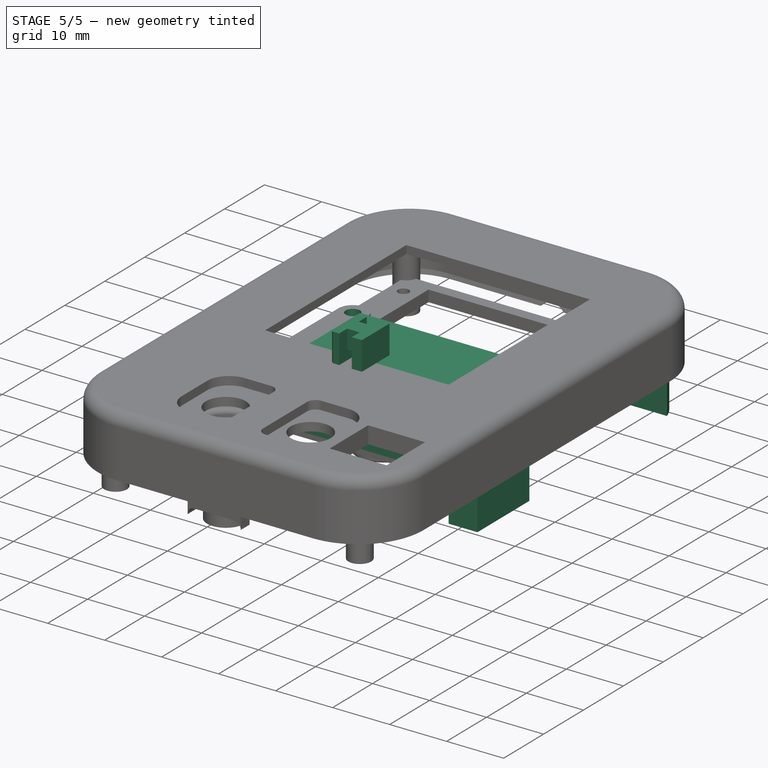
[diagram: stage 5 of 5 — iso view after this stage's code; geometry added in this stage tinted green]
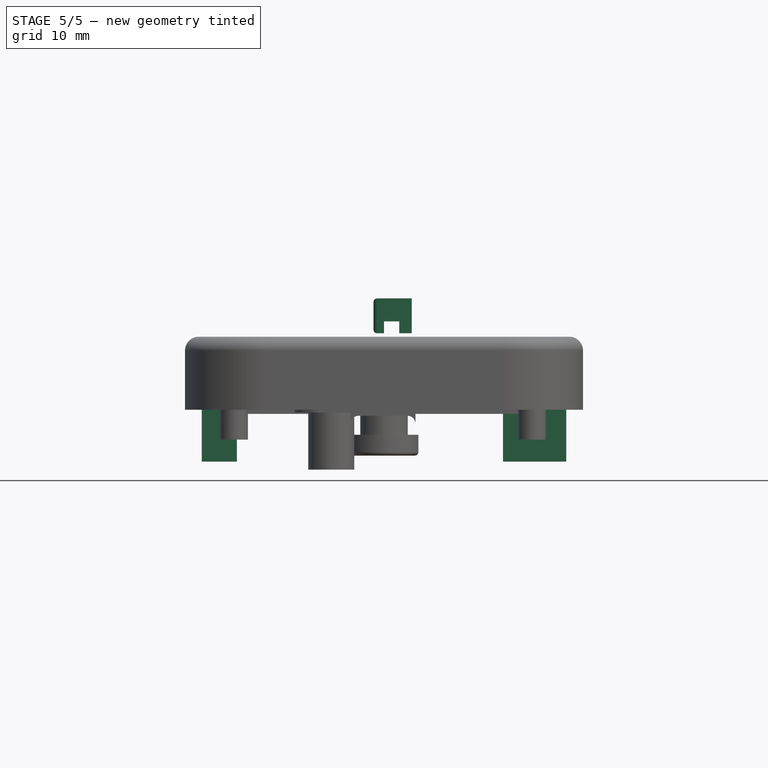
[diagram: stage 5 of 5 — front view after this stage's code; geometry added in this stage tinted green]
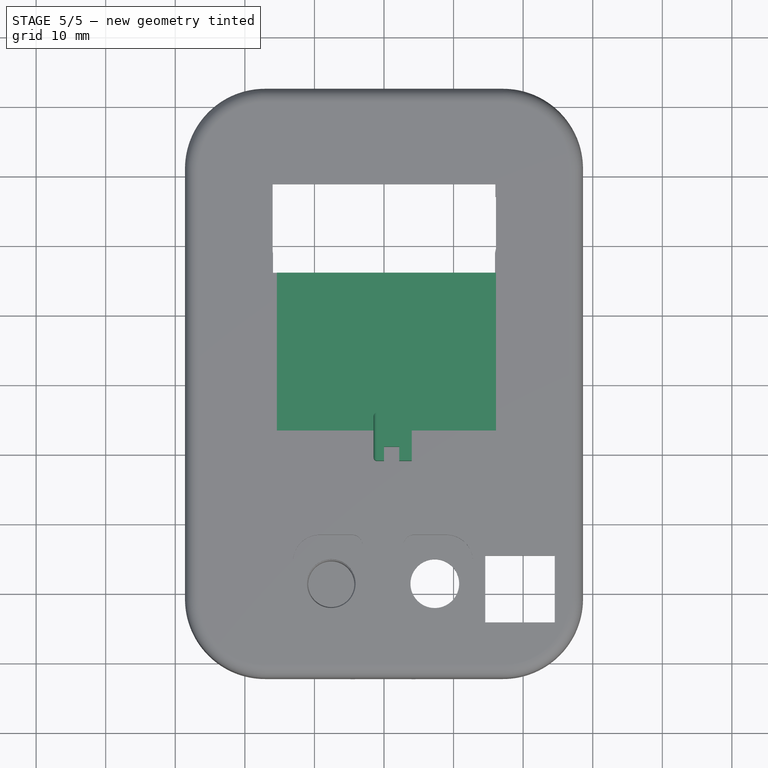
[diagram: stage 5 of 5 — top view after this stage's code; geometry added in this stage tinted green]
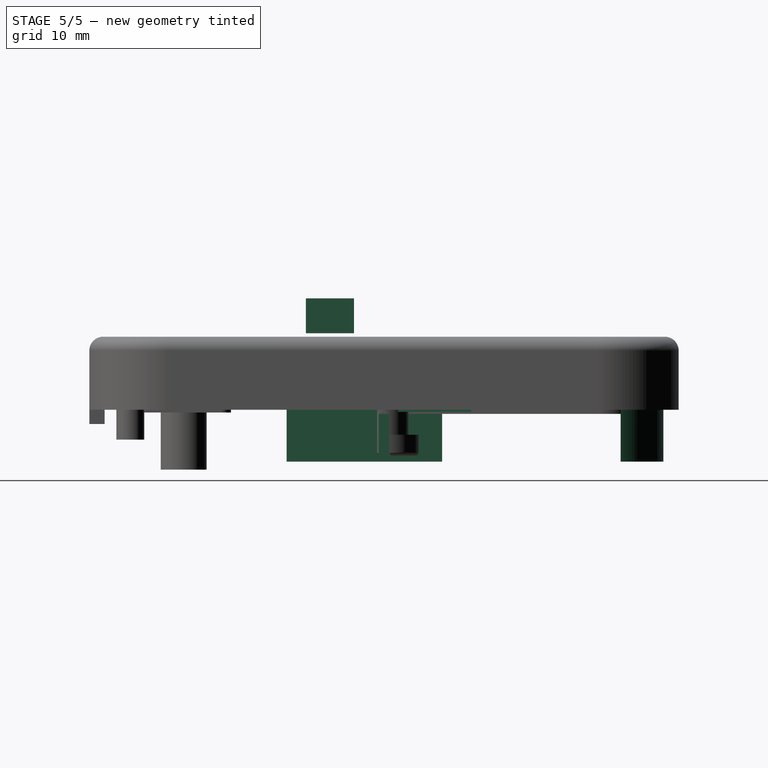
[diagram: stage 5 of 5 — right view after this stage's code; geometry added in this stage tinted green]
FEATURE [Sketcher::SketchObject] Sketch015
  ArcFitTolerance = 1e-06
  AttachmentSupport = -> [XY_Plane004]
  FullyConstrained = true
  MakeInternals = false
  MapMode = 5
  sketch-geometry (4):
    g0: LineSegment StartX=-21 StartY=16 StartZ=0 EndX=-21 EndY=-16 EndZ=0
    g1: LineSegment StartX=-21 StartY=-16 StartZ=0 EndX=21 EndY=-16 EndZ=0
    g2: LineSegment StartX=21 StartY=-16 StartZ=0 EndX=21 EndY=16 EndZ=0
    g3: LineSegment StartX=21 StartY=16 StartZ=0 EndX=-21 EndY=16 EndZ=0
  constraints (11):
    c: Coincident(g0,g1)
    c: Coincident(g1,g2)
    c: Coincident(g2,g3)
    c: Coincident(g3,g0)
    c: Vertical(g0)
    c: Vertical(g2)
    c: Horizontal(g1)
    c: Horizontal(g3)
    c: Distance(g0,g2) = 42
    c: Distance(g1,g3) = 32
    c: Symmetric(g0,g2,g-1)
FEATURE [PartDesign::Pad] Pad003
  Direction = (0,0,1)
  Length = 1.6
  Length2 = 10
  Profile = -> Sketch015
  ReferenceAxis = -> Sketch015 [N_Axis]
  Refine = true
  Suppressed = false
  Type = 0
FEATURE [Sketcher::SketchObject] Sketch016
  ArcFitTolerance = 1e-06
  AttachmentSupport = -> [Pad003]
  ExternalGeometry = -> [Pad003]
  FullyConstrained = true
  MakeInternals = false
  MapMode = 5
  Placement = pos=(0,0,1.6) rot=(0,0,1;0rad)
  sketch-geometry (4):
    g0: LineSegment StartX=-15.4 StartY=16 StartZ=0 EndX=-15.4 EndY=-16 EndZ=0
    g1: LineSegment StartX=-15.4 StartY=-16 StartZ=0 EndX=20.4 EndY=-16 EndZ=0
    g2: LineSegment StartX=20.4 StartY=-16 StartZ=0 EndX=20.4 EndY=16 EndZ=0
    g3: LineSegment StartX=20.4 StartY=16 StartZ=0 EndX=-15.4 EndY=16 EndZ=0
  constraints (12):
    c: Coincident(g0,g1)
    c: Coincident(g1,g2)
    c: Coincident(g2,g3)
    c: Coincident(g3,g0)
    c: Vertical(g0)
    c: Vertical(g2)
    c: Horizontal(g1)
    c: Horizontal(g3)
    c: PointOnObject(g0,g-4)
    c: PointOnObject(g0,g-3)
    c: DistanceX(g3,g3) = 35.8
    c: Distance(g-3,g0) = 5.6
FEATURE [PartDesign::Pad] Pad004
  BaseFeature = -> Pad003
  Direction = (0,0,1)
  Length = 1.75
  Length2 = 10
  Profile = -> Sketch016
  ReferenceAxis = -> Sketch016 [N_Axis]
  Refine = true
  Suppressed = false
  Type = 0
FEATURE [Sketcher::SketchObject] Sketch017
  ArcFitTolerance = 1e-06
  AttachmentSupport = -> [Pad004]
  ExternalGeometry = -> [Pad004]
  FullyConstrained = true
  MakeInternals = false
  MapMode = 5
  Placement = pos=(0,0,1.6) rot=(0,0,1;0rad)
  sketch-geometry (40):
    g0: LineSegment StartX=-21 StartY=16 StartZ=0 EndX=-15.95 EndY=16 EndZ=0
    g1: LineSegment StartX=-15.95 StartY=16 StartZ=0 EndX=-15.95 EndY=18.575 EndZ=0
    g2: LineSegment StartX=-21 StartY=18.575 StartZ=0 EndX=-21 EndY=16 EndZ=0
    g3: Circle CenterX=-18.475 CenterY=18.575 CenterZ=0 NormalX=0 NormalY=0 NormalZ=1 AngleXU=0 Radius=1.25
    g4: GeomPoint [constr] X=-21 Y=18.575 Z=0
    g5: GeomPoint [constr] X=-18.475 Y=16 Z=0
    g6: ArcOfCircle CenterX=-18.475 CenterY=18.575 CenterZ=0 NormalX=0 NormalY=0 NormalZ=1 AngleXU=0 Radius=2.525 StartAngle=1.5708 EndAngle=3.14159
    g7: GeomPoint [constr] X=-21 Y=21.15 Z=0
    g8: ArcOfCircle CenterX=-18.475 CenterY=18.575 CenterZ=0 NormalX=0 NormalY=0 NormalZ=1 AngleXU=0 Radius=2.525 StartAngle=5e-16 EndAngle=1.5708
    g9: GeomPoint [constr] X=-15.95 Y=21.15 Z=0
    g10: LineSegment StartX=15.95 StartY=16 StartZ=0 EndX=21 EndY=16 EndZ=0
    g11: LineSegment StartX=21 StartY=16 StartZ=0 EndX=21 EndY=18.575 EndZ=0
    g12: LineSegment StartX=15.95 StartY=18.575 StartZ=0 EndX=15.95 EndY=16 EndZ=0
    g13: Circle CenterX=18.475 CenterY=18.575 CenterZ=0 NormalX=0 NormalY=0 NormalZ=1 AngleXU=0 Radius=1.25
    g14: GeomPoint [constr] X=15.95 Y=18.575 Z=0
    g15: GeomPoint [constr] X=18.475 Y=16 Z=0
    g16: ArcOfCircle CenterX=18.475 CenterY=18.575 CenterZ=0 NormalX=0 NormalY=0 NormalZ=1 AngleXU=0 Radius=2.525 StartAngle=1.5708 EndAngle=3.14159
    g17: GeomPoint [constr] X=15.95 Y=21.15 Z=0
    g18: ArcOfCircle CenterX=18.475 CenterY=18.575 CenterZ=0 NormalX=0 NormalY=0 NormalZ=1 AngleXU=0 Radius=2.525 StartAngle=-9e-16 EndAngle=1.5708
    g19: GeomPoint [constr] X=21 Y=21.15 Z=0
    g20: LineSegment StartX=-21 StartY=-16 StartZ=0 EndX=-15.95 EndY=-16 EndZ=0
    g21: LineSegment StartX=-15.95 StartY=-16 StartZ=0 EndX=-15.95 EndY=-18.575 EndZ=0
    g22: LineSegment StartX=-21 StartY=-18.575 StartZ=0 EndX=-21 EndY=-16 EndZ=0
    g23: Circle CenterX=-18.475 CenterY=-18.575 CenterZ=0 NormalX=0 NormalY=0 NormalZ=1 AngleXU=0 Radius=1.25
    g24: GeomPoint [constr] X=-21 Y=-18.575 Z=0
    g25: GeomPoint [constr] X=-18.475 Y=-16 Z=0
    g26: ArcOfCircle CenterX=-18.475 CenterY=-18.575 CenterZ=0 NormalX=0 NormalY=0 NormalZ=1 AngleXU=0 Radius=2.525 StartAngle=3.14159 EndAngle=4.71239
    g27: GeomPoint [constr] X=-21 Y=-21.15 Z=0
    g28: ArcOfCircle CenterX=-18.475 CenterY=-18.575 CenterZ=0 NormalX=0 NormalY=0 NormalZ=1 AngleXU=0 Radius=2.525 StartAngle=4.71239 EndAngle=6.28319
    g29: GeomPoint [constr] X=-15.95 Y=-21.15 Z=0
    g30: LineSegment StartX=15.95 StartY=-16 StartZ=0 EndX=21 EndY=-16 EndZ=0
    g31: LineSegment StartX=21 StartY=-16 StartZ=0 EndX=21 EndY=-18.575 EndZ=0
    g32: LineSegment StartX=15.95 StartY=-18.575 StartZ=0 EndX=15.95 EndY=-16 EndZ=0
    g33: Circle CenterX=18.475 CenterY=-18.575 CenterZ=0 NormalX=0 NormalY=0 NormalZ=1 AngleXU=0 Radius=1.25
    g34: GeomPoint [constr] X=15.95 Y=-18.575 Z=0
    g35: GeomPoint [constr] X=18.475 Y=-16 Z=0
    g36: ArcOfCircle CenterX=18.475 CenterY=-18.575 CenterZ=0 NormalX=0 NormalY=0 NormalZ=1 AngleXU=0 Radius=2.525 StartAngle=3.14159 EndAngle=4.71239
    g37: GeomPoint [constr] X=15.95 Y=-21.15 Z=0
    g38: ArcOfCircle CenterX=18.475 CenterY=-18.575 CenterZ=0 NormalX=0 NormalY=0 NormalZ=1 AngleXU=0 Radius=2.525 StartAngle=4.71239 EndAngle=6.28319
    g39: GeomPoint [constr] X=21 Y=-21.15 Z=0
  constraints (86):
    c: Coincident(g0,g1)
    c: Coincident(g2,g0)
    c: Vertical(g1)
    c: Vertical(g2)
    c: Coincident(g0,g-4)
    c: DistanceY(g2,g7) = 5.15
    c: Horizontal(g0)
    c: DistanceX(g7,g9) = 5.05
    c: Diameter(g3) = 2.5
    c: Symmetric(g7,g2,g4)
    c: Horizontal(g3,g4)
    c: Symmetric(g0,g0,g5)
    c: Vertical(g3,g5)
    c: PointOnObject(g7,g2)
    c: Tangent(g2,g6) = -1.5708
    c: PointOnObject(g9,g1)
    c: Tangent(g1,g8) = -1.5708
    c: Coincident(g6,g3)
    c: Coincident(g8,g3)
    c: Vertical(g8,g3)
    c: Vertical(g3,g6)
    c: DistanceY(g0,g9) = 5.15
    c: Coincident(g10,g11)
    c: Coincident(g12,g10)
    c: Vertical(g11)
    c: Vertical(g12)
    c: DistanceY(g12,g17) = 5.15
    c: Horizontal(g10)
    c: DistanceX(g17,g19) = 5.05
    c: Diameter(g13) = 2.5
    c: Symmetric(g17,g12,g14)
    c: Horizontal(g13,g14)
    c: Symmetric(g10,g10,g15)
    c: Vertical(g13,g15)
    c: PointOnObject(g17,g12)
    c: Tangent(g12,g16) = -1.5708
    c: PointOnObject(g19,g11)
    c: Tangent(g11,g18) = -1.5708
    c: Coincident(g16,g13)
    c: Coincident(g18,g13)
    c: Vertical(g18,g13)
    c: Vertical(g13,g16)
    c: DistanceY(g10,g19) = 5.15
    c: Coincident(g10,g-5)
    c: Coincident(g20,g21)
    c: Coincident(g22,g20)
    c: Vertical(g21)
    c: Vertical(g22)
    c: Horizontal(g20)
    c: Diameter(g23) = 2.5
    c: Symmetric(g27,g22,g24)
    c: Symmetric(g20,g20,g25)
    c: Tangent(g22,g26) = 1.5708
    c: PointOnObject(g29,g21)
    c: Tangent(g21,g28) = 1.5708
    c: Coincident(g26,g23)
    c: Coincident(g28,g23)
    c: Coincident(g30,g31)
    c: Coincident(g32,g30)
    c: Vertical(g31)
    c: Vertical(g32)
    c: Horizontal(g30)
    c: Diameter(g33) = 2.5
    c: Symmetric(g37,g32,g34)
    c: Symmetric(g30,g30,g35)
    c: Tangent(g32,g36) = 1.5708
    c: PointOnObject(g39,g31)
    c: Tangent(g31,g38) = 1.5708
    c: Coincident(g36,g33)
    c: Coincident(g38,g33)
    c: Coincident(g30,g-5)
    c: DistanceY(g37,g30) = 5.15
    c: DistanceY(g39,g30) = 5.15
    c: DistanceX(g37,g39) = 5.05
    c: Coincident(g32,g34)
    c: Vertical(g38,g35)
    c: Vertical(g38,g35)
    c: Vertical(g36,g35)
    c: Coincident(g20,g-4)
    c: Vertical(g25,g5)
    c: Vertical(g23,g25)
    c: Vertical(g26,g23)
    c: Coincident(g22,g24)
    c: DistanceY(g27,g20) = 5.15
    c: DistanceY(g29,g20) = 5.15
    c: Vertical(g28,g25)
FEATURE [PartDesign::Pad] Pad005
  BaseFeature = -> Pad004
  Direction = (0,0,1)
  Length = 1.6
  Length2 = 10
  Profile = -> Sketch017
  ReferenceAxis = -> Sketch017 [N_Axis]
  Refine = true
  Reversed = true
  Suppressed = false
  Type = 0
FEATURE [Sketcher::SketchObject] Sketch018
  ArcFitTolerance = 1e-06
  AttachmentSupport = -> [Pad005]
  ExternalGeometry = -> [Pad005]
  FullyConstrained = true
  MakeInternals = false
  MapMode = 5
  Placement = pos=(0,0,0) rot=(1,0,0;3.14159rad)
  sketch-geometry (8):
    g0: LineSegment StartX=-13 StartY=-15 StartZ=0 EndX=0 EndY=-15 EndZ=0
    g1: LineSegment StartX=0 StartY=-15 StartZ=0 EndX=0 EndY=-10 EndZ=0
    g2: LineSegment StartX=0 StartY=-10 StartZ=0 EndX=-13 EndY=-10 EndZ=0
    g3: LineSegment StartX=-13 StartY=-10 StartZ=0 EndX=-13 EndY=-15 EndZ=0
    g4: LineSegment StartX=19 StartY=-14 StartZ=0 EndX=19 EndY=-2 EndZ=0
    g5: LineSegment StartX=19 StartY=-2 StartZ=0 EndX=4 EndY=-2 EndZ=0
    g6: LineSegment StartX=4 StartY=-2 StartZ=0 EndX=4 EndY=-14 EndZ=0
    g7: LineSegment StartX=4 StartY=-14 StartZ=0 EndX=19 EndY=-14 EndZ=0
  constraints (24):
    c: Coincident(g0,g1)
    c: Coincident(g1,g2)
    c: Coincident(g2,g3)
    c: Coincident(g3,g0)
    c: Horizontal(g0)
    c: Horizontal(g2)
    c: Vertical(g1)
    c: Vertical(g3)
    c: PointOnObject(g1,g-2)
    c: DistanceX(g2,g2) = 13
    c: DistanceY(g3,g3) = 5
    c: Coincident(g4,g5)
    c: Coincident(g5,g6)
    c: Coincident(g6,g7)
    c: Coincident(g7,g4)
    c: Vertical(g4)
    c: Vertical(g6)
    c: Horizontal(g5)
    c: Horizontal(g7)
    c: Distance(g-5,g4) = 2
    c: Distance(g-4,g7) = 2
    c: DistanceX(g5,g5) = 15
    c: DistanceY(g6,g6) = 12
    c: Distance(g-4,g0) = 1
FEATURE [PartDesign::Pad] Pad006
  BaseFeature = -> Pad005
  Direction = (0,0,-1)
  Length = 1.7
  Length2 = 10
  Profile = -> Sketch018
  ReferenceAxis = -> Sketch018 [N_Axis]
  Refine = true
  Suppressed = false
  Type = 0
FEATURE [Sketcher::SketchObject] Sketch081
  ArcFitTolerance = 1e-06
  AttachmentSupport = -> [Pocket035]
  ExternalGeometry = -> [Pocket035,Binder005,Binder004,Binder008]
  FullyConstrained = true
  MakeInternals = false
  MapMode = 5
  sketch-geometry (12):
    g0: LineSegment StartX=26.2 StartY=-14 StartZ=0 EndX=26.2 EndY=-1 EndZ=0
    g1: LineSegment StartX=-26.2 StartY=8.35 StartZ=0 EndX=-26.2 EndY=-2.65 EndZ=0
    g2: LineSegment StartX=-26.2 StartY=-2.65 StartZ=0 EndX=-21.15 EndY=-2.65 EndZ=0
    g3: LineSegment StartX=-21.15 StartY=-2.65 StartZ=0 EndX=-21.15 EndY=8.35 EndZ=0
    g4: LineSegment StartX=-21.15 StartY=8.35 StartZ=0 EndX=-26.2 EndY=8.35 EndZ=0
    g5: ArcOfCircle CenterX=17.1 CenterY=30.85 CenterZ=0 NormalX=0 NormalY=0 NormalZ=1 AngleXU=0 Radius=9.3 StartAngle=0.345545 EndAngle=1.5708
    g6: LineSegment StartX=17.1 StartY=36 StartZ=0 EndX=17.1 EndY=40.15 EndZ=0
    g7: LineSegment StartX=17.1 StartY=36 StartZ=0 EndX=17.1 EndY=34 EndZ=0
    g8: LineSegment StartX=17.1 StartY=34 StartZ=0 EndX=25.8503 EndY=34 EndZ=0
    g9: LineSegment StartX=26.2 StartY=-1 StartZ=0 EndX=21.15 EndY=-1 EndZ=0
    g10: LineSegment StartX=21.15 StartY=-1 StartZ=0 EndX=21.15 EndY=-14 EndZ=0
    g11: LineSegment StartX=21.15 StartY=-14 StartZ=0 EndX=26.2 EndY=-14 EndZ=0
  constraints (33):
    c: Vertical(g0)
    c: DistanceY(g0,g0) = 13
    c: Coincident(g1,g2)
    c: Coincident(g2,g3)
    c: Coincident(g3,g4)
    c: Coincident(g4,g1)
    c: Vertical(g1)
    c: Vertical(g3)
    c: Horizontal(g2)
    c: Horizontal(g4)
    c: PointOnObject(g2,g-3)
    c: DistanceY(g3,g3) = 11
    c: Distance(g-4,g4) = 0.2
    c: PointOnObject(g6,g-5)
    c: Vertical(g6)
    c: Coincident(g7,g6)
    c: Vertical(g7)
    c: Coincident(g8,g7)
    c: Coincident(g5,g6)
    c: Coincident(g8,g5)
    c: Coincident(g-8,g5)
    c: DistanceX(g4,g4) = 5.05
    c: Coincident(g9,g0)
    c: Horizontal(g9)
    c: Coincident(g10,g9)
    c: Vertical(g10)
    c: Coincident(g11,g10)
    c: Coincident(g11,g0)
    c: Distance(g-9,g0) = 0.2
    c: Tangent(g-10,g10)
    c: Tangent(g-11,g11)
    c: Tangent(g8,g-12)
    c: Coincident(g5,g-8)
FEATURE [PartDesign::Pad] Pad041
  BaseFeature = -> Pocket035
  Direction = (0,0,1)
  Length = 8.85
  Length2 = 10
  Profile = -> Sketch081
  ReferenceAxis = -> Sketch081 [N_Axis]
  Refine = true
  Reversed = true
  Suppressed = false
  Type = 0
FEATURE [Sketcher::SketchObject] Sketch082
  ArcFitTolerance = 1e-06
  AttachmentSupport = -> [Pad041]
  ExternalGeometry = -> [Binder005]
  FullyConstrained = true
  MakeInternals = false
  MapMode = 5
  sketch-geometry (4):
    g0: Circle CenterX=21.2918 CenterY=36.3918 CenterZ=0 NormalX=0 NormalY=0 NormalZ=1 AngleXU=0 Radius=0.9
    g1: LineSegment [constr] StartX=20.953 StartY=37.8894 StartZ=0 EndX=20.953 EndY=35.5306 EndZ=0
    g2: LineSegment [constr] StartX=22.7894 StartY=36.0531 StartZ=0 EndX=20.4306 EndY=36.0531 EndZ=0
    g3: LineSegment [constr] StartX=21.61 StartY=36.71 StartZ=0 EndX=20.953 EndY=36.0531 EndZ=0
  constraints (12):
    c: Coincident(g1,g-3)
    c: PointOnObject(g1,g-3)
    c: Vertical(g1)
    c: Coincident(g2,g-4)
    c: PointOnObject(g2,g-3)
    c: Horizontal(g2)
    c: Coincident(g3,g-4)
    c: PointOnObject(g3,g2)
    c: PointOnObject(g3,g1)
    c: PointOnObject(g0,g3)
    c: Diameter(g0) = 1.8
    c: Tangent(g0,g-3)
FEATURE [PartDesign::Hole] Hole
  BaseFeature = -> Pad041
  CustomThreadClearance = 0
  Depth = 25
  DepthType = 0
  Diameter = 1.8
  DrillForDepth = false
  DrillPoint = 1
  DrillPointAngle = 118
  HoleCutCountersinkAngle = 90
  HoleCutCustomValues = false
  HoleCutDepth = 0
  HoleCutDiameter = 2
  HoleCutType = 0
  ModelThread = false
  Profile = -> Sketch082
  Refine = true
  Suppressed = false
  Tapered = false
  TaperedAngle = 90
  ThreadClass = 0
  ThreadDepth = 25
  ThreadDepthType = 0
  ThreadDirection = 0
  ThreadFit = 0
  ThreadSize = 0
  ThreadType = 0
  Threaded = false
  UseCustomThreadClearance = false
FEATURE [PartDesign::SubShapeBinder] Binder009  label="ev15-binder003"
  BindCopyOnChange = 0
  BindMode = 0
  ClaimChildren = false
  Context = -> Body012 [Binder009.]
  Fuse = false
  MakeFace = true
  OffsetFill = false
  OffsetIntersection = false
  OffsetJoinType = 0
  OffsetOpenResult = false
  PartialLoad = false
  Refine = true
  Relative = true
  Support = -> [ev15_1]
  _Version = 2
FEATURE [PartDesign::SubShapeBinder] Binder010  label="bottom-binder001"
  BindCopyOnChange = 0
  BindMode = 0
  ClaimChildren = false
  Context = -> Body012 [Binder010.]
  Fuse = false
  MakeFace = true
  OffsetFill = false
  OffsetIntersection = false
  OffsetJoinType = 0
  OffsetOpenResult = false
  PartialLoad = false
  Refine = true
  Relative = true
  Support = -> [Body007]
  _Version = 2
FEATURE [Sketcher::SketchObject] Sketch083
  ArcFitTolerance = 1e-06
  AttachmentSupport = -> [YZ_Plane016]
  FullyConstrained = true
  MakeInternals = false
  MapMode = 5
  Placement = pos=(0,0,0) rot=(0.57735,0.57735,0.57735;2.0944rad)
  sketch-geometry (4):
    g0: LineSegment StartX=-6.32 StartY=14.6 StartZ=0 EndX=-9.22 EndY=14.6 EndZ=0
    g1: LineSegment StartX=-9.22 StartY=14.6 StartZ=0 EndX=-9.22 EndY=11.295 EndZ=0
    g2: LineSegment StartX=-9.22 StartY=11.295 StartZ=0 EndX=-6.32 EndY=11.295 EndZ=0
    g3: LineSegment StartX=-6.32 StartY=11.295 StartZ=0 EndX=-6.32 EndY=14.6 EndZ=0
  constraints (12):
    c: Coincident(g0,g1)
    c: Coincident(g1,g2)
    c: Coincident(g2,g3)
    c: Coincident(g3,g0)
    c: Horizontal(g0)
    c: Horizontal(g2)
    c: Vertical(g1)
    c: Vertical(g3)
    c: Distance(g-4,g1) = 0.1
    c: Horizontal(g0,g-4)
    c: Distance(g-3,g3) = 0.1
    c: Horizontal(g1,g-4)
FEATURE [PartDesign::Pad] Pad042
  Direction = (1,0,0)
  Length = 2.2
  Length2 = 10
  Placement = pos=(0,0,0) rot=(1,1,1;2.0944rad)
  Profile = -> Sketch083
  ReferenceAxis = -> Sketch083 [N_Axis]
  Refine = true
  Suppressed = false
  Type = 0
  expr: Length = <<vars>>.thickness
FEATURE [Sketcher::SketchObject] Sketch084
  ArcFitTolerance = 1e-06
  AttachmentSupport = -> [Pad042]
  ExternalGeometry = -> [Pad042,Binder009]
  FullyConstrained = true
  MakeInternals = false
  MapMode = 5
  Placement = pos=(2.2,-5e-16,2e-16) rot=(0.57735,0.57735,0.57735;2.0944rad)
  expr: Constraints[10] = <<vars>>.side_button_paddle_length
  expr: Constraints[11] = <<vars>>.side_button_paddle_width
  sketch-geometry (9):
    g0: LineSegment StartX=-11.22 StartY=14.6 StartZ=0 EndX=-11.22 EndY=9.59 EndZ=0
    g1: LineSegment StartX=-11.22 StartY=9.59 StartZ=0 EndX=-4.32 EndY=9.59 EndZ=0
    g2: LineSegment StartX=-4.32 StartY=9.59 StartZ=0 EndX=-4.32 EndY=14.6 EndZ=0
    g3: LineSegment StartX=-4.32 StartY=14.6 StartZ=0 EndX=-11.22 EndY=14.6 EndZ=0
    g4: LineSegment [constr] StartX=-4.32 StartY=14.6 StartZ=0 EndX=-11.22 EndY=9.59 EndZ=0
    g5: LineSegment [constr] StartX=-4.32 StartY=9.59 StartZ=0 EndX=-11.22 EndY=14.6 EndZ=0
    g6: LineSegment [constr] StartX=-7.77 StartY=14.6 StartZ=0 EndX=-7.77 EndY=9.59 EndZ=0
    g7: GeomPoint [constr] X=-7.77 Y=12.095 Z=0
    g8: LineSegment [constr] StartX=-4.32 StartY=12.095 StartZ=0 EndX=-11.22 EndY=12.095 EndZ=0
  constraints (22):
    c: Coincident(g0,g1)
    c: Coincident(g1,g2)
    c: Coincident(g2,g3)
    c: Coincident(g3,g0)
    c: Vertical(g0)
    c: Vertical(g2)
    c: Horizontal(g1)
    c: Horizontal(g3)
    c: PointOnObject(g-3,g3)
    c: Distance(g-4,g2) = 2
    c: DistanceY(g2,g2) = 5.01
    c: DistanceX(g1,g1) = 6.9
    c: Coincident(g4,g2)
    c: Coincident(g4,g0)
    c: Coincident(g5,g1)
    c: Coincident(g5,g0)
    c: Symmetric(g3,g3,g6)
    c: Symmetric(g1,g1,g6)
    c: PointOnObject(g7,g4)
    c: PointOnObject(g7,g5)
    c: Symmetric(g2,g2,g8)
    c: Symmetric(g0,g0,g8)
FEATURE [PartDesign::Pad] Pad043  label="side-button-paddle"
  BaseFeature = -> Pad042
  Direction = (1,0,0)
  Length = 1.78
  Length2 = 10
  Placement = pos=(0,0,0) rot=(1,1,1;2.0944rad)
  Profile = -> Sketch084
  ReferenceAxis = -> Sketch084 [N_Axis]
  Refine = true
  Suppressed = false
  Type = 0
  expr: Length = 0.6 mm + <<vars>>.side_button_slack
FEATURE [Sketcher::SketchObject] Sketch085
  ArcFitTolerance = 1e-06
  AttachmentSupport = -> [Pad043]
  ExternalGeometry = -> [Pad043]
  FullyConstrained = true
  MakeInternals = false
  MapMode = 5
  Placement = pos=(-2.3e-15,0,0) rot=(0.57735,0.57735,-0.57735;4.18879rad)
  sketch-geometry (4):
    g0: LineSegment StartX=-11.22 StartY=-9.59 StartZ=0 EndX=-11.22 EndY=-14.6 EndZ=0
    g1: LineSegment StartX=-11.22 StartY=-14.6 StartZ=0 EndX=-4.32 EndY=-14.6 EndZ=0
    g2: LineSegment StartX=-4.32 StartY=-14.6 StartZ=0 EndX=-4.32 EndY=-9.59 EndZ=0
    g3: LineSegment StartX=-4.32 StartY=-9.59 StartZ=0 EndX=-11.22 EndY=-9.59 EndZ=0
  constraints (10):
    c: Coincident(g0,g1)
    c: Coincident(g1,g2)
    c: Coincident(g2,g3)
    c: Coincident(g3,g0)
    c: Vertical(g0)
    c: Vertical(g2)
    c: Horizontal(g1)
    c: Horizontal(g3)
    c: Coincident(g0,g-3)
    c: Coincident(g1,g-4)
FEATURE [PartDesign::Pad] Pad044
  BaseFeature = -> Pad043
  Direction = (-1,0,0)
  Length = 1.5
  Length2 = 10
  Placement = pos=(0,0,0) rot=(1,1,1;2.0944rad)
  Profile = -> Sketch085
  ReferenceAxis = -> Sketch085 [N_Axis]
  Refine = true
  Suppressed = false
  Type = 0
FEATURE [PartDesign::Fillet] Fillet006
  Base = -> Pad044 [Face13]
  BaseFeature = -> Pad044
  Placement = pos=(0,0,0) rot=(1,1,1;2.0944rad)
  Radius = 0.5
  Refine = true
  SupportTransform = false
  Suppressed = false
  UseAllEdges = false
FEATURE [PartDesign::Body] Body012  label="side-button"
  AllowCompound = false
  Group = -> [Binder009,Binder010,Sketch083,Pad042,Sketch084,Pad043,Sketch085,Pad044,Fillet006]
  Origin = -> Origin016
  Placement = pos=(-29.6,0,0) rot=(0,0,1;0rad)
  Tip = -> Fillet006
  expr: .Placement.Base.x = -<<vars>>.width / 2 - 1 mm
FEATURE [Sketcher::SketchObject] Sketch086
  ArcFitTolerance = 1e-06
  AttachmentSupport = -> [Hole]
  ExternalGeometry = -> [Hole]
  FullyConstrained = true
  MakeInternals = false
  MapMode = 5
  Placement = pos=(0,0,-2) rot=(1,0,0;3.14159rad)
  sketch-geometry (4):
    g0: LineSegment StartX=16 StartY=-12.525 StartZ=0 EndX=24.625 EndY=-12.525 EndZ=0
    g1: LineSegment StartX=16 StartY=-12.525 StartZ=0 EndX=16 EndY=0.975 EndZ=0
    g2: LineSegment StartX=16 StartY=0.975 StartZ=0 EndX=24.625 EndY=0.975 EndZ=0
    g3: LineSegment StartX=24.625 StartY=0.975 StartZ=0 EndX=24.625 EndY=-12.525 EndZ=0
  constraints (12):
    c: Horizontal(g0)
    c: Distance(g-3,g0) = 20
    c: PointOnObject(g0,g-5)
    c: Distance(g1) = 13.5
    c: Coincident(g1,g0)
    c: PointOnObject(g1,g-4)
    c: Vertical(g1)
    c: Coincident(g2,g1)
    c: Horizontal(g2)
    c: PointOnObject(g2,g-5)
    c: Coincident(g3,g2)
    c: Coincident(g3,g0)
FEATURE [PartDesign::Pocket] Pocket036
  BaseFeature = -> Hole
  Direction = (0,0,1)
  Length = 1
  Length2 = 5
  Profile = -> Sketch086
  ReferenceAxis = -> Sketch086 [N_Axis]
  Refine = true
  Suppressed = false
  Type = 0
FEATURE [PartDesign::Pocket] Pocket024  label="dev-pocket"
  BaseFeature = -> Pocket043
  Direction = (-1,0,0)
  Length = 11.5
  Length2 = 5
  Profile = -> Sketch052
  ReferenceAxis = -> Sketch052 [N_Axis]
  Refine = true
  Suppressed = false
  Type = 0
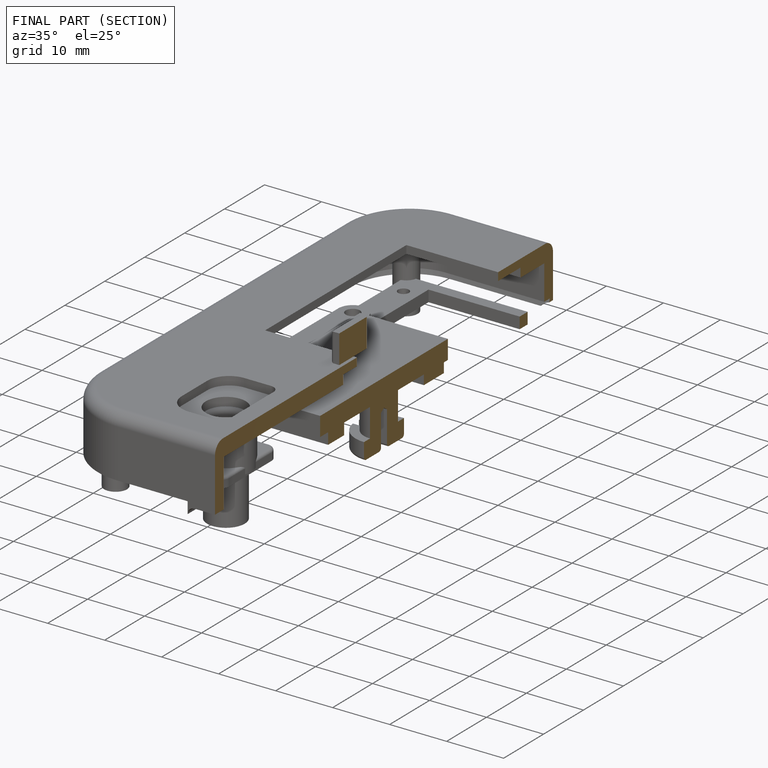
[diagram: finished part — half-section view (interior)]
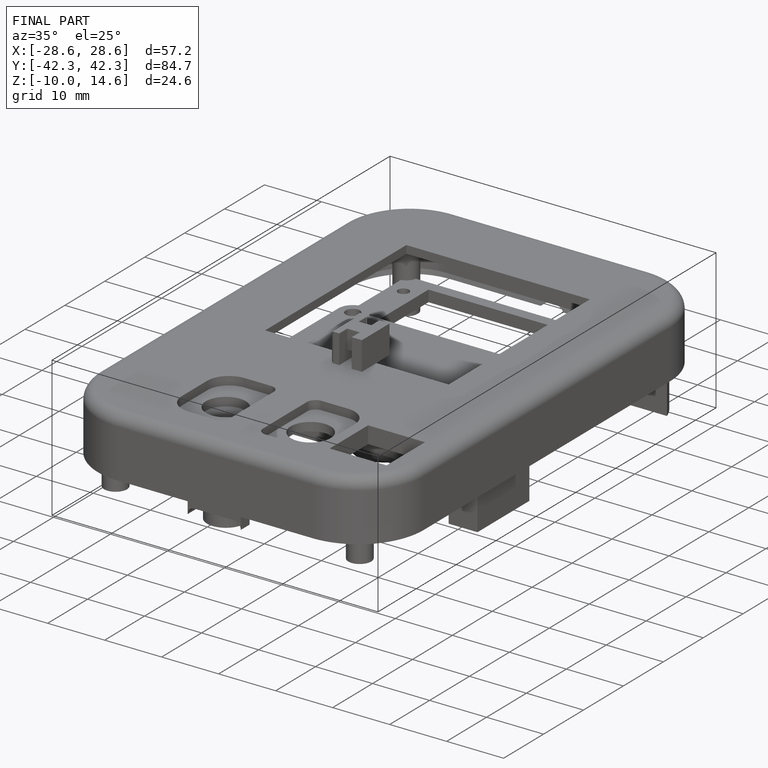
[diagram: finished part — iso view with bounding-box wireframe]
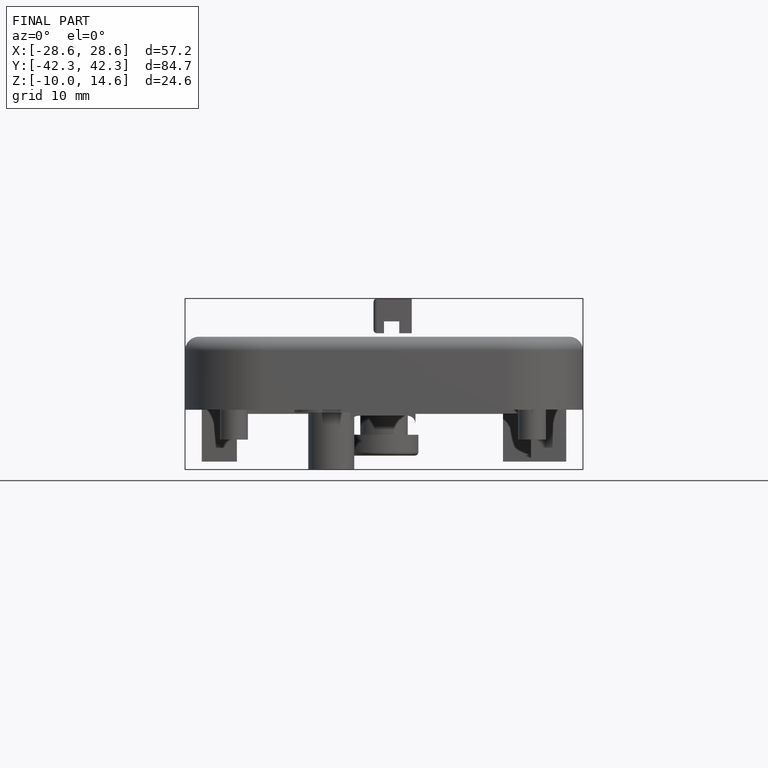
[diagram: finished part — front view with bounding-box wireframe]
